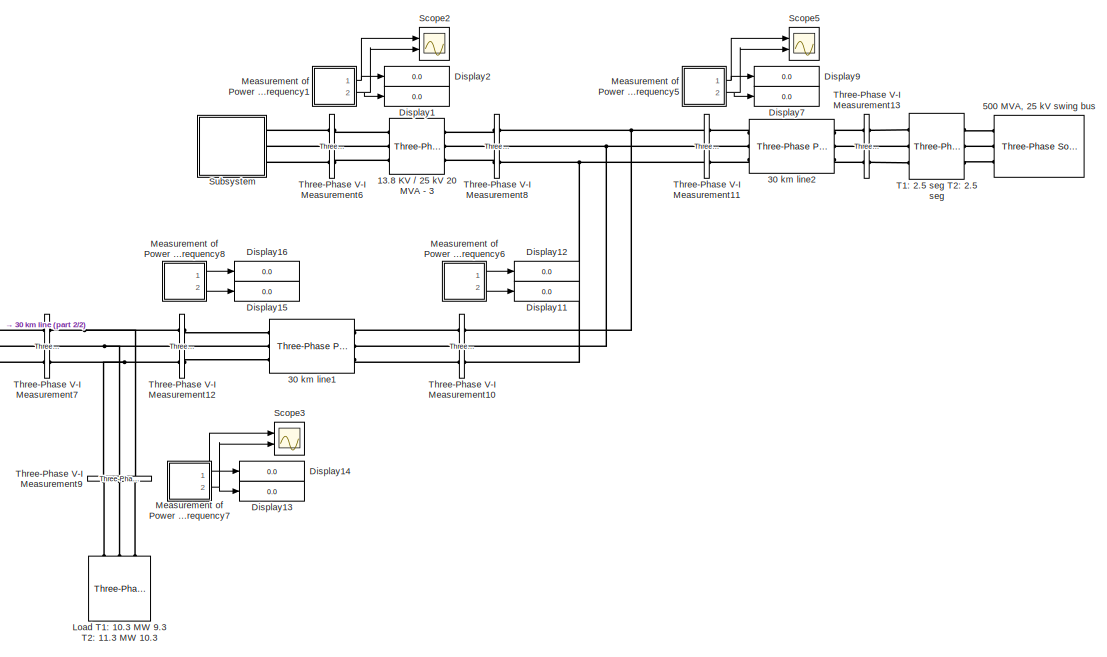
[diagram: root canvas - part 1/2, right side, full height]
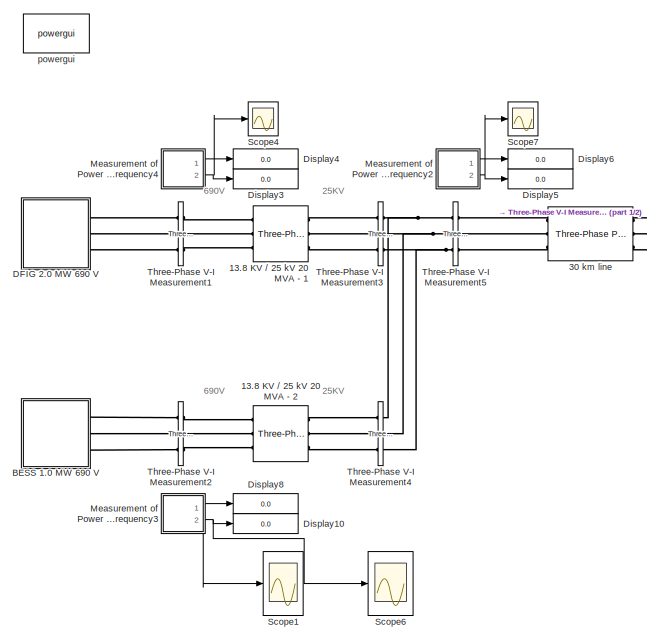
[diagram: root canvas - part 2/2, left side, full height]
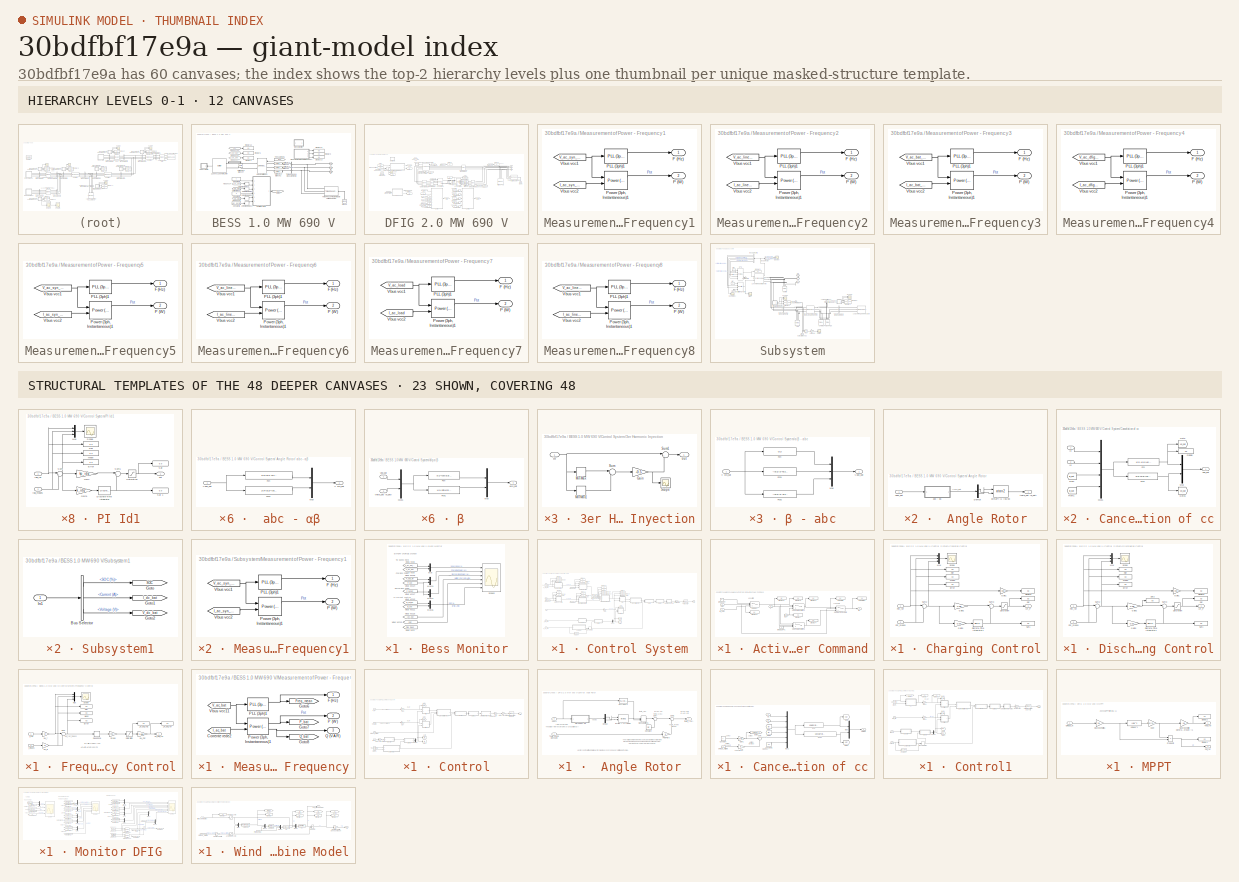
[diagram: thumbnail index - top-2 hierarchy levels (12 canvases) + 23 structural-template representatives of the remaining 48 canvases]
MODEL slx_30bdfbf17e9a
KIND model
CONFIG AbsTol = auto
CONFIG EnableMultiTasking = on
CONFIG FixedStep = auto
CONFIG MaxStep = auto
CONFIG MinStep = auto
CONFIG RelTol = 1e-3
CONFIG SampleTimeConstraint = Unconstrained
CONFIG Solver = ode45
CONFIG SolverName = ode45
CONFIG StartTime = 0.0
CONFIG StopTime = 4
BLOCK [Reference] 13.8 KV // 25 kV 20 MVA - 1  REF=powerlib/Elements/Three-Phase
Transformer
(Two Windings)
  AttributesFormatString = \n
  Ports = [0, 0, 0, 0, 0, 3, 3]
  SourceBlock = powerlib/Elements/Three-Phase\nTransformer\n(Two Windings)
  SourceProductBaseCode = PS
  SourceProductName = Simscape Power Systems
  SourceType = Three-Phase Transformer (Two Windings)
BLOCK [Reference] 13.8 KV // 25 kV 20 MVA - 2  REF=powerlib/Elements/Three-Phase
Transformer
(Two Windings)
  AttributesFormatString = \n
  Ports = [0, 0, 0, 0, 0, 3, 3]
  SourceBlock = powerlib/Elements/Three-Phase\nTransformer\n(Two Windings)
  SourceProductBaseCode = PS
  SourceProductName = Simscape Power Systems
  SourceType = Three-Phase Transformer (Two Windings)
BLOCK [Reference] 13.8 KV // 25 kV 20 MVA - 3  REF=powerlib/Elements/Three-Phase
Transformer
(Two Windings)
  AttributesFormatString = \n
  Ports = [0, 0, 0, 0, 0, 3, 3]
  SourceBlock = powerlib/Elements/Three-Phase\nTransformer\n(Two Windings)
  SourceProductBaseCode = PS
  SourceProductName = Simscape Power Systems
  SourceType = Three-Phase Transformer (Two Windings)
BLOCK [Reference] 30 km line  REF=powerlib/Elements/Three-Phase
PI Section Line
  AttributesFormatString = \n
  Ports = [0, 0, 0, 0, 0, 3, 3]
  SourceBlock = powerlib/Elements/Three-Phase\nPI Section Line
  SourceProductBaseCode = PS
  SourceProductName = Simscape Power Systems
  SourceType = Three-Phase PI Section Line
BLOCK [Reference] 30 km line1  REF=powerlib/Elements/Three-Phase
PI Section Line
  AttributesFormatString = \n
  Ports = [0, 0, 0, 0, 0, 3, 3]
  SourceBlock = powerlib/Elements/Three-Phase\nPI Section Line
  SourceProductBaseCode = PS
  SourceProductName = Simscape Power Systems
  SourceType = Three-Phase PI Section Line
BLOCK [Reference] 30 km line2  REF=powerlib/Elements/Three-Phase
PI Section Line
  AttributesFormatString = \n
  Ports = [0, 0, 0, 0, 0, 3, 3]
  SourceBlock = powerlib/Elements/Three-Phase\nPI Section Line
  SourceProductBaseCode = PS
  SourceProductName = Simscape Power Systems
  SourceType = Three-Phase PI Section Line
BLOCK [Reference] 500 MVA, 25 kV swing bus  REF=powerlib/Electrical
Sources/Three-Phase Source
  Ports = [0, 0, 0, 0, 0, 0, 3]
  SourceBlock = powerlib/Electrical\nSources/Three-Phase Source
  SourceProductBaseCode = PS
  SourceProductName = Simscape Power Systems
  SourceType = Three-Phase Source
BLOCK [SubSystem] BESS 1.0 MW 690 V
  Ports = [0, 0, 0, 0, 0, 0, 3]
  RequestExecContextInheritance = off
  Variant = off
BLOCK [Reference] BESS 1.0 MW 690 V/1200 Vcc 250KWh 1 MW   REF=electricdrivelib/Extra Sources/Battery
  Ports = [0, 1, 0, 0, 0, 2]
  SourceBlock = electricdrivelib/Extra Sources/Battery
  SourceProductBaseCode = PS
  SourceProductName = Simscape Power Systems
  SourceType = Battery
BLOCK [PMIOPort] BESS 1.0 MW 690 V/A
  Port = 1
  Side = Right
BLOCK [PMIOPort] BESS 1.0 MW 690 V/B
  Port = 2
  Side = Right
BLOCK [SubSystem] BESS 1.0 MW 690 V/Bess Monitor
  Ports = []
  RequestExecContextInheritance = off
  Variant = off
BLOCK [Mux] BESS 1.0 MW 690 V/Bess Monitor/Mux
  DisplayOption = bar
  Inputs = 2
  Ports = [2, 1]
BLOCK [Mux] BESS 1.0 MW 690 V/Bess Monitor/Mux13
  DisplayOption = bar
  Inputs = 2
  Ports = [2, 1]
BLOCK [Mux] BESS 1.0 MW 690 V/Bess Monitor/Mux14
  DisplayOption = bar
  Inputs = 2
  Ports = [2, 1]
BLOCK [Mux] BESS 1.0 MW 690 V/Bess Monitor/Mux15
  DisplayOption = bar
  Inputs = 2
  Ports = [2, 1]
BLOCK [Scope] BESS 1.0 MW 690 V/Bess Monitor/Scope3
  NumInputPorts = 6
  Ports = [6]
  ScopeSpecificationString = Simulink.scopes.TimeScopeBlockCfg('CurrentConfiguration', extmgr.ConfigurationSet(extmgr.Configuration('Core','General UI',true,'FigureColor',[0.156862745098039 0.156862745098039 0.156862745098039]),extmgr.Configuration('Core','Source UI',true),extmgr.Configuration('Sources','WiredSimulink',true,'DataLoggingVariableName','ScopeData1','DataLoggingSaveFormat','StructureWithTime','DataLoggingDecimati...<+10307ch>
BLOCK [From] BESS 1.0 MW 690 V/Bess Monitor/Vbus vcc11
  GotoTag = id_bat
  TagVisibility = global
BLOCK [From] BESS 1.0 MW 690 V/Bess Monitor/Vbus vcc12
  GotoTag = id_bat_ref
  TagVisibility = global
BLOCK [From] BESS 1.0 MW 690 V/Bess Monitor/Vbus vcc13
  GotoTag = SOC
  TagVisibility = global
BLOCK [From] BESS 1.0 MW 690 V/Bess Monitor/Vbus vcc14
  GotoTag = P_bat
  TagVisibility = global
BLOCK [From] BESS 1.0 MW 690 V/Bess Monitor/Vbus vcc15
  GotoTag = I_dc_bat
  TagVisibility = global
BLOCK [From] BESS 1.0 MW 690 V/Bess Monitor/Vbus vcc16
  GotoTag = P_SOC_ref
  TagVisibility = global
BLOCK [From] BESS 1.0 MW 690 V/Bess Monitor/Vbus vcc17
  GotoTag = P_bat_ref
  TagVisibility = global
BLOCK [From] BESS 1.0 MW 690 V/Bess Monitor/Vbus vcc2
  GotoTag = Freq_mean
  TagVisibility = global
BLOCK [From] BESS 1.0 MW 690 V/Bess Monitor/Vbus vcc6
  GotoTag = V_dc_bat
  TagVisibility = global
BLOCK [From] BESS 1.0 MW 690 V/Bess Monitor/Vbus vcc8
  GotoTag = V_dc_bat_ref
  TagVisibility = global
BLOCK [PMIOPort] BESS 1.0 MW 690 V/C
  Port = 3
  Side = Right
BLOCK [Constant] BESS 1.0 MW 690 V/Constant1
  Value = 0
BLOCK [Constant] BESS 1.0 MW 690 V/Constant4
  Value = f
BLOCK [Constant] BESS 1.0 MW 690 V/Constant6
  Value = Vdc_bat_ref
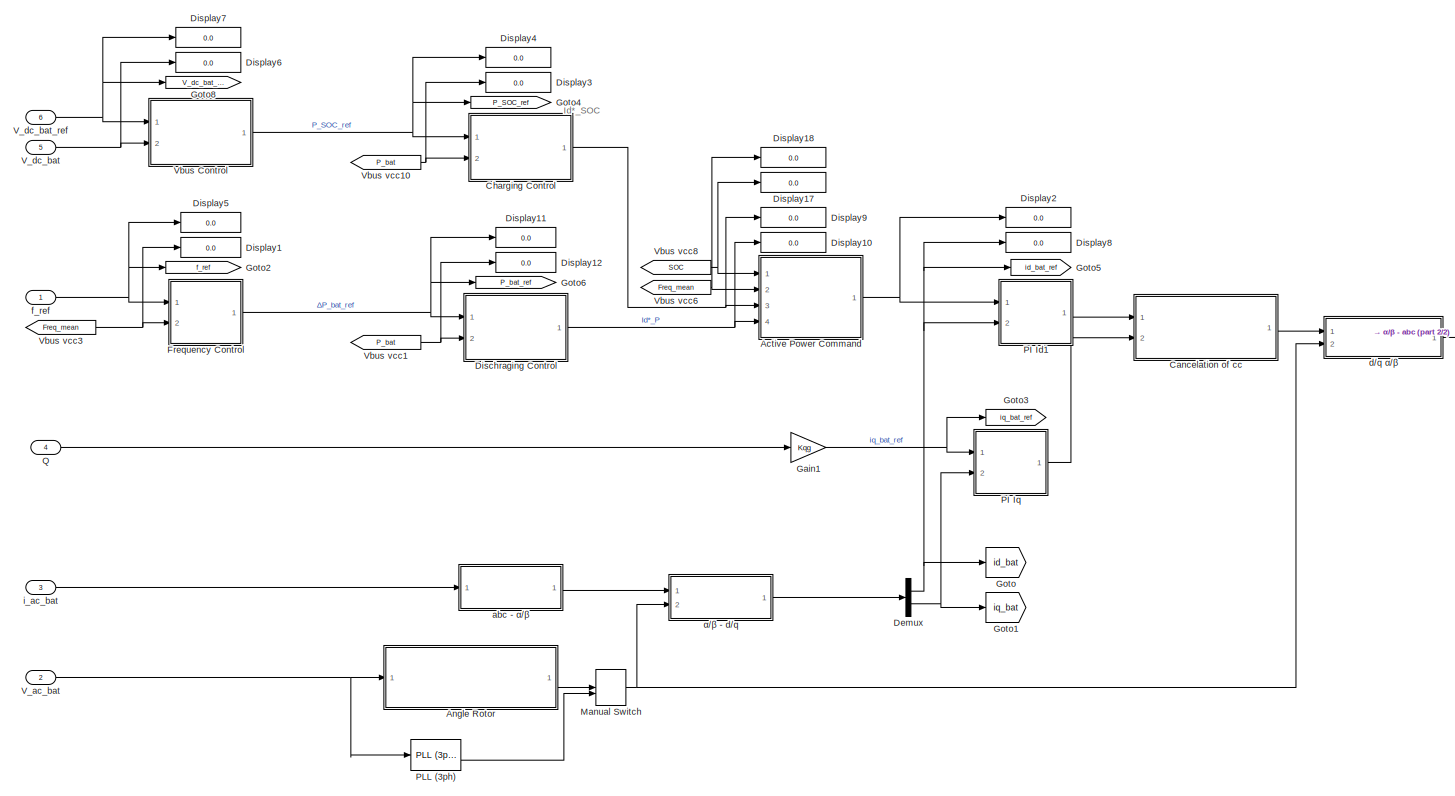
[diagram: BESS 1.0 MW 690 V/Control System - part 1/2, most of the canvas]
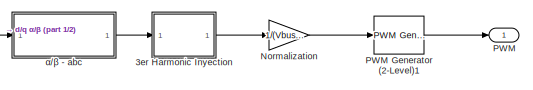
[diagram: BESS 1.0 MW 690 V/Control System - part 2/2, middle right region]
BLOCK [SubSystem] BESS 1.0 MW 690 V/Control System
  Ports = [6, 1]
  RequestExecContextInheritance = off
  Variant = off
BLOCK [SubSystem] BESS 1.0 MW 690 V/Control System/ Angle Rotor
  Ports = [1, 1]
  RequestExecContextInheritance = off
  Variant = off
BLOCK [SubSystem] BESS 1.0 MW 690 V/Control System/ Angle Rotor/ abc - αβ 
  Ports = [1, 1]
  RequestExecContextInheritance = off
  Variant = off
BLOCK [Fcn] BESS 1.0 MW 690 V/Control System/ Angle Rotor/ abc - αβ /Fcn
  Expr = 2/3*(u[1]-u[2]/2-u[3]/2)
BLOCK [Fcn] BESS 1.0 MW 690 V/Control System/ Angle Rotor/ abc - αβ /Fcn1
  Expr = 2/3*(u[2]*(sqrt(3)/2)-u[3]*(sqrt(3)/2))
BLOCK [Mux] BESS 1.0 MW 690 V/Control System/ Angle Rotor/ abc - αβ /Mux
  DisplayOption = bar
  Inputs = 2
  Ports = [2, 1]
BLOCK [Outport] BESS 1.0 MW 690 V/Control System/ Angle Rotor/ abc - αβ /V α//β_bat 
  IconDisplay = Port number
BLOCK [Inport] BESS 1.0 MW 690 V/Control System/ Angle Rotor/ abc - αβ /Vabc_bat
  IconDisplay = Port number
BLOCK [Demux] BESS 1.0 MW 690 V/Control System/ Angle Rotor/Demux
  DisplayOption = bar
  Outputs = 2
  Ports = [1, 2]
BLOCK [Inport] BESS 1.0 MW 690 V/Control System/ Angle Rotor/Vabc_bat
  IconDisplay = Port number
BLOCK [Outport] BESS 1.0 MW 690 V/Control System/ Angle Rotor/theta_bat (θ_bat)
  IconDisplay = Port number
BLOCK [Trigonometry] BESS 1.0 MW 690 V/Control System/ Angle Rotor/θv=tan^(-1) (Vβ//Vα)
  Operator = atan2
  Ports = [2, 1]
BLOCK [SubSystem] BESS 1.0 MW 690 V/Control System/3er Harmonic Inyection
  Ports = [1, 1]
  RequestExecContextInheritance = off
  Variant = off
BLOCK [Gain] BESS 1.0 MW 690 V/Control System/3er Harmonic Inyection/Gain
  Gain = -0.5
  OutDataTypeStr = Inherit: Inherit via internal rule
  ParamDataTypeStr = Inherit: Inherit via internal rule
  SaturateOnIntegerOverflow = off
BLOCK [MinMax] BESS 1.0 MW 690 V/Control System/3er Harmonic Inyection/MinMax
  InputSameDT = off
  Ports = [1, 1]
  SaturateOnIntegerOverflow = off
BLOCK [MinMax] BESS 1.0 MW 690 V/Control System/3er Harmonic Inyection/MinMax1
  Function = max
  InputSameDT = off
  Ports = [1, 1]
  SaturateOnIntegerOverflow = off
BLOCK [Scope] BESS 1.0 MW 690 V/Control System/3er Harmonic Inyection/Scope
  NumInputPorts = 1
  Ports = [1]
  ScopeSpecificationString = C++SS(StrPVP('Open','off'),StrPVP('TimeRange','auto'),StrPVP('TickLabels','OneTimeTick'),StrPVP('ShowLegends','off'),StrPVP('LimitDataPoints','off'),StrPVP('MaxDataPoints','5000'),StrPVP('SaveToWorkspace','off'),StrPVP('SaveName','ScopeData2'),StrPVP('YMin','-208.5095'),StrPVP('YMax','235.47421'),StrPVP('BlockParamSampleInput','off'),StrPVP('BlockParamSampleTime','-1'),StrPVP('ZoomMode','on'),StrP...<+581ch>  <repeated x3 — deduplicated; at blocks: Scope>
BLOCK [Sum] BESS 1.0 MW 690 V/Control System/3er Harmonic Inyection/Sum
  IconShape = round
  InputSameDT = off
  Inputs = |++
  OutDataTypeStr = Inherit: Inherit via internal rule
  Ports = [2, 1]
  SaturateOnIntegerOverflow = off
BLOCK [Sum] BESS 1.0 MW 690 V/Control System/3er Harmonic Inyection/Sum1
  IconShape = round
  InputSameDT = off
  Inputs = |++
  OutDataTypeStr = Inherit: Inherit via internal rule
  Ports = [2, 1]
  SaturateOnIntegerOverflow = off
BLOCK [Inport] BESS 1.0 MW 690 V/Control System/3er Harmonic Inyection/in
  IconDisplay = Port number
BLOCK [Outport] BESS 1.0 MW 690 V/Control System/3er Harmonic Inyection/out
  IconDisplay = Port number
BLOCK [SubSystem] BESS 1.0 MW 690 V/Control System/Active Power Command
  Ports = [4, 1]
  RequestExecContextInheritance = off
  Variant = off
BLOCK [Display] BESS 1.0 MW 690 V/Control System/Active Power Command/Display2
  Decimation = 1
  Ports = [1]
BLOCK [Display] BESS 1.0 MW 690 V/Control System/Active Power Command/Display4
  Decimation = 1
  Ports = [1]
BLOCK [Display] BESS 1.0 MW 690 V/Control System/Active Power Command/Display5
  Decimation = 1
  Ports = [1]
BLOCK [Display] BESS 1.0 MW 690 V/Control System/Active Power Command/Display6
  Decimation = 1
  Ports = [1]
BLOCK [Display] BESS 1.0 MW 690 V/Control System/Active Power Command/Display7
  Decimation = 1
  Ports = [1]
BLOCK [Display] BESS 1.0 MW 690 V/Control System/Active Power Command/Display9
  Decimation = 1
  Ports = [1]
BLOCK [Outport] BESS 1.0 MW 690 V/Control System/Active Power Command/Id*
  IconDisplay = Port number
BLOCK [Constant] BESS 1.0 MW 690 V/Control System/Active Power Command/Id*SOC OFF
  Value = 0
BLOCK [Constant] BESS 1.0 MW 690 V/Control System/Active Power Command/Id*SOC OFF1
  Value = 0
BLOCK [Inport] BESS 1.0 MW 690 V/Control System/Active Power Command/Id*_P
  IconDisplay = Port number
  Port = 4
BLOCK [Inport] BESS 1.0 MW 690 V/Control System/Active Power Command/Id*_SOC
  IconDisplay = Port number
  Port = 3
BLOCK [Inport] BESS 1.0 MW 690 V/Control System/Active Power Command/SOC
  IconDisplay = Port number
BLOCK [Switch] BESS 1.0 MW 690 V/Control System/Active Power Command/SOC - OFF
  Criteria = u2 > Threshold
  InputSameDT = off
  SaturateOnIntegerOverflow = off
  Threshold = 70
BLOCK [Switch] BESS 1.0 MW 690 V/Control System/Active Power Command/SOC - OUT OF RANGE
  Criteria = u2 > Threshold
  InputSameDT = off
  SaturateOnIntegerOverflow = off
  Threshold = 20
BLOCK [Display] BESS 1.0 MW 690 V/Control System/Active Power Command/SOC - State
  Decimation = 1
  Ports = [1]
BLOCK [Display] BESS 1.0 MW 690 V/Control System/Active Power Command/SOC - State1
  Decimation = 1
  Ports = [1]
BLOCK [Switch] BESS 1.0 MW 690 V/Control System/Active Power Command/SOC // POWER Switch1
  Criteria = u2 > Threshold
  InputSameDT = off
  SaturateOnIntegerOverflow = off
  Threshold = f-0.01
BLOCK [Switch] BESS 1.0 MW 690 V/Control System/Active Power Command/SOC // POWER Switch2
  Criteria = u2 > Threshold
  InputSameDT = off
  SaturateOnIntegerOverflow = off
  Threshold = f-0.01
BLOCK [Inport] BESS 1.0 MW 690 V/Control System/Active Power Command/f
  IconDisplay = Port number
  Port = 2
BLOCK [SubSystem] BESS 1.0 MW 690 V/Control System/Cancelation of cc
  Ports = [2, 1]
  RequestExecContextInheritance = off
  Variant = off
BLOCK [Outport] BESS 1.0 MW 690 V/Control System/Cancelation of cc/ Vdq_bat
  IconDisplay = Port number
BLOCK [Display] BESS 1.0 MW 690 V/Control System/Cancelation of cc/Display
  Decimation = 1
  Ports = [1]
BLOCK [Fcn] BESS 1.0 MW 690 V/Control System/Cancelation of cc/Fcn
  Expr = u[1]-u[4]*Lg*(2*pi*f)
BLOCK [Fcn] BESS 1.0 MW 690 V/Control System/Cancelation of cc/Fcn1
  Expr = u[2]+u[3]*Lg*(2*pi*f)
BLOCK [From] BESS 1.0 MW 690 V/Control System/Cancelation of cc/From
  GotoTag = id_bat
  IconDisplay = Signal name
  TagVisibility = global
BLOCK [From] BESS 1.0 MW 690 V/Control System/Cancelation of cc/From1
  GotoTag = iq_bat
  IconDisplay = Signal name
  TagVisibility = global
BLOCK [Goto] BESS 1.0 MW 690 V/Control System/Cancelation of cc/Goto
  GotoTag = vd_bat
  TagVisibility = global
BLOCK [Goto] BESS 1.0 MW 690 V/Control System/Cancelation of cc/Goto1
  GotoTag = vq_bat
  TagVisibility = global
BLOCK [Inport] BESS 1.0 MW 690 V/Control System/Cancelation of cc/Id
  IconDisplay = Port number
BLOCK [Inport] BESS 1.0 MW 690 V/Control System/Cancelation of cc/Iq
  IconDisplay = Port number
  Port = 2
BLOCK [Mux] BESS 1.0 MW 690 V/Control System/Cancelation of cc/Mux
  DisplayOption = bar
  Inputs = 2
  Ports = [2, 1]
BLOCK [Mux] BESS 1.0 MW 690 V/Control System/Cancelation of cc/Mux1
  DisplayOption = bar
  Ports = [4, 1]
BLOCK [SubSystem] BESS 1.0 MW 690 V/Control System/Charging Control
  Ports = [2, 1]
  RequestExecContextInheritance = off
  Variant = off
BLOCK [DiscreteIntegrator] BESS 1.0 MW 690 V/Control System/Charging Control/Discrete-Time Integrator1
  ICPrevOutput = DiscIntNeverNeededParam
  ICPrevScaledInput = DiscIntNeverNeededParam
  LimitOutput = on
  LowerSaturationLimit = -1200
  Ports = [1, 1]
  SampleTime = 1/fsw
  UpperSaturationLimit = 1200
  gainval = 1
BLOCK [Display] BESS 1.0 MW 690 V/Control System/Charging Control/Display6
  Decimation = 1
  Ports = [1]
BLOCK [Display] BESS 1.0 MW 690 V/Control System/Charging Control/Error
  Decimation = 1
  Ports = [1]
BLOCK [Gain] BESS 1.0 MW 690 V/Control System/Charging Control/Gain1
  Gain = Kpg
  OutDataTypeStr = Inherit: Inherit via internal rule
  ParamDataTypeStr = Inherit: Inherit via internal rule
  SaturateOnIntegerOverflow = off
BLOCK [Gain] BESS 1.0 MW 690 V/Control System/Charging Control/Gain2
  Gain = Kpg
  OutDataTypeStr = Inherit: Inherit via internal rule
  ParamDataTypeStr = Inherit: Inherit via internal rule
  SaturateOnIntegerOverflow = off
BLOCK [Gain] BESS 1.0 MW 690 V/Control System/Charging Control/Gain3
  Gain = 0.03
  OutDataTypeStr = Inherit: Inherit via internal rule
  ParamDataTypeStr = Inherit: Inherit via internal rule
  SaturateOnIntegerOverflow = off
BLOCK [Outport] BESS 1.0 MW 690 V/Control System/Charging Control/Id*_P
  IconDisplay = Port number
BLOCK [Display] BESS 1.0 MW 690 V/Control System/Charging Control/Mean
  Decimation = 1
  Ports = [1]
BLOCK [Mux] BESS 1.0 MW 690 V/Control System/Charging Control/Mux
  DisplayOption = bar
  Inputs = 3
  Ports = [3, 1]
BLOCK [Inport] BESS 1.0 MW 690 V/Control System/Charging Control/Pot_means 
  IconDisplay = Port number
  Port = 2
BLOCK [Inport] BESS 1.0 MW 690 V/Control System/Charging Control/Pot_ref 
  IconDisplay = Port number
BLOCK [Display] BESS 1.0 MW 690 V/Control System/Charging Control/Ref
  Decimation = 1
  Ports = [1]
BLOCK [Display] BESS 1.0 MW 690 V/Control System/Charging Control/Sat
  Decimation = 1
  Ports = [1]
BLOCK [Display] BESS 1.0 MW 690 V/Control System/Charging Control/Sat1
  Decimation = 1
  Ports = [1]
BLOCK [Saturate] BESS 1.0 MW 690 V/Control System/Charging Control/Saturation
  InputPortMap = u0
  LowerLimit = -1200
  Ports = [1, 1]
  UpperLimit = 1200
BLOCK [Scope] BESS 1.0 MW 690 V/Control System/Charging Control/Scope
  NumInputPorts = 1
  Ports = [1]
  ScopeSpecificationString = C++SS(StrPVP('Open','off'),StrPVP('TimeRange','auto'),StrPVP('TickLabels','OneTimeTick'),StrPVP('ShowLegends','off'),StrPVP('LimitDataPoints','off'),StrPVP('MaxDataPoints','5000'),StrPVP('SaveToWorkspace','off'),StrPVP('SaveName','ScopeData5'),StrPVP('YMin','-3530264.01337'),StrPVP('YMax','4530264.01337'),StrPVP('BlockParamSampleInput','off'),StrPVP('BlockParamSampleTime','-1'),StrPVP('ZoomMode','...<+591ch>
BLOCK [Sum] BESS 1.0 MW 690 V/Control System/Charging Control/Sum2
  IconShape = round
  InputSameDT = off
  Inputs = |+-
  OutDataTypeStr = Inherit: Inherit via internal rule
  Ports = [2, 1]
  SaturateOnIntegerOverflow = off
BLOCK [Sum] BESS 1.0 MW 690 V/Control System/Charging Control/Sum3
  IconShape = round
  InputSameDT = off
  Inputs = |++
  OutDataTypeStr = Inherit: Inherit via internal rule
  Ports = [2, 1]
  SaturateOnIntegerOverflow = off
BLOCK [Demux] BESS 1.0 MW 690 V/Control System/Demux
  DisplayOption = bar
  Outputs = 2
  Ports = [1, 2]
BLOCK [SubSystem] BESS 1.0 MW 690 V/Control System/Dischraging Control
  Ports = [2, 1]
  RequestExecContextInheritance = off
  Variant = off
BLOCK [DiscreteIntegrator] BESS 1.0 MW 690 V/Control System/Dischraging Control/Discrete-Time Integrator1
  ICPrevOutput = DiscIntNeverNeededParam
  ICPrevScaledInput = DiscIntNeverNeededParam
  LimitOutput = on
  LowerSaturationLimit = -1850
  Ports = [1, 1]
  SampleTime = 1/fsw
  UpperSaturationLimit = 1850
  gainval = 1
BLOCK [Display] BESS 1.0 MW 690 V/Control System/Dischraging Control/Display6
  Decimation = 1
  Ports = [1]
BLOCK [Display] BESS 1.0 MW 690 V/Control System/Dischraging Control/Error
  Decimation = 1
  Ports = [1]
BLOCK [Gain] BESS 1.0 MW 690 V/Control System/Dischraging Control/Gain1
  Gain = Kpg
  OutDataTypeStr = Inherit: Inherit via internal rule
  ParamDataTypeStr = Inherit: Inherit via internal rule
  SaturateOnIntegerOverflow = off
BLOCK [Gain] BESS 1.0 MW 690 V/Control System/Dischraging Control/Gain2
  Gain = Kpg
  OutDataTypeStr = Inherit: Inherit via internal rule
  ParamDataTypeStr = Inherit: Inherit via internal rule
  SaturateOnIntegerOverflow = off
BLOCK [Gain] BESS 1.0 MW 690 V/Control System/Dischraging Control/Gain3
  Gain = 0.02
  OutDataTypeStr = Inherit: Inherit via internal rule
  ParamDataTypeStr = Inherit: Inherit via internal rule
  SaturateOnIntegerOverflow = off
BLOCK [Outport] BESS 1.0 MW 690 V/Control System/Dischraging Control/Id*_P
  IconDisplay = Port number
BLOCK [Display] BESS 1.0 MW 690 V/Control System/Dischraging Control/Mean
  Decimation = 1
  Ports = [1]
BLOCK [Mux] BESS 1.0 MW 690 V/Control System/Dischraging Control/Mux
  DisplayOption = bar
  Inputs = 3
  Ports = [3, 1]
BLOCK [Inport] BESS 1.0 MW 690 V/Control System/Dischraging Control/Pot_means 
  IconDisplay = Port number
  Port = 2
BLOCK [Inport] BESS 1.0 MW 690 V/Control System/Dischraging Control/Pot_ref 
  IconDisplay = Port number
BLOCK [Display] BESS 1.0 MW 690 V/Control System/Dischraging Control/Ref
  Decimation = 1
  Ports = [1]
BLOCK [Display] BESS 1.0 MW 690 V/Control System/Dischraging Control/Sat
  Decimation = 1
  Ports = [1]
BLOCK [Display] BESS 1.0 MW 690 V/Control System/Dischraging Control/Sat1
  Decimation = 1
  Ports = [1]
BLOCK [Display] BESS 1.0 MW 690 V/Control System/Dischraging Control/Sat2
  Decimation = 1
  Ports = [1]
BLOCK [Saturate] BESS 1.0 MW 690 V/Control System/Dischraging Control/Saturation
  InputPortMap = u0
  LowerLimit = -1850
  Ports = [1, 1]
  UpperLimit = 1850
BLOCK [Scope] BESS 1.0 MW 690 V/Control System/Dischraging Control/Scope
  NumInputPorts = 1
  Ports = [1]
  ScopeSpecificationString = Simulink.scopes.TimeScopeBlockCfg('CurrentConfiguration', extmgr.ConfigurationSet(extmgr.Configuration('Core','General UI',true,'FigureColor',[0.156862745098039 0.156862745098039 0.156862745098039]),extmgr.Configuration('Core','Source UI',true),extmgr.Configuration('Sources','WiredSimulink',true,'DataLoggingVariableName','ScopeData5','DataLoggingSaveFormat','StructureWithTime','DataLoggingDecimati...<+2845ch>
BLOCK [Sum] BESS 1.0 MW 690 V/Control System/Dischraging Control/Sum2
  IconShape = round
  InputSameDT = off
  Inputs = |+-
  OutDataTypeStr = Inherit: Inherit via internal rule
  Ports = [2, 1]
  SaturateOnIntegerOverflow = off
BLOCK [Sum] BESS 1.0 MW 690 V/Control System/Dischraging Control/Sum3
  IconShape = round
  InputSameDT = off
  Inputs = |++
  OutDataTypeStr = Inherit: Inherit via internal rule
  Ports = [2, 1]
  SaturateOnIntegerOverflow = off
BLOCK [Display] BESS 1.0 MW 690 V/Control System/Display1
  Decimation = 1
  Ports = [1]
BLOCK [Display] BESS 1.0 MW 690 V/Control System/Display10
  Decimation = 1
  Ports = [1]
BLOCK [Display] BESS 1.0 MW 690 V/Control System/Display11
  Decimation = 1
  Ports = [1]
BLOCK [Display] BESS 1.0 MW 690 V/Control System/Display12
  Decimation = 1
  Ports = [1]
BLOCK [Display] BESS 1.0 MW 690 V/Control System/Display17
  Decimation = 1
  Ports = [1]
BLOCK [Display] BESS 1.0 MW 690 V/Control System/Display18
  Decimation = 1
  Ports = [1]
BLOCK [Display] BESS 1.0 MW 690 V/Control System/Display2
  Decimation = 1
  Ports = [1]
BLOCK [Display] BESS 1.0 MW 690 V/Control System/Display3
  Decimation = 1
  Ports = [1]
BLOCK [Display] BESS 1.0 MW 690 V/Control System/Display4
  Decimation = 1
  Ports = [1]
BLOCK [Display] BESS 1.0 MW 690 V/Control System/Display5
  Decimation = 1
  Ports = [1]
BLOCK [Display] BESS 1.0 MW 690 V/Control System/Display6
  Decimation = 1
  Ports = [1]
BLOCK [Display] BESS 1.0 MW 690 V/Control System/Display7
  Decimation = 1
  Ports = [1]
BLOCK [Display] BESS 1.0 MW 690 V/Control System/Display8
  Decimation = 1
  Ports = [1]
BLOCK [Display] BESS 1.0 MW 690 V/Control System/Display9
  Decimation = 1
  Ports = [1]
BLOCK [SubSystem] BESS 1.0 MW 690 V/Control System/Frequency Control
  Ports = [2, 1]
  RequestExecContextInheritance = off
  Variant = off
BLOCK [DeadZone] BESS 1.0 MW 690 V/Control System/Frequency Control/Dead Zone
  LowerValue = -0.12*1/f
  UpperValue = 0.02*1/f
BLOCK [Gain] BESS 1.0 MW 690 V/Control System/Frequency Control/Droop
  Gain = 1/(2.5)*100
  OutDataTypeStr = Inherit: Inherit via internal rule
  ParamDataTypeStr = Inherit: Inherit via internal rule
  SaturateOnIntegerOverflow = off
BLOCK [Display] BESS 1.0 MW 690 V/Control System/Frequency Control/Error
  Decimation = 1
  Ports = [1]
BLOCK [Display] BESS 1.0 MW 690 V/Control System/Frequency Control/Mean
  Decimation = 1
  Ports = [1]
BLOCK [Mux] BESS 1.0 MW 690 V/Control System/Frequency Control/Mux
  DisplayOption = bar
  Inputs = 3
  Ports = [3, 1]
BLOCK [Display] BESS 1.0 MW 690 V/Control System/Frequency Control/Ref
  Decimation = 1
  Ports = [1]
BLOCK [Saturate] BESS 1.0 MW 690 V/Control System/Frequency Control/Saturation
  InputPortMap = u0
  LowerLimit = 0
  Ports = [1, 1]
  UpperLimit = 1
BLOCK [Scope] BESS 1.0 MW 690 V/Control System/Frequency Control/Scope
  NumInputPorts = 1
  Ports = [1]
  ScopeSpecificationString = C++SS(StrPVP('Open','off'),StrPVP('TimeRange','auto'),StrPVP('TickLabels','OneTimeTick'),StrPVP('ShowLegends','off'),StrPVP('LimitDataPoints','off'),StrPVP('MaxDataPoints','5000'),StrPVP('SaveToWorkspace','off'),StrPVP('SaveName','ScopeData2'),StrPVP('YMin','-0.125'),StrPVP('YMax','1.125'),StrPVP('BlockParamSampleInput','off'),StrPVP('BlockParamSampleTime','-1'),StrPVP('ZoomMode','on'),StrPVP('Gri...<+576ch>
BLOCK [Sum] BESS 1.0 MW 690 V/Control System/Frequency Control/Sum
  IconShape = round
  InputSameDT = off
  Inputs = |+-
  OutDataTypeStr = Inherit: Inherit via internal rule
  Ports = [2, 1]
  SaturateOnIntegerOverflow = off
BLOCK [Inport] BESS 1.0 MW 690 V/Control System/Frequency Control/f_means
  IconDisplay = Port number
  Port = 2
BLOCK [Inport] BESS 1.0 MW 690 V/Control System/Frequency Control/f_ref
  IconDisplay = Port number
BLOCK [Gain] BESS 1.0 MW 690 V/Control System/Frequency Control/pu_Pot 
  Gain = 2.6e6
  OutDataTypeStr = Inherit: Inherit via internal rule
  ParamDataTypeStr = Inherit: Inherit via internal rule
  SaturateOnIntegerOverflow = off
BLOCK [Gain] BESS 1.0 MW 690 V/Control System/Frequency Control/pu_f
  Gain = 1/f
  OutDataTypeStr = Inherit: Inherit via internal rule
  ParamDataTypeStr = Inherit: Inherit via internal rule
  SaturateOnIntegerOverflow = off
BLOCK [Gain] BESS 1.0 MW 690 V/Control System/Frequency Control/pu_f2
  Gain = 1/f
  OutDataTypeStr = Inherit: Inherit via internal rule
  ParamDataTypeStr = Inherit: Inherit via internal rule
  SaturateOnIntegerOverflow = off
BLOCK [Display] BESS 1.0 MW 690 V/Control System/Frequency Control/ΔP_bat_ref
  Decimation = 1
  Ports = [1]
BLOCK [Outport] BESS 1.0 MW 690 V/Control System/Frequency Control/ΔP_bat_ref 
  IconDisplay = Port number
BLOCK [Display] BESS 1.0 MW 690 V/Control System/Frequency Control/ΔP_bat_ref1
  Decimation = 1
  Ports = [1]
BLOCK [Gain] BESS 1.0 MW 690 V/Control System/Gain1
  Gain = Kqg
  OutDataTypeStr = Inherit: Inherit via internal rule
  ParamDataTypeStr = Inherit: Inherit via internal rule
  SaturateOnIntegerOverflow = off
BLOCK [Goto] BESS 1.0 MW 690 V/Control System/Goto
  GotoTag = id_bat
  TagVisibility = global
BLOCK [Goto] BESS 1.0 MW 690 V/Control System/Goto1
  GotoTag = iq_bat
  TagVisibility = global
BLOCK [Goto] BESS 1.0 MW 690 V/Control System/Goto2
  GotoTag = f_ref
  TagVisibility = global
BLOCK [Goto] BESS 1.0 MW 690 V/Control System/Goto3
  GotoTag = iq_bat_ref
  TagVisibility = global
BLOCK [Goto] BESS 1.0 MW 690 V/Control System/Goto4
  GotoTag = P_SOC_ref
  TagVisibility = global
BLOCK [Goto] BESS 1.0 MW 690 V/Control System/Goto5
  GotoTag = id_bat_ref
  TagVisibility = global
BLOCK [Goto] BESS 1.0 MW 690 V/Control System/Goto6
  GotoTag = P_bat_ref
  TagVisibility = global
BLOCK [Goto] BESS 1.0 MW 690 V/Control System/Goto8
  GotoTag = V_dc_bat_ref
  TagVisibility = global
BLOCK [ManualSwitch] BESS 1.0 MW 690 V/Control System/Manual Switch
BLOCK [Gain] BESS 1.0 MW 690 V/Control System/Normalization
  Gain = 1/(Vbus_ref/2)
  OutDataTypeStr = Inherit: Inherit via internal rule
  ParamDataTypeStr = Inherit: Inherit via internal rule
  SaturateOnIntegerOverflow = off
BLOCK [SubSystem] BESS 1.0 MW 690 V/Control System/PI Id1
  Ports = [2, 1]
  RequestExecContextInheritance = off
  Variant = off
BLOCK [DiscreteIntegrator] BESS 1.0 MW 690 V/Control System/PI Id1/Discrete-Time Integrator
  ICPrevOutput = DiscIntNeverNeededParam
  ICPrevScaledInput = DiscIntNeverNeededParam
  LimitOutput = on
  LowerSaturationLimit = -Vbus_ref/sqrt(3)*5
  Ports = [1, 1]
  SampleTime = 1/fsw
  UpperSaturationLimit = Vbus_ref/sqrt(3)*5
BLOCK [Display] BESS 1.0 MW 690 V/Control System/PI Id1/Error
  Decimation = 1
  Ports = [1]
BLOCK [Gain] BESS 1.0 MW 690 V/Control System/PI Id1/Gain
  Gain = kp_idg
  OutDataTypeStr = Inherit: Inherit via internal rule
  ParamDataTypeStr = Inherit: Inherit via internal rule
  SaturateOnIntegerOverflow = off
BLOCK [Gain] BESS 1.0 MW 690 V/Control System/PI Id1/Gain1
  Gain = ki_idg*0.35
  OutDataTypeStr = Inherit: Inherit via internal rule
  ParamDataTypeStr = Inherit: Inherit via internal rule
  SaturateOnIntegerOverflow = off
BLOCK [Display] BESS 1.0 MW 690 V/Control System/PI Id1/Mean
  Decimation = 1
  Ports = [1]
BLOCK [Mux] BESS 1.0 MW 690 V/Control System/PI Id1/Mux
  DisplayOption = bar
  Inputs = 3
  Ports = [3, 1]
BLOCK [Display] BESS 1.0 MW 690 V/Control System/PI Id1/Ref
  Decimation = 1
  Ports = [1]
BLOCK [Display] BESS 1.0 MW 690 V/Control System/PI Id1/Sat
  Decimation = 1
  Ports = [1]
BLOCK [Display] BESS 1.0 MW 690 V/Control System/PI Id1/Sat 1
  Decimation = 1
  Ports = [1]
BLOCK [Saturate] BESS 1.0 MW 690 V/Control System/PI Id1/Saturation
  InputPortMap = u0
  LowerLimit = -Vbus_ref/sqrt(3)*6
  Ports = [1, 1]
  UpperLimit = Vbus_ref/sqrt(3)*6
BLOCK [Scope] BESS 1.0 MW 690 V/Control System/PI Id1/Scope
  NumInputPorts = 1
  Ports = [1]
  ScopeSpecificationString = C++SS(StrPVP('Open','off'),StrPVP('TimeRange','auto'),StrPVP('TickLabels','OneTimeTick'),StrPVP('ShowLegends','off'),StrPVP('LimitDataPoints','off'),StrPVP('MaxDataPoints','5000'),StrPVP('SaveToWorkspace','off'),StrPVP('SaveName','ScopeData2'),StrPVP('YMin','-14704.68799'),StrPVP('YMax','14704.68799'),StrPVP('BlockParamSampleInput','off'),StrPVP('BlockParamSampleTime','-1'),StrPVP('ZoomMode','on')...<+589ch>
BLOCK [Sum] BESS 1.0 MW 690 V/Control System/PI Id1/Sum
  IconShape = round
  InputSameDT = off
  Inputs = |+-
  OutDataTypeStr = Inherit: Inherit via internal rule
  Ports = [2, 1]
  SaturateOnIntegerOverflow = off
BLOCK [Sum] BESS 1.0 MW 690 V/Control System/PI Id1/Sum1
  IconShape = round
  InputSameDT = off
  Inputs = |++
  OutDataTypeStr = Inherit: Inherit via internal rule
  Ports = [2, 1]
  SaturateOnIntegerOverflow = off
BLOCK [Inport] BESS 1.0 MW 690 V/Control System/PI Id1/idg_means
  IconDisplay = Port number
  Port = 2
BLOCK [Inport] BESS 1.0 MW 690 V/Control System/PI Id1/idg_ref
  IconDisplay = Port number
BLOCK [Outport] BESS 1.0 MW 690 V/Control System/PI Id1/out
  IconDisplay = Port number
BLOCK [SubSystem] BESS 1.0 MW 690 V/Control System/PI Iq
  Ports = [2, 1]
  RequestExecContextInheritance = off
  Variant = off
BLOCK [DiscreteIntegrator] BESS 1.0 MW 690 V/Control System/PI Iq/Discrete-Time Integrator
  ICPrevOutput = DiscIntNeverNeededParam
  ICPrevScaledInput = DiscIntNeverNeededParam
  LimitOutput = on
  LowerSaturationLimit = -Vbus_ref/sqrt(3)
  Ports = [1, 1]
  SampleTime = 1/fsw
  UpperSaturationLimit = Vbus_ref/sqrt(3)
BLOCK [Display] BESS 1.0 MW 690 V/Control System/PI Iq/Error
  Decimation = 1
  Ports = [1]
BLOCK [Gain] BESS 1.0 MW 690 V/Control System/PI Iq/Gain
  Gain = kp_iqg
  OutDataTypeStr = Inherit: Inherit via internal rule
  ParamDataTypeStr = Inherit: Inherit via internal rule
  SaturateOnIntegerOverflow = off
BLOCK [Gain] BESS 1.0 MW 690 V/Control System/PI Iq/Gain1
  Gain = ki_iqg
  OutDataTypeStr = Inherit: Inherit via internal rule
  ParamDataTypeStr = Inherit: Inherit via internal rule
  SaturateOnIntegerOverflow = off
BLOCK [Display] BESS 1.0 MW 690 V/Control System/PI Iq/Mean
  Decimation = 1
  Ports = [1]
BLOCK [Mux] BESS 1.0 MW 690 V/Control System/PI Iq/Mux
  DisplayOption = bar
  Inputs = 3
  Ports = [3, 1]
BLOCK [Display] BESS 1.0 MW 690 V/Control System/PI Iq/Ref
  Decimation = 1
  Ports = [1]
BLOCK [Display] BESS 1.0 MW 690 V/Control System/PI Iq/Sat
  Decimation = 1
  Ports = [1]
BLOCK [Display] BESS 1.0 MW 690 V/Control System/PI Iq/Sat 1
  Decimation = 1
  Ports = [1]
BLOCK [Saturate] BESS 1.0 MW 690 V/Control System/PI Iq/Saturation
  InputPortMap = u0
  LowerLimit = -Vbus_ref/sqrt(3)
  Ports = [1, 1]
  UpperLimit = Vbus_ref/sqrt(3)
BLOCK [Scope] BESS 1.0 MW 690 V/Control System/PI Iq/Scope
  NumInputPorts = 1
  Ports = [1]
  ScopeSpecificationString = C++SS(StrPVP('Open','off'),StrPVP('TimeRange','auto'),StrPVP('TickLabels','OneTimeTick'),StrPVP('ShowLegends','off'),StrPVP('LimitDataPoints','off'),StrPVP('MaxDataPoints','5000'),StrPVP('SaveToWorkspace','off'),StrPVP('SaveName','ScopeData3'),StrPVP('YMin','-14704.68799'),StrPVP('YMax','14704.68799'),StrPVP('BlockParamSampleInput','off'),StrPVP('BlockParamSampleTime','-1'),StrPVP('ZoomMode','on')...<+589ch>
BLOCK [Sum] BESS 1.0 MW 690 V/Control System/PI Iq/Sum
  IconShape = round
  InputSameDT = off
  Inputs = |+-
  OutDataTypeStr = Inherit: Inherit via internal rule
  Ports = [2, 1]
  SaturateOnIntegerOverflow = off
BLOCK [Sum] BESS 1.0 MW 690 V/Control System/PI Iq/Sum1
  IconShape = round
  InputSameDT = off
  Inputs = |++
  OutDataTypeStr = Inherit: Inherit via internal rule
  Ports = [2, 1]
  SaturateOnIntegerOverflow = off
BLOCK [Inport] BESS 1.0 MW 690 V/Control System/PI Iq/iq_bat_means
  IconDisplay = Port number
  Port = 2
BLOCK [Inport] BESS 1.0 MW 690 V/Control System/PI Iq/iq_bat_ref
  IconDisplay = Port number
BLOCK [Outport] BESS 1.0 MW 690 V/Control System/PI Iq/out 
  IconDisplay = Port number
BLOCK [Reference] BESS 1.0 MW 690 V/Control System/PLL (3ph)  REF=powerlib_meascontrol/PLL/PLL
(3ph)
  Commented = on
  Ports = [1, 2]
  SourceBlock = powerlib_meascontrol/PLL/PLL\n(3ph)
  SourceProductBaseCode = PS
  SourceProductName = Simscape Power Systems
  SourceType = PLL (3ph)
BLOCK [Outport] BESS 1.0 MW 690 V/Control System/PWM
  IconDisplay = Port number
BLOCK [Reference] BESS 1.0 MW 690 V/Control System/PWM Generator (2-Level)1  REF=powerlib_meascontrol/Pulse & Signal
Generators/PWM Generator
(2-Level)
  Ports = [1, 1]
  SourceBlock = powerlib_meascontrol/Pulse & Signal\nGenerators/PWM Generator\n(2-Level)
  SourceProductBaseCode = PS
  SourceProductName = Simscape Power Systems
  SourceType = PWM Generator (2-Level)
BLOCK [Inport] BESS 1.0 MW 690 V/Control System/Q
  IconDisplay = Port number
  Port = 4
BLOCK [Inport] BESS 1.0 MW 690 V/Control System/V_ac_bat 
  IconDisplay = Port number
  Port = 2
BLOCK [Inport] BESS 1.0 MW 690 V/Control System/V_dc_bat
  IconDisplay = Port number
  Port = 5
BLOCK [Inport] BESS 1.0 MW 690 V/Control System/V_dc_bat_ref
  IconDisplay = Port number
  Port = 6
BLOCK [SubSystem] BESS 1.0 MW 690 V/Control System/Vbus Control
  Ports = [2, 1]
  RequestExecContextInheritance = off
  Variant = off
BLOCK [DiscreteIntegrator] BESS 1.0 MW 690 V/Control System/Vbus Control/Discrete-Time Integrator1
  ICPrevOutput = DiscIntNeverNeededParam
  ICPrevScaledInput = DiscIntNeverNeededParam
  LimitOutput = on
  LowerSaturationLimit = -0.5e6
  Ports = [1, 1]
  SampleTime = 1/fsw
  UpperSaturationLimit = 0.5e6
BLOCK [Display] BESS 1.0 MW 690 V/Control System/Vbus Control/Error
  Decimation = 1
  Ports = [1]
BLOCK [Gain] BESS 1.0 MW 690 V/Control System/Vbus Control/Gain2
  Gain = -1000
  OutDataTypeStr = Inherit: Inherit via internal rule
  ParamDataTypeStr = Inherit: Inherit via internal rule
  SaturateOnIntegerOverflow = off
BLOCK [Gain] BESS 1.0 MW 690 V/Control System/Vbus Control/Gain3
  Gain = -300000
  OutDataTypeStr = Inherit: Inherit via internal rule
  ParamDataTypeStr = Inherit: Inherit via internal rule
  SaturateOnIntegerOverflow = off
BLOCK [Display] BESS 1.0 MW 690 V/Control System/Vbus Control/Mean
  Decimation = 1
  Ports = [1]
BLOCK [Mux] BESS 1.0 MW 690 V/Control System/Vbus Control/Mux
  DisplayOption = bar
  Inputs = 3
  Ports = [3, 1]
BLOCK [Outport] BESS 1.0 MW 690 V/Control System/Vbus Control/P_SOC_ref
  IconDisplay = Port number
BLOCK [Display] BESS 1.0 MW 690 V/Control System/Vbus Control/Ref
  Decimation = 1
  Ports = [1]
BLOCK [Display] BESS 1.0 MW 690 V/Control System/Vbus Control/Sat
  Decimation = 1
  Ports = [1]
BLOCK [Display] BESS 1.0 MW 690 V/Control System/Vbus Control/Sat 1
  Decimation = 1
  Ports = [1]
BLOCK [Saturate] BESS 1.0 MW 690 V/Control System/Vbus Control/Saturation1
  InputPortMap = u0
  LowerLimit = -0.5e6
  Ports = [1, 1]
  UpperLimit = 0.5e6
BLOCK [Scope] BESS 1.0 MW 690 V/Control System/Vbus Control/Scope
  NumInputPorts = 1
  Ports = [1]
  ScopeSpecificationString = C++SS(StrPVP('Open','off'),StrPVP('TimeRange','auto'),StrPVP('TickLabels','OneTimeTick'),StrPVP('ShowLegends','off'),StrPVP('LimitDataPoints','off'),StrPVP('MaxDataPoints','5000'),StrPVP('SaveToWorkspace','off'),StrPVP('SaveName','ScopeData4'),StrPVP('YMin','-14704.68799'),StrPVP('YMax','14704.68799'),StrPVP('BlockParamSampleInput','off'),StrPVP('BlockParamSampleTime','-1'),StrPVP('ZoomMode','on')...<+589ch>
BLOCK [Sum] BESS 1.0 MW 690 V/Control System/Vbus Control/Sum2
  IconShape = round
  InputSameDT = off
  Inputs = |+-
  OutDataTypeStr = Inherit: Inherit via internal rule
  Ports = [2, 1]
  SaturateOnIntegerOverflow = off
BLOCK [Sum] BESS 1.0 MW 690 V/Control System/Vbus Control/Sum3
  IconShape = round
  InputSameDT = off
  Inputs = |++
  OutDataTypeStr = Inherit: Inherit via internal rule
  Ports = [2, 1]
  SaturateOnIntegerOverflow = off
BLOCK [Inport] BESS 1.0 MW 690 V/Control System/Vbus Control/means Vbus 
  IconDisplay = Port number
  Port = 2
BLOCK [Inport] BESS 1.0 MW 690 V/Control System/Vbus Control/ref Vbus 
  IconDisplay = Port number
BLOCK [From] BESS 1.0 MW 690 V/Control System/Vbus vcc1
  GotoTag = P_bat
  TagVisibility = global
BLOCK [From] BESS 1.0 MW 690 V/Control System/Vbus vcc10
  GotoTag = P_bat
  TagVisibility = global
BLOCK [From] BESS 1.0 MW 690 V/Control System/Vbus vcc3
  GotoTag = Freq_mean
  TagVisibility = global
BLOCK [From] BESS 1.0 MW 690 V/Control System/Vbus vcc6
  GotoTag = Freq_mean
  TagVisibility = global
BLOCK [From] BESS 1.0 MW 690 V/Control System/Vbus vcc8
  GotoTag = SOC
  TagVisibility = global
BLOCK [SubSystem] BESS 1.0 MW 690 V/Control System/abc - α//β  
  Ports = [1, 1]
  RequestExecContextInheritance = off
  Variant = off
BLOCK [Fcn] BESS 1.0 MW 690 V/Control System/abc - α//β  /Fcn
  Expr = 2/3*(u[1]-u[2]/2-u[3]/2)
BLOCK [Fcn] BESS 1.0 MW 690 V/Control System/abc - α//β  /Fcn1
  Expr = 2/3*(u[2]*(sqrt(3)/2)-u[3]*(sqrt(3)/2))
BLOCK [Mux] BESS 1.0 MW 690 V/Control System/abc - α//β  /Mux
  DisplayOption = bar
  Inputs = 2
  Ports = [2, 1]
BLOCK [Outport] BESS 1.0 MW 690 V/Control System/abc - α//β  /i α//β_bat
  IconDisplay = Port number
BLOCK [Inport] BESS 1.0 MW 690 V/Control System/abc - α//β  /iabc_bat
  IconDisplay = Port number
BLOCK [SubSystem] BESS 1.0 MW 690 V/Control System/d//q  α//β 
  Ports = [2, 1]
  RequestExecContextInheritance = off
  Variant = off
BLOCK [Fcn] BESS 1.0 MW 690 V/Control System/d//q  α//β /Fcn
  Expr = u(1)*cos(u[3])-u[2]*sin(u[3])
BLOCK [Fcn] BESS 1.0 MW 690 V/Control System/d//q  α//β /Fcn1
  Expr = u(1)*sin(u[3])+u[2]*cos(u[3])
BLOCK [Mux] BESS 1.0 MW 690 V/Control System/d//q  α//β /Mux
  DisplayOption = bar
  Inputs = 2
  Ports = [2, 1]
BLOCK [Mux] BESS 1.0 MW 690 V/Control System/d//q  α//β /Mux1
  DisplayOption = bar
  Inputs = 2
  Ports = [2, 1]
BLOCK [Inport] BESS 1.0 MW 690 V/Control System/d//q  α//β /Vdq_bat
  IconDisplay = Port number
BLOCK [Outport] BESS 1.0 MW 690 V/Control System/d//q  α//β /Vα//β_bat 
  IconDisplay = Port number
BLOCK [Inport] BESS 1.0 MW 690 V/Control System/d//q  α//β /theta_bat (θ_bat)
  IconDisplay = Port number
  Port = 2
BLOCK [Inport] BESS 1.0 MW 690 V/Control System/f_ref
  IconDisplay = Port number
BLOCK [Inport] BESS 1.0 MW 690 V/Control System/i_ac_bat
  IconDisplay = Port number
  Port = 3
BLOCK [SubSystem] BESS 1.0 MW 690 V/Control System/α//β - abc
  Ports = [1, 1]
  RequestExecContextInheritance = off
  Variant = off
BLOCK [Fcn] BESS 1.0 MW 690 V/Control System/α//β - abc/Fcn
  Expr = u(1)
BLOCK [Fcn] BESS 1.0 MW 690 V/Control System/α//β - abc/Fcn1
  Expr = -(u[1]/2)+u[2]*(sqrt(3)/2)
BLOCK [Fcn] BESS 1.0 MW 690 V/Control System/α//β - abc/Fcn2
  Expr = -(u[1]/2)-u[2]*(sqrt(3)/2)
BLOCK [Mux] BESS 1.0 MW 690 V/Control System/α//β - abc/Mux
  DisplayOption = bar
  Inputs = 3
  Ports = [3, 1]
BLOCK [Inport] BESS 1.0 MW 690 V/Control System/α//β - abc/V α//β_bat
  IconDisplay = Port number
BLOCK [Outport] BESS 1.0 MW 690 V/Control System/α//β - abc/Vabc_bat
  IconDisplay = Port number
BLOCK [SubSystem] BESS 1.0 MW 690 V/Control System/α//β - d//q
  Ports = [2, 1]
  RequestExecContextInheritance = off
  Variant = off
BLOCK [Fcn] BESS 1.0 MW 690 V/Control System/α//β - d//q/Fcn
  Expr = u(1)*cos(u[3])+u[2]*sin(u[3])
BLOCK [Fcn] BESS 1.0 MW 690 V/Control System/α//β - d//q/Fcn1
  Expr = -u(1)*sin(u[3])+u[2]*cos(u[3])
BLOCK [Mux] BESS 1.0 MW 690 V/Control System/α//β - d//q/Mux
  DisplayOption = bar
  Inputs = 2
  Ports = [2, 1]
BLOCK [Mux] BESS 1.0 MW 690 V/Control System/α//β - d//q/Mux1
  DisplayOption = bar
  Inputs = 2
  Ports = [2, 1]
BLOCK [Outport] BESS 1.0 MW 690 V/Control System/α//β - d//q/i d//q_bat
  IconDisplay = Port number
BLOCK [Inport] BESS 1.0 MW 690 V/Control System/α//β - d//q/i α//β_bat
  IconDisplay = Port number
BLOCK [Inport] BESS 1.0 MW 690 V/Control System/α//β - d//q/theta_bat (θ_bat)
  IconDisplay = Port number
  Port = 2
BLOCK [From] BESS 1.0 MW 690 V/Corrente rede1
  GotoTag = I_ac_bat
  TagVisibility = global
BLOCK [Display] BESS 1.0 MW 690 V/Display11
  Decimation = 1
  Ports = [1]
BLOCK [Display] BESS 1.0 MW 690 V/Display12
  Decimation = 1
  Ports = [1]
BLOCK [Display] BESS 1.0 MW 690 V/Display13
  Decimation = 1
  Ports = [1]
BLOCK [Display] BESS 1.0 MW 690 V/Display3
  Decimation = 1
  Ports = [1]
BLOCK [Display] BESS 1.0 MW 690 V/Display4
  Decimation = 1
  Ports = [1]
BLOCK [Display] BESS 1.0 MW 690 V/Display5
  Decimation = 1
  Ports = [1]
BLOCK [Goto] BESS 1.0 MW 690 V/Goto3
  GotoTag = BSC
  TagVisibility = global
BLOCK [Reference] BESS 1.0 MW 690 V/Ground  REF=powerlib/Elements/Ground
  Commented = on
  Ports = [0, 0, 0, 0, 0, 1]
  SourceBlock = powerlib/Elements/Ground
  SourceProductBaseCode = PS
  SourceProductName = Simscape Power Systems
  SourceType = Ground
BLOCK [SubSystem] BESS 1.0 MW 690 V/Measurement of Power - Frequency
  Ports = [0, 3]
  RequestExecContextInheritance = off
  Variant = off
BLOCK [From] BESS 1.0 MW 690 V/Measurement of Power - Frequency/Corrente rede2
  GotoTag = I_ac_bat
  TagVisibility = global
BLOCK [Outport] BESS 1.0 MW 690 V/Measurement of Power - Frequency/F (Hz)
  IconDisplay = Port number
BLOCK [Goto] BESS 1.0 MW 690 V/Measurement of Power - Frequency/Goto6
  GotoTag = Freq_mean
  TagVisibility = global
BLOCK [Goto] BESS 1.0 MW 690 V/Measurement of Power - Frequency/Goto7
  GotoTag = P_bat
  TagVisibility = global
BLOCK [Goto] BESS 1.0 MW 690 V/Measurement of Power - Frequency/Goto8
  GotoTag = Q_bat
  TagVisibility = global
BLOCK [Outport] BESS 1.0 MW 690 V/Measurement of Power - Frequency/P (W)
  IconDisplay = Port number
  Port = 2
BLOCK [Reference] BESS 1.0 MW 690 V/Measurement of Power - Frequency/PLL (3ph)1  REF=powerlib_meascontrol/PLL/PLL
(3ph)
  Ports = [1, 2]
  SourceBlock = powerlib_meascontrol/PLL/PLL\n(3ph)
  SourceProductBaseCode = PS
  SourceProductName = Simscape Power Systems
  SourceType = PLL (3ph)
BLOCK [Reference] BESS 1.0 MW 690 V/Measurement of Power - Frequency/Power (3ph, Instantaneous)1  REF=powerlib_meascontrol/Measurements/Power
(3ph, Instantaneous)
  Ports = [2, 2]
  SourceBlock = powerlib_meascontrol/Measurements/Power\n(3ph, Instantaneous)
  SourceProductBaseCode = PS
  SourceProductName = Simscape Power Systems
  SourceType = Power (3ph, Instantaneous)
BLOCK [Outport] BESS 1.0 MW 690 V/Measurement of Power - Frequency/Q (VAR)
  IconDisplay = Port number
  Port = 3
BLOCK [From] BESS 1.0 MW 690 V/Measurement of Power - Frequency/Vbus vcc11
  GotoTag = V_ac_bat
  TagVisibility = global
BLOCK [Reference] BESS 1.0 MW 690 V/Series RLC Branch1  REF=powerlib/Elements/Series RLC Branch
  Ports = [0, 0, 0, 0, 0, 1, 1]
  SourceBlock = powerlib/Elements/Series RLC Branch
  SourceProductBaseCode = PS
  SourceProductName = Simscape Power Systems
  SourceType = Series RLC Branch
BLOCK [Reference] BESS 1.0 MW 690 V/Series RLC Branch2  REF=powerlib/Elements/Series RLC Branch
  Ports = [0, 0, 0, 0, 0, 1, 1]
  SourceBlock = powerlib/Elements/Series RLC Branch
  SourceProductBaseCode = PS
  SourceProductName = Simscape Power Systems
  SourceType = Series RLC Branch
BLOCK [Reference] BESS 1.0 MW 690 V/Series RLC Branch4  REF=powerlib/Elements/Series RLC Branch
  Ports = [0, 0, 0, 0, 0, 1, 1]
  SourceBlock = powerlib/Elements/Series RLC Branch
  SourceProductBaseCode = PS
  SourceProductName = Simscape Power Systems
  SourceType = Series RLC Branch
BLOCK [Reference] BESS 1.0 MW 690 V/Series RLC Branch7  REF=powerlib/Elements/Series RLC Branch
  Ports = [0, 0, 0, 0, 0, 1, 1]
  SourceBlock = powerlib/Elements/Series RLC Branch
  SourceProductBaseCode = PS
  SourceProductName = Simscape Power Systems
  SourceType = Series RLC Branch
BLOCK [SubSystem] BESS 1.0 MW 690 V/Subsystem1
  Ports = [1]
  RequestExecContextInheritance = off
  Variant = off
BLOCK [BusSelector] BESS 1.0 MW 690 V/Subsystem1/Bus Selector
  OutputAsBus = off
  OutputSignals = SOC (%),Current (A),Voltage (V)
  Ports = [1, 3]
BLOCK [Goto] BESS 1.0 MW 690 V/Subsystem1/Goto
  GotoTag = SOC
  TagVisibility = global
BLOCK [Goto] BESS 1.0 MW 690 V/Subsystem1/Goto1
  GotoTag = I_dc_bat
  TagVisibility = global
BLOCK [Goto] BESS 1.0 MW 690 V/Subsystem1/Goto2
  GotoTag = V_dc_bat
  TagVisibility = global
BLOCK [Inport] BESS 1.0 MW 690 V/Subsystem1/In1
  IconDisplay = Port number
BLOCK [From] BESS 1.0 MW 690 V/Tensao rede5
  GotoTag = BSC
  TagVisibility = global
BLOCK [Reference] BESS 1.0 MW 690 V/Three-Phase Programmable Voltage Source  REF=powerlib/Electrical
Sources/Three-Phase
Programmable
Voltage Source
  Commented = on
  Ports = [0, 0, 0, 0, 0, 1, 3]
  SourceBlock = powerlib/Electrical\nSources/Three-Phase\nProgrammable\nVoltage Source
  SourceProductBaseCode = PS
  SourceProductName = Simscape Power Systems
  SourceType = Three-Phase Programmable Voltage Source
BLOCK [Reference] BESS 1.0 MW 690 V/Three-Phase V-I Measurement2  REF=powerlib/Measurements/Three-Phase
V-I Measurement
  Ports = [0, 0, 0, 0, 0, 3, 3]
  SourceBlock = powerlib/Measurements/Three-Phase\nV-I Measurement
  SourceProductBaseCode = PS
  SourceProductName = Simscape Power Systems
  SourceType = Three-Phase VI Measurement
BLOCK [Reference] BESS 1.0 MW 690 V/Universal Bridge2  REF=powerlib/Power
Electronics/Universal Bridge
  Ports = [1, 0, 0, 0, 0, 3, 2]
  SourceBlock = powerlib/Power\nElectronics/Universal Bridge
  SourceProductBaseCode = PS
  SourceProductName = Simscape Power Systems
  SourceType = Universal Bridge
BLOCK [From] BESS 1.0 MW 690 V/Vbus vcc10
  GotoTag = SOC
  TagVisibility = global
BLOCK [From] BESS 1.0 MW 690 V/Vbus vcc4
  GotoTag = V_ac_bat
  TagVisibility = global
BLOCK [From] BESS 1.0 MW 690 V/Vbus vcc5
  GotoTag = V_dc_bat
  TagVisibility = global
BLOCK [From] BESS 1.0 MW 690 V/Vbus vcc7
  GotoTag = V_dc_bat
  TagVisibility = global
BLOCK [From] BESS 1.0 MW 690 V/Vbus vcc9
  GotoTag = I_dc_bat
  TagVisibility = global
BLOCK [ZeroOrderHold] BESS 1.0 MW 690 V/Zero-Order Hold10
  SampleTime = 1/fsw
BLOCK [ZeroOrderHold] BESS 1.0 MW 690 V/Zero-Order Hold11
  SampleTime = 1/fsw
BLOCK [ZeroOrderHold] BESS 1.0 MW 690 V/Zero-Order Hold13
  SampleTime = 1/fsw
BLOCK [ZeroOrderHold] BESS 1.0 MW 690 V/Zero-Order Hold9
  SampleTime = 1/fsw
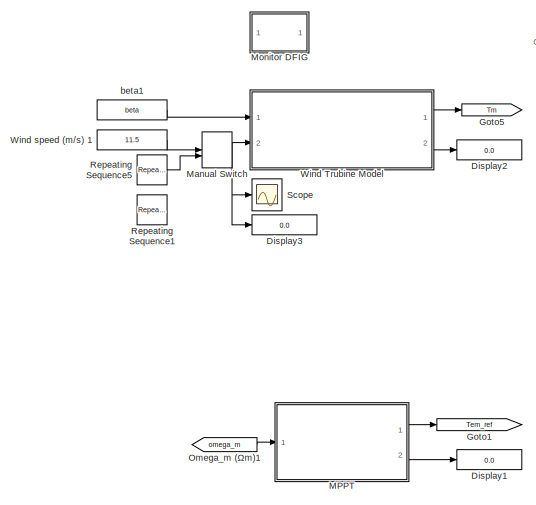
[diagram: DFIG 2.0 MW 690 V - part 1/2, middle left region]
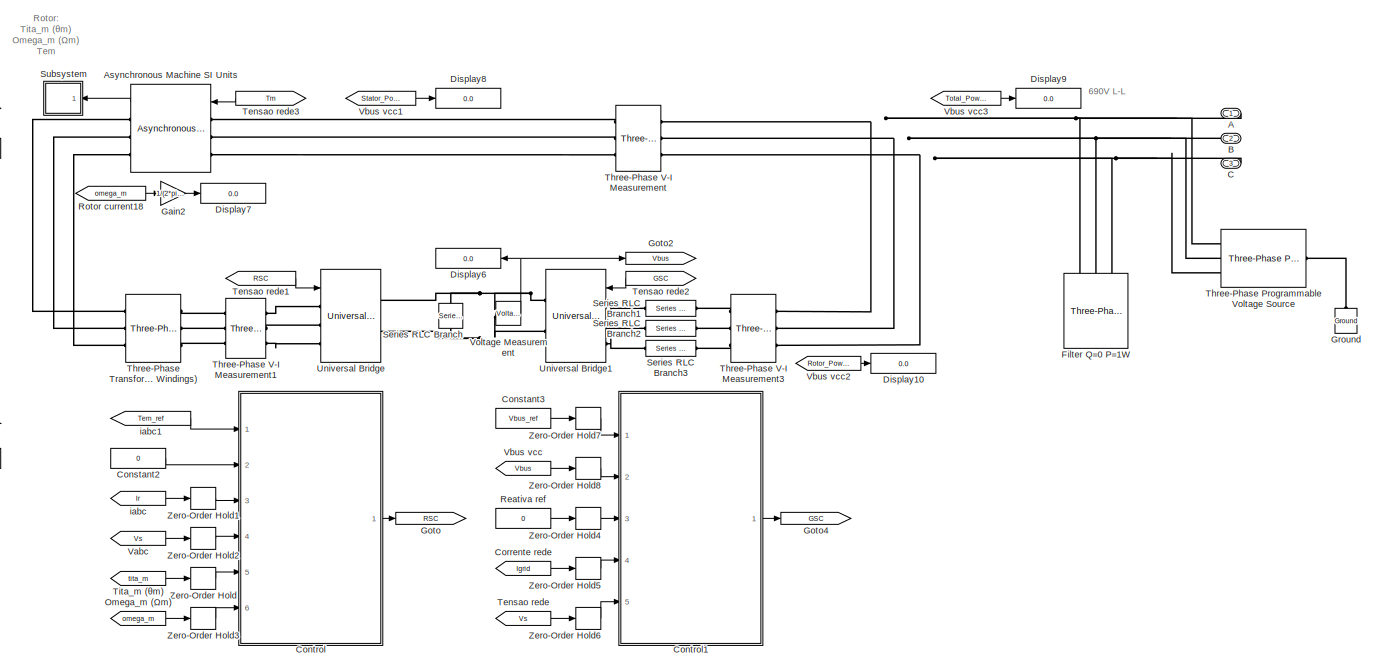
[diagram: DFIG 2.0 MW 690 V - part 2/2, center side, full height]
BLOCK [SubSystem] DFIG 2.0 MW 690 V
  Ports = [0, 0, 0, 0, 0, 0, 3]
  RequestExecContextInheritance = off
  Variant = off
BLOCK [PMIOPort] DFIG 2.0 MW 690 V/A
  Port = 1
  Side = Right
BLOCK [Reference] DFIG 2.0 MW 690 V/Asynchronous Machine SI Units  REF=powerlib/Machines/Asynchronous Machine
SI Units
  AttributesFormatString = \n
  Ports = [1, 1, 0, 0, 0, 3, 3]
  SourceBlock = powerlib/Machines/Asynchronous Machine\nSI Units
  SourceProductBaseCode = PS
  SourceProductName = Simscape Power Systems
  SourceType = Asynchronous Machine
BLOCK [PMIOPort] DFIG 2.0 MW 690 V/B
  Port = 2
  Side = Right
BLOCK [PMIOPort] DFIG 2.0 MW 690 V/C
  Port = 3
  Side = Right
BLOCK [Constant] DFIG 2.0 MW 690 V/Constant2
  Value = 0
BLOCK [Constant] DFIG 2.0 MW 690 V/Constant3
  Value = Vbus_ref
BLOCK [SubSystem] DFIG 2.0 MW 690 V/Control
  Ports = [6, 1]
  RequestExecContextInheritance = off
  Variant = off
BLOCK [SubSystem] DFIG 2.0 MW 690 V/Control/ Angle Rotor
  Ports = [2, 1]
  RequestExecContextInheritance = off
  Variant = off
BLOCK [SubSystem] DFIG 2.0 MW 690 V/Control/ Angle Rotor/Clarke: abc - αβ 
  Ports = [1, 1]
  RequestExecContextInheritance = off
  Variant = off
BLOCK [Fcn] DFIG 2.0 MW 690 V/Control/ Angle Rotor/Clarke: abc - αβ /Fcn
  Expr = 2/3*(u[1]-u[2]/2-u[3]/2)
BLOCK [Fcn] DFIG 2.0 MW 690 V/Control/ Angle Rotor/Clarke: abc - αβ /Fcn1
  Expr = 2/3*(u[2]*(sqrt(3)/2)-u[3]*(sqrt(3)/2))
BLOCK [Mux] DFIG 2.0 MW 690 V/Control/ Angle Rotor/Clarke: abc - αβ /Mux
  DisplayOption = bar
  Inputs = 2
  Ports = [2, 1]
BLOCK [Inport] DFIG 2.0 MW 690 V/Control/ Angle Rotor/Clarke: abc - αβ /Vabc
  IconDisplay = Port number
BLOCK [Outport] DFIG 2.0 MW 690 V/Control/ Angle Rotor/Clarke: abc - αβ /Vαs//βs 
  IconDisplay = Port number
BLOCK [Constant] DFIG 2.0 MW 690 V/Control/ Angle Rotor/Constant
  Value = pi/2
BLOCK [Demux] DFIG 2.0 MW 690 V/Control/ Angle Rotor/Demux
  DisplayOption = bar
  Outputs = 2
  Ports = [1, 2]
BLOCK [ManualSwitch] DFIG 2.0 MW 690 V/Control/ Angle Rotor/Manual Switch1
  CurrentSetting = 0
BLOCK [Reference] DFIG 2.0 MW 690 V/Control/ Angle Rotor/PLL (3ph)1  REF=powerlib_meascontrol/PLL/PLL
(3ph)
  Commented = on
  Ports = [1, 2]
  SourceBlock = powerlib_meascontrol/PLL/PLL\n(3ph)
  SourceProductBaseCode = PS
  SourceProductName = Simscape Power Systems
  SourceType = PLL (3ph)
BLOCK [Gain] DFIG 2.0 MW 690 V/Control/ Angle Rotor/Pole Pairs
  Gain = p
  OutDataTypeStr = Inherit: Inherit via internal rule
  ParamDataTypeStr = Inherit: Inherit via internal rule
  SaturateOnIntegerOverflow = off
BLOCK [Sum] DFIG 2.0 MW 690 V/Control/ Angle Rotor/Sum
  IconShape = round
  InputSameDT = off
  Inputs = |+-
  OutDataTypeStr = Inherit: Inherit via internal rule
  Ports = [2, 1]
  SaturateOnIntegerOverflow = off
BLOCK [Sum] DFIG 2.0 MW 690 V/Control/ Angle Rotor/Sum1
  IconShape = round
  InputSameDT = off
  Inputs = |+-
  OutDataTypeStr = Inherit: Inherit via internal rule
  Ports = [2, 1]
  SaturateOnIntegerOverflow = off
BLOCK [Inport] DFIG 2.0 MW 690 V/Control/ Angle Rotor/Theta_m (θm) Mechanic
  IconDisplay = Port number
BLOCK [Inport] DFIG 2.0 MW 690 V/Control/ Angle Rotor/Vabcs
  IconDisplay = Port number
  Port = 2
BLOCK [Outport] DFIG 2.0 MW 690 V/Control/ Angle Rotor/theta_r (θr)
  IconDisplay = Port number
BLOCK [Trigonometry] DFIG 2.0 MW 690 V/Control/ Angle Rotor/θv=tan^(-1) (Vβ//Vα)
  Operator = atan2
  Ports = [2, 1]
BLOCK [Gain] DFIG 2.0 MW 690 V/Control/1//kQ
  Gain = 1/(-1.5*(f*2*pi)*Lm/Ls*Fs)
  OutDataTypeStr = Inherit: Inherit via internal rule
  ParamDataTypeStr = Inherit: Inherit via internal rule
  SaturateOnIntegerOverflow = off
BLOCK [Gain] DFIG 2.0 MW 690 V/Control/1//kT
  Gain = 1/(-1.5*p*Lm/Ls*Fs)
  OutDataTypeStr = Inherit: Inherit via internal rule
  ParamDataTypeStr = Inherit: Inherit via internal rule
  SaturateOnIntegerOverflow = off
BLOCK [SubSystem] DFIG 2.0 MW 690 V/Control/3er Harmonic Inyection
  Ports = [1, 1]
  RequestExecContextInheritance = off
  Variant = off
BLOCK [Gain] DFIG 2.0 MW 690 V/Control/3er Harmonic Inyection/Gain
  Gain = -0.5
  OutDataTypeStr = Inherit: Inherit via internal rule
  ParamDataTypeStr = Inherit: Inherit via internal rule
  SaturateOnIntegerOverflow = off
BLOCK [MinMax] DFIG 2.0 MW 690 V/Control/3er Harmonic Inyection/MinMax
  InputSameDT = off
  Ports = [1, 1]
  SaturateOnIntegerOverflow = off
BLOCK [MinMax] DFIG 2.0 MW 690 V/Control/3er Harmonic Inyection/MinMax1
  Function = max
  InputSameDT = off
  Ports = [1, 1]
  SaturateOnIntegerOverflow = off
BLOCK [Scope] DFIG 2.0 MW 690 V/Control/3er Harmonic Inyection/Scope
  NumInputPorts = 1
  Ports = [1]
BLOCK [Sum] DFIG 2.0 MW 690 V/Control/3er Harmonic Inyection/Sum
  IconShape = round
  InputSameDT = off
  Inputs = |++
  OutDataTypeStr = Inherit: Inherit via internal rule
  Ports = [2, 1]
  SaturateOnIntegerOverflow = off
BLOCK [Sum] DFIG 2.0 MW 690 V/Control/3er Harmonic Inyection/Sum1
  IconShape = round
  InputSameDT = off
  Inputs = |++
  OutDataTypeStr = Inherit: Inherit via internal rule
  Ports = [2, 1]
  SaturateOnIntegerOverflow = off
BLOCK [Inport] DFIG 2.0 MW 690 V/Control/3er Harmonic Inyection/in
  IconDisplay = Port number
BLOCK [Outport] DFIG 2.0 MW 690 V/Control/3er Harmonic Inyection/out
  IconDisplay = Port number
BLOCK [SubSystem] DFIG 2.0 MW 690 V/Control/Cancelation of cc
  Ports = [3, 1]
  RequestExecContextInheritance = off
  Variant = off
BLOCK [Constant] DFIG 2.0 MW 690 V/Control/Cancelation of cc/Constant
  Value = f
BLOCK [Constant] DFIG 2.0 MW 690 V/Control/Cancelation of cc/Constant1
  Value = Fs
BLOCK [Fcn] DFIG 2.0 MW 690 V/Control/Cancelation of cc/Fcn
  Expr = u[1]-u[5]*sigma*Lr*u[4]
BLOCK [Fcn] DFIG 2.0 MW 690 V/Control/Cancelation of cc/Fcn1
  Expr = u[2]+u[5]*sigma*Lr*u[3]+u[5]*(Lm/Ls)*u[6]
BLOCK [From] DFIG 2.0 MW 690 V/Control/Cancelation of cc/From
  GotoTag = idr
  IconDisplay = Signal name
  TagVisibility = global
BLOCK [From] DFIG 2.0 MW 690 V/Control/Cancelation of cc/From1
  GotoTag = iqr
  IconDisplay = Signal name
  TagVisibility = global
BLOCK [Gain] DFIG 2.0 MW 690 V/Control/Cancelation of cc/Gain
  Gain = p
  OutDataTypeStr = Inherit: Inherit via internal rule
  ParamDataTypeStr = Inherit: Inherit via internal rule
  SaturateOnIntegerOverflow = off
BLOCK [Gain] DFIG 2.0 MW 690 V/Control/Cancelation of cc/Gain1
  Gain = 2*pi
  OutDataTypeStr = Inherit: Inherit via internal rule
  ParamDataTypeStr = Inherit: Inherit via internal rule
  SaturateOnIntegerOverflow = off
BLOCK [Goto] DFIG 2.0 MW 690 V/Control/Cancelation of cc/Goto
  GotoTag = vdr
  TagVisibility = global
BLOCK [Goto] DFIG 2.0 MW 690 V/Control/Cancelation of cc/Goto1
  GotoTag = vqr
  TagVisibility = global
BLOCK [Goto] DFIG 2.0 MW 690 V/Control/Cancelation of cc/Goto3
  GotoTag = omega_s
  TagVisibility = global
BLOCK [Mux] DFIG 2.0 MW 690 V/Control/Cancelation of cc/Mux
  DisplayOption = bar
  Inputs = 2
  Ports = [2, 1]
BLOCK [Mux] DFIG 2.0 MW 690 V/Control/Cancelation of cc/Mux1
  DisplayOption = bar
  Inputs = 6
  Ports = [6, 1]
BLOCK [Sum] DFIG 2.0 MW 690 V/Control/Cancelation of cc/Sum
  IconShape = round
  InputSameDT = off
  Inputs = |+-
  OutDataTypeStr = Inherit: Inherit via internal rule
  Ports = [2, 1]
  SaturateOnIntegerOverflow = off
BLOCK [Inport] DFIG 2.0 MW 690 V/Control/Cancelation of cc/Vd
  IconDisplay = Port number
BLOCK [Outport] DFIG 2.0 MW 690 V/Control/Cancelation of cc/Vdr  Vqr
  IconDisplay = Port number
BLOCK [Inport] DFIG 2.0 MW 690 V/Control/Cancelation of cc/Vq
  IconDisplay = Port number
  Port = 2
BLOCK [Inport] DFIG 2.0 MW 690 V/Control/Cancelation of cc/omega_m (Ωm)
  IconDisplay = Port number
  Port = 3
BLOCK [Demux] DFIG 2.0 MW 690 V/Control/Demux
  DisplayOption = bar
  Outputs = 2
  Ports = [1, 2]
BLOCK [Gain] DFIG 2.0 MW 690 V/Control/Gain
  Gain = 1/(Vbus_ref/2)
  OutDataTypeStr = Inherit: Inherit via internal rule
  ParamDataTypeStr = Inherit: Inherit via internal rule
  SaturateOnIntegerOverflow = off
BLOCK [Gain] DFIG 2.0 MW 690 V/Control/Gain 1 Trasnformer
  Gain = 1/u
  OutDataTypeStr = Inherit: Inherit via internal rule
  ParamDataTypeStr = Inherit: Inherit via internal rule
  SaturateOnIntegerOverflow = off
BLOCK [Gain] DFIG 2.0 MW 690 V/Control/Gain 2 Trasnformer
  Gain = 1/u
  OutDataTypeStr = Inherit: Inherit via internal rule
  ParamDataTypeStr = Inherit: Inherit via internal rule
  SaturateOnIntegerOverflow = off
BLOCK [Goto] DFIG 2.0 MW 690 V/Control/Goto
  GotoTag = idr
  TagVisibility = global
BLOCK [Goto] DFIG 2.0 MW 690 V/Control/Goto1
  GotoTag = iqr
  TagVisibility = global
BLOCK [Goto] DFIG 2.0 MW 690 V/Control/Goto2
  GotoTag = idr_ref
  TagVisibility = global
BLOCK [Goto] DFIG 2.0 MW 690 V/Control/Goto3
  GotoTag = iqr_ref
  TagVisibility = global
BLOCK [Inport] DFIG 2.0 MW 690 V/Control/Omega_m (Ωm) 
  IconDisplay = Port number
  Port = 6
BLOCK [SubSystem] DFIG 2.0 MW 690 V/Control/PI Id
  Ports = [2, 1]
  RequestExecContextInheritance = off
  Variant = off
BLOCK [DiscreteIntegrator] DFIG 2.0 MW 690 V/Control/PI Id/Discrete-Time Integrator
  ICPrevOutput = DiscIntNeverNeededParam
  ICPrevScaledInput = DiscIntNeverNeededParam
  LimitOutput = on
  LowerSaturationLimit = -Vbus_ref/sqrt(3)
  Ports = [1, 1]
  SampleTime = 1/fsw
  UpperSaturationLimit = Vbus_ref/sqrt(3)
BLOCK [Display] DFIG 2.0 MW 690 V/Control/PI Id/Error
  Decimation = 1
  Ports = [1]
BLOCK [Gain] DFIG 2.0 MW 690 V/Control/PI Id/Gain
  Gain = kp_id
  OutDataTypeStr = Inherit: Inherit via internal rule
  ParamDataTypeStr = Inherit: Inherit via internal rule
  SaturateOnIntegerOverflow = off
BLOCK [Gain] DFIG 2.0 MW 690 V/Control/PI Id/Gain1
  Gain = ki_id
  OutDataTypeStr = Inherit: Inherit via internal rule
  ParamDataTypeStr = Inherit: Inherit via internal rule
  SaturateOnIntegerOverflow = off
BLOCK [Display] DFIG 2.0 MW 690 V/Control/PI Id/Mean
  Decimation = 1
  Ports = [1]
BLOCK [Mux] DFIG 2.0 MW 690 V/Control/PI Id/Mux
  DisplayOption = bar
  Inputs = 3
  Ports = [3, 1]
BLOCK [Display] DFIG 2.0 MW 690 V/Control/PI Id/Ref
  Decimation = 1
  Ports = [1]
BLOCK [Display] DFIG 2.0 MW 690 V/Control/PI Id/Sat
  Decimation = 1
  Ports = [1]
BLOCK [Display] DFIG 2.0 MW 690 V/Control/PI Id/Sat2
  Decimation = 1
  Ports = [1]
BLOCK [Saturate] DFIG 2.0 MW 690 V/Control/PI Id/Saturation
  InputPortMap = u0
  LowerLimit = -Vbus_ref/sqrt(3)
  Ports = [1, 1]
  UpperLimit = Vbus_ref/sqrt(3)
BLOCK [Scope] DFIG 2.0 MW 690 V/Control/PI Id/Scope
  NumInputPorts = 1
  Ports = [1]
  ScopeSpecificationString = C++SS(StrPVP('Open','off'),StrPVP('TimeRange','auto'),StrPVP('TickLabels','OneTimeTick'),StrPVP('ShowLegends','off'),StrPVP('LimitDataPoints','off'),StrPVP('MaxDataPoints','5000'),StrPVP('SaveToWorkspace','off'),StrPVP('SaveName','ScopeData1'),StrPVP('YMin','-14704.68799'),StrPVP('YMax','14704.68799'),StrPVP('BlockParamSampleInput','off'),StrPVP('BlockParamSampleTime','-1'),StrPVP('ZoomMode','on')...<+589ch>
BLOCK [Sum] DFIG 2.0 MW 690 V/Control/PI Id/Sum
  IconShape = round
  InputSameDT = off
  Inputs = |+-
  OutDataTypeStr = Inherit: Inherit via internal rule
  Ports = [2, 1]
  SaturateOnIntegerOverflow = off
BLOCK [Sum] DFIG 2.0 MW 690 V/Control/PI Id/Sum1
  IconShape = round
  InputSameDT = off
  Inputs = |++
  OutDataTypeStr = Inherit: Inherit via internal rule
  Ports = [2, 1]
  SaturateOnIntegerOverflow = off
BLOCK [Outport] DFIG 2.0 MW 690 V/Control/PI Id/Vd
  IconDisplay = Port number
BLOCK [Inport] DFIG 2.0 MW 690 V/Control/PI Id/idr_means
  IconDisplay = Port number
  Port = 2
BLOCK [Inport] DFIG 2.0 MW 690 V/Control/PI Id/idr_ref
  IconDisplay = Port number
BLOCK [SubSystem] DFIG 2.0 MW 690 V/Control/PI Iq
  Ports = [2, 1]
  RequestExecContextInheritance = off
  Variant = off
BLOCK [DiscreteIntegrator] DFIG 2.0 MW 690 V/Control/PI Iq/Discrete-Time Integrator
  ICPrevOutput = DiscIntNeverNeededParam
  ICPrevScaledInput = DiscIntNeverNeededParam
  LimitOutput = on
  LowerSaturationLimit = -Vbus_ref/sqrt(3)
  Ports = [1, 1]
  SampleTime = 1/fsw
  UpperSaturationLimit = Vbus_ref/sqrt(3)
BLOCK [Display] DFIG 2.0 MW 690 V/Control/PI Iq/Display1
  Decimation = 1
  Ports = [1]
BLOCK [Display] DFIG 2.0 MW 690 V/Control/PI Iq/Error
  Decimation = 1
  Ports = [1]
BLOCK [Gain] DFIG 2.0 MW 690 V/Control/PI Iq/Gain
  Gain = kp_iq
  OutDataTypeStr = Inherit: Inherit via internal rule
  ParamDataTypeStr = Inherit: Inherit via internal rule
  SaturateOnIntegerOverflow = off
BLOCK [Gain] DFIG 2.0 MW 690 V/Control/PI Iq/Gain1
  Gain = ki_iq
  OutDataTypeStr = Inherit: Inherit via internal rule
  ParamDataTypeStr = Inherit: Inherit via internal rule
  SaturateOnIntegerOverflow = off
BLOCK [Display] DFIG 2.0 MW 690 V/Control/PI Iq/Mean
  Decimation = 1
  Ports = [1]
BLOCK [Mux] DFIG 2.0 MW 690 V/Control/PI Iq/Mux
  DisplayOption = bar
  Inputs = 3
  Ports = [3, 1]
BLOCK [Display] DFIG 2.0 MW 690 V/Control/PI Iq/Ref
  Decimation = 1
  Ports = [1]
BLOCK [Display] DFIG 2.0 MW 690 V/Control/PI Iq/Sat
  Decimation = 1
  Ports = [1]
BLOCK [Saturate] DFIG 2.0 MW 690 V/Control/PI Iq/Saturation
  InputPortMap = u0
  LowerLimit = -Vbus_ref/sqrt(3)
  Ports = [1, 1]
  UpperLimit = Vbus_ref/sqrt(3)
BLOCK [Scope] DFIG 2.0 MW 690 V/Control/PI Iq/Scope
  NumInputPorts = 1
  Ports = [1]
  ScopeSpecificationString = C++SS(StrPVP('Open','off'),StrPVP('TimeRange','auto'),StrPVP('TickLabels','OneTimeTick'),StrPVP('ShowLegends','off'),StrPVP('LimitDataPoints','off'),StrPVP('MaxDataPoints','5000'),StrPVP('SaveToWorkspace','off'),StrPVP('SaveName','ScopeData1'),StrPVP('YMin','-14704.68799'),StrPVP('YMax','14704.68799'),StrPVP('BlockParamSampleInput','off'),StrPVP('BlockParamSampleTime','-1'),StrPVP('ZoomMode','on')...<+589ch>
BLOCK [Sum] DFIG 2.0 MW 690 V/Control/PI Iq/Sum
  IconShape = round
  InputSameDT = off
  Inputs = |+-
  OutDataTypeStr = Inherit: Inherit via internal rule
  Ports = [2, 1]
  SaturateOnIntegerOverflow = off
BLOCK [Sum] DFIG 2.0 MW 690 V/Control/PI Iq/Sum1
  IconShape = round
  InputSameDT = off
  Inputs = |++
  OutDataTypeStr = Inherit: Inherit via internal rule
  Ports = [2, 1]
  SaturateOnIntegerOverflow = off
BLOCK [Outport] DFIG 2.0 MW 690 V/Control/PI Iq/Vq
  IconDisplay = Port number
BLOCK [Inport] DFIG 2.0 MW 690 V/Control/PI Iq/iqr_means
  IconDisplay = Port number
  Port = 2
BLOCK [Inport] DFIG 2.0 MW 690 V/Control/PI Iq/iqr_ref
  IconDisplay = Port number
BLOCK [Outport] DFIG 2.0 MW 690 V/Control/PWM
  IconDisplay = Port number
BLOCK [Reference] DFIG 2.0 MW 690 V/Control/PWM Generator (2-Level)  REF=powerlib_meascontrol/Pulse & Signal
Generators/PWM Generator
(2-Level)
  Ports = [1, 1]
  SourceBlock = powerlib_meascontrol/Pulse & Signal\nGenerators/PWM Generator\n(2-Level)
  SourceProductBaseCode = PS
  SourceProductName = Simscape Power Systems
  SourceType = PWM Generator (2-Level)
BLOCK [Inport] DFIG 2.0 MW 690 V/Control/Q_ref
  IconDisplay = Port number
  Port = 2
BLOCK [Inport] DFIG 2.0 MW 690 V/Control/Tem_ref
  IconDisplay = Port number
BLOCK [Inport] DFIG 2.0 MW 690 V/Control/Theta_m (θm)
  IconDisplay = Port number
  Port = 5
BLOCK [Inport] DFIG 2.0 MW 690 V/Control/Vabcs
  IconDisplay = Port number
  Port = 4
BLOCK [SubSystem] DFIG 2.0 MW 690 V/Control/abc - α//β 
  Ports = [1, 1]
  RequestExecContextInheritance = off
  Variant = off
BLOCK [Fcn] DFIG 2.0 MW 690 V/Control/abc - α//β /Fcn
  Expr = 2/3*(u[1]-u[2]/2-u[3]/2)
BLOCK [Fcn] DFIG 2.0 MW 690 V/Control/abc - α//β /Fcn1
  Expr = 2/3*(u[2]*(sqrt(3)/2)-u[3]*(sqrt(3)/2))
BLOCK [Mux] DFIG 2.0 MW 690 V/Control/abc - α//β /Mux
  DisplayOption = bar
  Inputs = 2
  Ports = [2, 1]
BLOCK [Outport] DFIG 2.0 MW 690 V/Control/abc - α//β /i αr//βr
  IconDisplay = Port number
BLOCK [Inport] DFIG 2.0 MW 690 V/Control/abc - α//β /iabcr
  IconDisplay = Port number
BLOCK [SubSystem] DFIG 2.0 MW 690 V/Control/d//q - α//β
  Ports = [2, 1]
  RequestExecContextInheritance = off
  Variant = off
BLOCK [Fcn] DFIG 2.0 MW 690 V/Control/d//q - α//β/Fcn
  Expr = u(1)*cos(u[3])-u[2]*sin(u[3])
BLOCK [Fcn] DFIG 2.0 MW 690 V/Control/d//q - α//β/Fcn1
  Expr = u(1)*sin(u[3])+u[2]*cos(u[3])
BLOCK [Mux] DFIG 2.0 MW 690 V/Control/d//q - α//β/Mux
  DisplayOption = bar
  Inputs = 2
  Ports = [2, 1]
BLOCK [Mux] DFIG 2.0 MW 690 V/Control/d//q - α//β/Mux1
  DisplayOption = bar
  Inputs = 2
  Ports = [2, 1]
BLOCK [Outport] DFIG 2.0 MW 690 V/Control/d//q - α//β/V αr//βr
  IconDisplay = Port number
BLOCK [Inport] DFIG 2.0 MW 690 V/Control/d//q - α//β/Vdr  Vqr
  IconDisplay = Port number
BLOCK [Inport] DFIG 2.0 MW 690 V/Control/d//q - α//β/theta_r (θr)
  IconDisplay = Port number
  Port = 2
BLOCK [Inport] DFIG 2.0 MW 690 V/Control/iabcr
  IconDisplay = Port number
  Port = 3
BLOCK [SubSystem] DFIG 2.0 MW 690 V/Control/α//β - abc
  Ports = [1, 1]
  RequestExecContextInheritance = off
  Variant = off
BLOCK [Fcn] DFIG 2.0 MW 690 V/Control/α//β - abc/Fcn
  Expr = u(1)
BLOCK [Fcn] DFIG 2.0 MW 690 V/Control/α//β - abc/Fcn1
  Expr = -(u[1]/2)+u[2]*(sqrt(3)/2)
BLOCK [Fcn] DFIG 2.0 MW 690 V/Control/α//β - abc/Fcn2
  Expr = -(u[1]/2)-u[2]*(sqrt(3)/2)
BLOCK [Mux] DFIG 2.0 MW 690 V/Control/α//β - abc/Mux
  DisplayOption = bar
  Inputs = 3
  Ports = [3, 1]
BLOCK [Inport] DFIG 2.0 MW 690 V/Control/α//β - abc/V αr//βr
  IconDisplay = Port number
BLOCK [Outport] DFIG 2.0 MW 690 V/Control/α//β - abc/Vabcr
  IconDisplay = Port number
BLOCK [SubSystem] DFIG 2.0 MW 690 V/Control/α//β - d//q
  Ports = [2, 1]
  RequestExecContextInheritance = off
  Variant = off
BLOCK [Fcn] DFIG 2.0 MW 690 V/Control/α//β - d//q/Fcn
  Expr = u(1)*cos(u[3])+u[2]*sin(u[3])
BLOCK [Fcn] DFIG 2.0 MW 690 V/Control/α//β - d//q/Fcn1
  Expr = -u(1)*sin(u[3])+u[2]*cos(u[3])
BLOCK [Mux] DFIG 2.0 MW 690 V/Control/α//β - d//q/Mux
  DisplayOption = bar
  Inputs = 2
  Ports = [2, 1]
BLOCK [Mux] DFIG 2.0 MW 690 V/Control/α//β - d//q/Mux1
  DisplayOption = bar
  Inputs = 2
  Ports = [2, 1]
BLOCK [Outport] DFIG 2.0 MW 690 V/Control/α//β - d//q/i dr//qr
  IconDisplay = Port number
BLOCK [Inport] DFIG 2.0 MW 690 V/Control/α//β - d//q/i αr//βr
  IconDisplay = Port number
BLOCK [Inport] DFIG 2.0 MW 690 V/Control/α//β - d//q/theta_r (θr)
  IconDisplay = Port number
  Port = 2
BLOCK [SubSystem] DFIG 2.0 MW 690 V/Control1
  Ports = [5, 1]
  RequestExecContextInheritance = off
  Variant = off
BLOCK [SubSystem] DFIG 2.0 MW 690 V/Control1/ Angle Rotor
  Ports = [1, 1]
  RequestExecContextInheritance = off
  Variant = off
BLOCK [SubSystem] DFIG 2.0 MW 690 V/Control1/ Angle Rotor/ abc - αβ 
  Ports = [1, 1]
  RequestExecContextInheritance = off
  Variant = off
BLOCK [Fcn] DFIG 2.0 MW 690 V/Control1/ Angle Rotor/ abc - αβ /Fcn
  Expr = 2/3*(u[1]-u[2]/2-u[3]/2)
BLOCK [Fcn] DFIG 2.0 MW 690 V/Control1/ Angle Rotor/ abc - αβ /Fcn1
  Expr = 2/3*(u[2]*(sqrt(3)/2)-u[3]*(sqrt(3)/2))
BLOCK [Mux] DFIG 2.0 MW 690 V/Control1/ Angle Rotor/ abc - αβ /Mux
  DisplayOption = bar
  Inputs = 2
  Ports = [2, 1]
BLOCK [Inport] DFIG 2.0 MW 690 V/Control1/ Angle Rotor/ abc - αβ /Vabcg
  IconDisplay = Port number
BLOCK [Outport] DFIG 2.0 MW 690 V/Control1/ Angle Rotor/ abc - αβ /Vg α//β 
  IconDisplay = Port number
BLOCK [Demux] DFIG 2.0 MW 690 V/Control1/ Angle Rotor/Demux
  DisplayOption = bar
  Outputs = 2
  Ports = [1, 2]
BLOCK [Inport] DFIG 2.0 MW 690 V/Control1/ Angle Rotor/Vabcg 
  IconDisplay = Port number
BLOCK [Outport] DFIG 2.0 MW 690 V/Control1/ Angle Rotor/theta_g (θg)
  IconDisplay = Port number
BLOCK [Trigonometry] DFIG 2.0 MW 690 V/Control1/ Angle Rotor/θv=tan^(-1) (Vβ//Vα)
  Operator = atan2
  Ports = [2, 1]
BLOCK [SubSystem] DFIG 2.0 MW 690 V/Control1/3er Harmonic Inyection
  Ports = [1, 1]
  RequestExecContextInheritance = off
  Variant = off
BLOCK [Gain] DFIG 2.0 MW 690 V/Control1/3er Harmonic Inyection/Gain
  Gain = -0.5
  OutDataTypeStr = Inherit: Inherit via internal rule
  ParamDataTypeStr = Inherit: Inherit via internal rule
  SaturateOnIntegerOverflow = off
BLOCK [MinMax] DFIG 2.0 MW 690 V/Control1/3er Harmonic Inyection/MinMax
  InputSameDT = off
  Ports = [1, 1]
  SaturateOnIntegerOverflow = off
BLOCK [MinMax] DFIG 2.0 MW 690 V/Control1/3er Harmonic Inyection/MinMax1
  Function = max
  InputSameDT = off
  Ports = [1, 1]
  SaturateOnIntegerOverflow = off
BLOCK [Scope] DFIG 2.0 MW 690 V/Control1/3er Harmonic Inyection/Scope
  NumInputPorts = 1
  Ports = [1]
BLOCK [Sum] DFIG 2.0 MW 690 V/Control1/3er Harmonic Inyection/Sum
  IconShape = round
  InputSameDT = off
  Inputs = |++
  OutDataTypeStr = Inherit: Inherit via internal rule
  Ports = [2, 1]
  SaturateOnIntegerOverflow = off
BLOCK [Sum] DFIG 2.0 MW 690 V/Control1/3er Harmonic Inyection/Sum1
  IconShape = round
  InputSameDT = off
  Inputs = |++
  OutDataTypeStr = Inherit: Inherit via internal rule
  Ports = [2, 1]
  SaturateOnIntegerOverflow = off
BLOCK [Inport] DFIG 2.0 MW 690 V/Control1/3er Harmonic Inyection/in
  IconDisplay = Port number
BLOCK [Outport] DFIG 2.0 MW 690 V/Control1/3er Harmonic Inyection/out
  IconDisplay = Port number
BLOCK [SubSystem] DFIG 2.0 MW 690 V/Control1/Cancelation of cc
  Ports = [2, 1]
  RequestExecContextInheritance = off
  Variant = off
BLOCK [Display] DFIG 2.0 MW 690 V/Control1/Cancelation of cc/Display
  Decimation = 1
  Ports = [1]
BLOCK [Fcn] DFIG 2.0 MW 690 V/Control1/Cancelation of cc/Fcn
  Expr = u[1]-u[4]*Lg*(2*pi*f)
BLOCK [Fcn] DFIG 2.0 MW 690 V/Control1/Cancelation of cc/Fcn1
  Expr = u[2]+u[3]*Lg*(2*pi*f)
BLOCK [From] DFIG 2.0 MW 690 V/Control1/Cancelation of cc/From
  GotoTag = idg
  IconDisplay = Signal name
  TagVisibility = global
BLOCK [From] DFIG 2.0 MW 690 V/Control1/Cancelation of cc/From1
  GotoTag = iqg
  IconDisplay = Signal name
  TagVisibility = global
BLOCK [Goto] DFIG 2.0 MW 690 V/Control1/Cancelation of cc/Goto
  GotoTag = vdg
  TagVisibility = global
BLOCK [Goto] DFIG 2.0 MW 690 V/Control1/Cancelation of cc/Goto1
  GotoTag = vqg
  TagVisibility = global
BLOCK [Inport] DFIG 2.0 MW 690 V/Control1/Cancelation of cc/Id
  IconDisplay = Port number
BLOCK [Inport] DFIG 2.0 MW 690 V/Control1/Cancelation of cc/Iq
  IconDisplay = Port number
  Port = 2
BLOCK [Mux] DFIG 2.0 MW 690 V/Control1/Cancelation of cc/Mux
  DisplayOption = bar
  Inputs = 2
  Ports = [2, 1]
BLOCK [Mux] DFIG 2.0 MW 690 V/Control1/Cancelation of cc/Mux1
  DisplayOption = bar
  Ports = [4, 1]
BLOCK [Outport] DFIG 2.0 MW 690 V/Control1/Cancelation of cc/Vdg  Vqg
  IconDisplay = Port number
BLOCK [Demux] DFIG 2.0 MW 690 V/Control1/Demux
  DisplayOption = bar
  Outputs = 2
  Ports = [1, 2]
BLOCK [Display] DFIG 2.0 MW 690 V/Control1/Display
  Decimation = 1
  Ports = [1]
BLOCK [Display] DFIG 2.0 MW 690 V/Control1/Display1
  Decimation = 1
  Ports = [1]
BLOCK [Gain] DFIG 2.0 MW 690 V/Control1/Gain1
  Gain = Kqg
  OutDataTypeStr = Inherit: Inherit via internal rule
  ParamDataTypeStr = Inherit: Inherit via internal rule
  SaturateOnIntegerOverflow = off
BLOCK [Gain] DFIG 2.0 MW 690 V/Control1/Gain2
  Gain = Kpg
  OutDataTypeStr = Inherit: Inherit via internal rule
  ParamDataTypeStr = Inherit: Inherit via internal rule
  SaturateOnIntegerOverflow = off
BLOCK [Goto] DFIG 2.0 MW 690 V/Control1/Goto
  GotoTag = idg
  TagVisibility = global
BLOCK [Goto] DFIG 2.0 MW 690 V/Control1/Goto1
  GotoTag = iqg
  TagVisibility = global
BLOCK [Goto] DFIG 2.0 MW 690 V/Control1/Goto2
  GotoTag = idg_ref
  TagVisibility = global
BLOCK [Goto] DFIG 2.0 MW 690 V/Control1/Goto3
  GotoTag = iqg_ref
  TagVisibility = global
BLOCK [Goto] DFIG 2.0 MW 690 V/Control1/Goto4
  GotoTag = Vbus_ref
  TagVisibility = global
BLOCK [ManualSwitch] DFIG 2.0 MW 690 V/Control1/Manual Switch
BLOCK [Gain] DFIG 2.0 MW 690 V/Control1/Normalization
  Gain = 1/(Vbus_ref/2)
  OutDataTypeStr = Inherit: Inherit via internal rule
  ParamDataTypeStr = Inherit: Inherit via internal rule
  SaturateOnIntegerOverflow = off
BLOCK [SubSystem] DFIG 2.0 MW 690 V/Control1/PI
  Ports = [2, 1]
  RequestExecContextInheritance = off
  Variant = off
BLOCK [SubSystem] DFIG 2.0 MW 690 V/Control1/PI Id
  Ports = [2, 1]
  RequestExecContextInheritance = off
  Variant = off
BLOCK [DiscreteIntegrator] DFIG 2.0 MW 690 V/Control1/PI Id/Discrete-Time Integrator
  ICPrevOutput = DiscIntNeverNeededParam
  ICPrevScaledInput = DiscIntNeverNeededParam
  LimitOutput = on
  LowerSaturationLimit = -Vbus_ref/sqrt(3)*2
  Ports = [1, 1]
  SampleTime = 1/fsw
  UpperSaturationLimit = Vbus_ref/sqrt(3)*2
BLOCK [Display] DFIG 2.0 MW 690 V/Control1/PI Id/Error
  Decimation = 1
  Ports = [1]
BLOCK [Gain] DFIG 2.0 MW 690 V/Control1/PI Id/Gain
  Gain = kp_idg
  OutDataTypeStr = Inherit: Inherit via internal rule
  ParamDataTypeStr = Inherit: Inherit via internal rule
  SaturateOnIntegerOverflow = off
BLOCK [Gain] DFIG 2.0 MW 690 V/Control1/PI Id/Gain1
  Gain = ki_idg
  OutDataTypeStr = Inherit: Inherit via internal rule
  ParamDataTypeStr = Inherit: Inherit via internal rule
  SaturateOnIntegerOverflow = off
BLOCK [Display] DFIG 2.0 MW 690 V/Control1/PI Id/Mean
  Decimation = 1
  Ports = [1]
BLOCK [Mux] DFIG 2.0 MW 690 V/Control1/PI Id/Mux
  DisplayOption = bar
  Inputs = 3
  Ports = [3, 1]
BLOCK [Display] DFIG 2.0 MW 690 V/Control1/PI Id/Ref
  Decimation = 1
  Ports = [1]
BLOCK [Display] DFIG 2.0 MW 690 V/Control1/PI Id/Sat
  Decimation = 1
  Ports = [1]
BLOCK [Display] DFIG 2.0 MW 690 V/Control1/PI Id/Sat 1
  Decimation = 1
  Ports = [1]
BLOCK [Saturate] DFIG 2.0 MW 690 V/Control1/PI Id/Saturation
  InputPortMap = u0
  LowerLimit = -Vbus_ref/sqrt(3)*2
  Ports = [1, 1]
  UpperLimit = Vbus_ref/sqrt(3)*2
BLOCK [Scope] DFIG 2.0 MW 690 V/Control1/PI Id/Scope
  NumInputPorts = 1
  Ports = [1]
  ScopeSpecificationString = C++SS(StrPVP('Open','off'),StrPVP('TimeRange','auto'),StrPVP('TickLabels','OneTimeTick'),StrPVP('ShowLegends','off'),StrPVP('LimitDataPoints','off'),StrPVP('MaxDataPoints','5000'),StrPVP('SaveToWorkspace','off'),StrPVP('SaveName','ScopeData2'),StrPVP('YMin','-14704.68799'),StrPVP('YMax','14704.68799'),StrPVP('BlockParamSampleInput','off'),StrPVP('BlockParamSampleTime','-1'),StrPVP('ZoomMode','on')...<+589ch>
BLOCK [Sum] DFIG 2.0 MW 690 V/Control1/PI Id/Sum
  IconShape = round
  InputSameDT = off
  Inputs = |+-
  OutDataTypeStr = Inherit: Inherit via internal rule
  Ports = [2, 1]
  SaturateOnIntegerOverflow = off
BLOCK [Sum] DFIG 2.0 MW 690 V/Control1/PI Id/Sum1
  IconShape = round
  InputSameDT = off
  Inputs = |++
  OutDataTypeStr = Inherit: Inherit via internal rule
  Ports = [2, 1]
  SaturateOnIntegerOverflow = off
BLOCK [Inport] DFIG 2.0 MW 690 V/Control1/PI Id/idg_means
  IconDisplay = Port number
  Port = 2
BLOCK [Inport] DFIG 2.0 MW 690 V/Control1/PI Id/idg_ref
  IconDisplay = Port number
BLOCK [Outport] DFIG 2.0 MW 690 V/Control1/PI Id/out
  IconDisplay = Port number
BLOCK [SubSystem] DFIG 2.0 MW 690 V/Control1/PI Iq
  Ports = [2, 1]
  RequestExecContextInheritance = off
  Variant = off
BLOCK [DiscreteIntegrator] DFIG 2.0 MW 690 V/Control1/PI Iq/Discrete-Time Integrator
  ICPrevOutput = DiscIntNeverNeededParam
  ICPrevScaledInput = DiscIntNeverNeededParam
  LimitOutput = on
  LowerSaturationLimit = -Vbus_ref/sqrt(3)
  Ports = [1, 1]
  SampleTime = 1/fsw
  UpperSaturationLimit = Vbus_ref/sqrt(3)
BLOCK [Display] DFIG 2.0 MW 690 V/Control1/PI Iq/Error
  Decimation = 1
  Ports = [1]
BLOCK [Gain] DFIG 2.0 MW 690 V/Control1/PI Iq/Gain
  Gain = kp_iqg
  OutDataTypeStr = Inherit: Inherit via internal rule
  ParamDataTypeStr = Inherit: Inherit via internal rule
  SaturateOnIntegerOverflow = off
BLOCK [Gain] DFIG 2.0 MW 690 V/Control1/PI Iq/Gain1
  Gain = ki_iqg
  OutDataTypeStr = Inherit: Inherit via internal rule
  ParamDataTypeStr = Inherit: Inherit via internal rule
  SaturateOnIntegerOverflow = off
BLOCK [Display] DFIG 2.0 MW 690 V/Control1/PI Iq/Mean
  Decimation = 1
  Ports = [1]
BLOCK [Mux] DFIG 2.0 MW 690 V/Control1/PI Iq/Mux
  DisplayOption = bar
  Inputs = 3
  Ports = [3, 1]
BLOCK [Display] DFIG 2.0 MW 690 V/Control1/PI Iq/Ref
  Decimation = 1
  Ports = [1]
BLOCK [Display] DFIG 2.0 MW 690 V/Control1/PI Iq/Sat
  Decimation = 1
  Ports = [1]
BLOCK [Display] DFIG 2.0 MW 690 V/Control1/PI Iq/Sat 1
  Decimation = 1
  Ports = [1]
BLOCK [Saturate] DFIG 2.0 MW 690 V/Control1/PI Iq/Saturation
  InputPortMap = u0
  LowerLimit = -Vbus_ref/sqrt(3)
  Ports = [1, 1]
  UpperLimit = Vbus_ref/sqrt(3)
BLOCK [Scope] DFIG 2.0 MW 690 V/Control1/PI Iq/Scope
  NumInputPorts = 1
  Ports = [1]
  ScopeSpecificationString = C++SS(StrPVP('Open','off'),StrPVP('TimeRange','auto'),StrPVP('TickLabels','OneTimeTick'),StrPVP('ShowLegends','off'),StrPVP('LimitDataPoints','off'),StrPVP('MaxDataPoints','5000'),StrPVP('SaveToWorkspace','off'),StrPVP('SaveName','ScopeData3'),StrPVP('YMin','-14704.68799'),StrPVP('YMax','14704.68799'),StrPVP('BlockParamSampleInput','off'),StrPVP('BlockParamSampleTime','-1'),StrPVP('ZoomMode','on')...<+589ch>
BLOCK [Sum] DFIG 2.0 MW 690 V/Control1/PI Iq/Sum
  IconShape = round
  InputSameDT = off
  Inputs = |+-
  OutDataTypeStr = Inherit: Inherit via internal rule
  Ports = [2, 1]
  SaturateOnIntegerOverflow = off
BLOCK [Sum] DFIG 2.0 MW 690 V/Control1/PI Iq/Sum1
  IconShape = round
  InputSameDT = off
  Inputs = |++
  OutDataTypeStr = Inherit: Inherit via internal rule
  Ports = [2, 1]
  SaturateOnIntegerOverflow = off
BLOCK [Inport] DFIG 2.0 MW 690 V/Control1/PI Iq/iqg_means
  IconDisplay = Port number
  Port = 2
BLOCK [Inport] DFIG 2.0 MW 690 V/Control1/PI Iq/iqg_ref
  IconDisplay = Port number
BLOCK [Outport] DFIG 2.0 MW 690 V/Control1/PI Iq/out
  IconDisplay = Port number
BLOCK [DiscreteIntegrator] DFIG 2.0 MW 690 V/Control1/PI/Discrete-Time Integrator1
  ICPrevOutput = DiscIntNeverNeededParam
  ICPrevScaledInput = DiscIntNeverNeededParam
  LimitOutput = on
  LowerSaturationLimit = -Ps
  Ports = [1, 1]
  SampleTime = 1/fsw
  UpperSaturationLimit = Ps
BLOCK [Display] DFIG 2.0 MW 690 V/Control1/PI/Error
  Decimation = 1
  Ports = [1]
BLOCK [Gain] DFIG 2.0 MW 690 V/Control1/PI/Gain2
  Gain = kp_v
  OutDataTypeStr = Inherit: Inherit via internal rule
  ParamDataTypeStr = Inherit: Inherit via internal rule
  SaturateOnIntegerOverflow = off
BLOCK [Gain] DFIG 2.0 MW 690 V/Control1/PI/Gain3
  Gain = ki_v
  OutDataTypeStr = Inherit: Inherit via internal rule
  ParamDataTypeStr = Inherit: Inherit via internal rule
  SaturateOnIntegerOverflow = off
BLOCK [Display] DFIG 2.0 MW 690 V/Control1/PI/Mean
  Decimation = 1
  Ports = [1]
BLOCK [Mux] DFIG 2.0 MW 690 V/Control1/PI/Mux
  DisplayOption = bar
  Inputs = 3
  Ports = [3, 1]
BLOCK [Outport] DFIG 2.0 MW 690 V/Control1/PI/P_rotor_ref
  IconDisplay = Port number
BLOCK [Display] DFIG 2.0 MW 690 V/Control1/PI/Ref
  Decimation = 1
  Ports = [1]
BLOCK [Display] DFIG 2.0 MW 690 V/Control1/PI/Sat
  Decimation = 1
  Ports = [1]
BLOCK [Display] DFIG 2.0 MW 690 V/Control1/PI/Sat 1
  Decimation = 1
  Ports = [1]
BLOCK [Saturate] DFIG 2.0 MW 690 V/Control1/PI/Saturation1
  InputPortMap = u0
  LowerLimit = -Ps
  Ports = [1, 1]
  UpperLimit = Ps
BLOCK [Scope] DFIG 2.0 MW 690 V/Control1/PI/Scope
  NumInputPorts = 1
  Ports = [1]
  ScopeSpecificationString = C++SS(StrPVP('Open','off'),StrPVP('TimeRange','auto'),StrPVP('TickLabels','OneTimeTick'),StrPVP('ShowLegends','off'),StrPVP('LimitDataPoints','off'),StrPVP('MaxDataPoints','5000'),StrPVP('SaveToWorkspace','off'),StrPVP('SaveName','ScopeData4'),StrPVP('YMin','-14704.68799'),StrPVP('YMax','14704.68799'),StrPVP('BlockParamSampleInput','off'),StrPVP('BlockParamSampleTime','-1'),StrPVP('ZoomMode','on')...<+589ch>
BLOCK [Sum] DFIG 2.0 MW 690 V/Control1/PI/Sum2
  IconShape = round
  InputSameDT = off
  Inputs = |+-
  OutDataTypeStr = Inherit: Inherit via internal rule
  Ports = [2, 1]
  SaturateOnIntegerOverflow = off
BLOCK [Sum] DFIG 2.0 MW 690 V/Control1/PI/Sum3
  IconShape = round
  InputSameDT = off
  Inputs = |++
  OutDataTypeStr = Inherit: Inherit via internal rule
  Ports = [2, 1]
  SaturateOnIntegerOverflow = off
BLOCK [Inport] DFIG 2.0 MW 690 V/Control1/PI/means Vbus 
  IconDisplay = Port number
  Port = 2
BLOCK [Inport] DFIG 2.0 MW 690 V/Control1/PI/ref Vbus 
  IconDisplay = Port number
BLOCK [Reference] DFIG 2.0 MW 690 V/Control1/PLL (3ph)  REF=powerlib_meascontrol/PLL/PLL
(3ph)
  Commented = on
  Ports = [1, 2]
  SourceBlock = powerlib_meascontrol/PLL/PLL\n(3ph)
  SourceProductBaseCode = PS
  SourceProductName = Simscape Power Systems
  SourceType = PLL (3ph)
BLOCK [Outport] DFIG 2.0 MW 690 V/Control1/PWM
  IconDisplay = Port number
BLOCK [Reference] DFIG 2.0 MW 690 V/Control1/PWM Generator (2-Level)1  REF=powerlib_meascontrol/Pulse & Signal
Generators/PWM Generator
(2-Level)
  Ports = [1, 1]
  SourceBlock = powerlib_meascontrol/Pulse & Signal\nGenerators/PWM Generator\n(2-Level)
  SourceProductBaseCode = PS
  SourceProductName = Simscape Power Systems
  SourceType = PWM Generator (2-Level)
BLOCK [Inport] DFIG 2.0 MW 690 V/Control1/Qg_ref
  IconDisplay = Port number
  Port = 3
BLOCK [Inport] DFIG 2.0 MW 690 V/Control1/Vabcg 
  IconDisplay = Port number
  Port = 5
BLOCK [Inport] DFIG 2.0 MW 690 V/Control1/Vbus
  IconDisplay = Port number
  Port = 2
BLOCK [Inport] DFIG 2.0 MW 690 V/Control1/Vbus_ref
  IconDisplay = Port number
BLOCK [SubSystem] DFIG 2.0 MW 690 V/Control1/abc - α//β  
  Ports = [1, 1]
  RequestExecContextInheritance = off
  Variant = off
BLOCK [Fcn] DFIG 2.0 MW 690 V/Control1/abc - α//β  /Fcn
  Expr = 2/3*(u[1]-u[2]/2-u[3]/2)
BLOCK [Fcn] DFIG 2.0 MW 690 V/Control1/abc - α//β  /Fcn1
  Expr = 2/3*(u[2]*(sqrt(3)/2)-u[3]*(sqrt(3)/2))
BLOCK [Mux] DFIG 2.0 MW 690 V/Control1/abc - α//β  /Mux
  DisplayOption = bar
  Inputs = 2
  Ports = [2, 1]
BLOCK [Outport] DFIG 2.0 MW 690 V/Control1/abc - α//β  /i αg//βg
  IconDisplay = Port number
BLOCK [Inport] DFIG 2.0 MW 690 V/Control1/abc - α//β  /iabcg
  IconDisplay = Port number
BLOCK [SubSystem] DFIG 2.0 MW 690 V/Control1/d//q  α//β 
  Ports = [2, 1]
  RequestExecContextInheritance = off
  Variant = off
BLOCK [Fcn] DFIG 2.0 MW 690 V/Control1/d//q  α//β /Fcn
  Expr = u(1)*cos(u[3])-u[2]*sin(u[3])
BLOCK [Fcn] DFIG 2.0 MW 690 V/Control1/d//q  α//β /Fcn1
  Expr = u(1)*sin(u[3])+u[2]*cos(u[3])
BLOCK [Mux] DFIG 2.0 MW 690 V/Control1/d//q  α//β /Mux
  DisplayOption = bar
  Inputs = 2
  Ports = [2, 1]
BLOCK [Mux] DFIG 2.0 MW 690 V/Control1/d//q  α//β /Mux1
  DisplayOption = bar
  Inputs = 2
  Ports = [2, 1]
BLOCK [Outport] DFIG 2.0 MW 690 V/Control1/d//q  α//β /V αg//βg
  IconDisplay = Port number
BLOCK [Inport] DFIG 2.0 MW 690 V/Control1/d//q  α//β /Vdg  Vqg
  IconDisplay = Port number
BLOCK [Inport] DFIG 2.0 MW 690 V/Control1/d//q  α//β /theta_g (θg)
  IconDisplay = Port number
  Port = 2
BLOCK [Inport] DFIG 2.0 MW 690 V/Control1/iabcg
  IconDisplay = Port number
  Port = 4
BLOCK [SubSystem] DFIG 2.0 MW 690 V/Control1/α//β - abc
  Ports = [1, 1]
  RequestExecContextInheritance = off
  Variant = off
BLOCK [Fcn] DFIG 2.0 MW 690 V/Control1/α//β - abc/Fcn
  Expr = u(1)
BLOCK [Fcn] DFIG 2.0 MW 690 V/Control1/α//β - abc/Fcn1
  Expr = -(u[1]/2)+u[2]*(sqrt(3)/2)
BLOCK [Fcn] DFIG 2.0 MW 690 V/Control1/α//β - abc/Fcn2
  Expr = -(u[1]/2)-u[2]*(sqrt(3)/2)
BLOCK [Mux] DFIG 2.0 MW 690 V/Control1/α//β - abc/Mux
  DisplayOption = bar
  Inputs = 3
  Ports = [3, 1]
BLOCK [Inport] DFIG 2.0 MW 690 V/Control1/α//β - abc/V αg//βg
  IconDisplay = Port number
BLOCK [Outport] DFIG 2.0 MW 690 V/Control1/α//β - abc/Vabcg
  IconDisplay = Port number
BLOCK [SubSystem] DFIG 2.0 MW 690 V/Control1/α//β - d//q
  Ports = [2, 1]
  RequestExecContextInheritance = off
  Variant = off
BLOCK [Fcn] DFIG 2.0 MW 690 V/Control1/α//β - d//q/Fcn
  Expr = u(1)*cos(u[3])+u[2]*sin(u[3])
BLOCK [Fcn] DFIG 2.0 MW 690 V/Control1/α//β - d//q/Fcn1
  Expr = -u(1)*sin(u[3])+u[2]*cos(u[3])
BLOCK [Mux] DFIG 2.0 MW 690 V/Control1/α//β - d//q/Mux
  DisplayOption = bar
  Inputs = 2
  Ports = [2, 1]
BLOCK [Mux] DFIG 2.0 MW 690 V/Control1/α//β - d//q/Mux1
  DisplayOption = bar
  Inputs = 2
  Ports = [2, 1]
BLOCK [Outport] DFIG 2.0 MW 690 V/Control1/α//β - d//q/i dg//qg
  IconDisplay = Port number
BLOCK [Inport] DFIG 2.0 MW 690 V/Control1/α//β - d//q/i αg//βg
  IconDisplay = Port number
BLOCK [Inport] DFIG 2.0 MW 690 V/Control1/α//β - d//q/theta_g (θg)
  IconDisplay = Port number
  Port = 2
BLOCK [From] DFIG 2.0 MW 690 V/Corrente rede
  GotoTag = Igrid
  TagVisibility = global
BLOCK [Display] DFIG 2.0 MW 690 V/Display1
  Decimation = 1
  Ports = [1]
BLOCK [Display] DFIG 2.0 MW 690 V/Display10
  Decimation = 1
  Ports = [1]
BLOCK [Display] DFIG 2.0 MW 690 V/Display2
  Decimation = 1
  Ports = [1]
BLOCK [Display] DFIG 2.0 MW 690 V/Display3
  Decimation = 1
  Ports = [1]
BLOCK [Display] DFIG 2.0 MW 690 V/Display6
  Decimation = 1
  Ports = [1]
BLOCK [Display] DFIG 2.0 MW 690 V/Display7
  Decimation = 1
  Ports = [1]
BLOCK [Display] DFIG 2.0 MW 690 V/Display8
  Decimation = 1
  Ports = [1]
BLOCK [Display] DFIG 2.0 MW 690 V/Display9
  Decimation = 1
  Ports = [1]
BLOCK [Reference] DFIG 2.0 MW 690 V/Filter Q=0 P=1W  REF=powerlib/Elements/Three-Phase
Series RLC Load
  AttributesFormatString = \n
  Ports = [0, 0, 0, 0, 0, 3]
  SourceBlock = powerlib/Elements/Three-Phase\nSeries RLC Load
  SourceProductBaseCode = PS
  SourceProductName = Simscape Power Systems
  SourceType = Three-Phase Series RLC Load
BLOCK [Gain] DFIG 2.0 MW 690 V/Gain2
  Gain = 1/(2*pi/60)
  OutDataTypeStr = Inherit: Inherit via internal rule
  ParamDataTypeStr = Inherit: Inherit via internal rule
  SaturateOnIntegerOverflow = off
BLOCK [Goto] DFIG 2.0 MW 690 V/Goto
  GotoTag = RSC
  TagVisibility = global
BLOCK [Goto] DFIG 2.0 MW 690 V/Goto1
  GotoTag = Tem_ref
  TagVisibility = global
BLOCK [Goto] DFIG 2.0 MW 690 V/Goto2
  GotoTag = Vbus
  TagVisibility = global
BLOCK [Goto] DFIG 2.0 MW 690 V/Goto4
  GotoTag = GSC
  TagVisibility = global
BLOCK [Goto] DFIG 2.0 MW 690 V/Goto5
  GotoTag = Tm
  TagVisibility = global
BLOCK [Reference] DFIG 2.0 MW 690 V/Ground  REF=powerlib/Elements/Ground
  Commented = on
  Ports = [0, 0, 0, 0, 0, 1]
  SourceBlock = powerlib/Elements/Ground
  SourceProductBaseCode = PS
  SourceProductName = Simscape Power Systems
  SourceType = Ground
BLOCK [SubSystem] DFIG 2.0 MW 690 V/MPPT
  Ports = [1, 2]
  RequestExecContextInheritance = off
  Variant = off
BLOCK [Display] DFIG 2.0 MW 690 V/MPPT/Display1
  Decimation = 1
  Ports = [1]
BLOCK [Display] DFIG 2.0 MW 690 V/MPPT/Display2
  Decimation = 1
  Ports = [1]
BLOCK [Gain] DFIG 2.0 MW 690 V/MPPT/Gearbox Ratio Generator Torque (-)1
  Gain = -1/N
  OutDataTypeStr = Inherit: Inherit via internal rule
  ParamDataTypeStr = Inherit: Inherit via internal rule
  SaturateOnIntegerOverflow = off
BLOCK [Gain] DFIG 2.0 MW 690 V/MPPT/Gearbox Ratio1
  Gain = 1/N
  OutDataTypeStr = Inherit: Inherit via internal rule
  ParamDataTypeStr = Inherit: Inherit via internal rule
  SaturateOnIntegerOverflow = off
BLOCK [Gain] DFIG 2.0 MW 690 V/MPPT/Kopt
  Gain = 0.5*ro*pi*(Radio)^5/(lambda_opt)^3*cp_opt_abs
  OutDataTypeStr = Inherit: Inherit via internal rule
  ParamDataTypeStr = Inherit: Inherit via internal rule
  SaturateOnIntegerOverflow = off
BLOCK [Inport] DFIG 2.0 MW 690 V/MPPT/Omega_m
  IconDisplay = Port number
BLOCK [Outport] DFIG 2.0 MW 690 V/MPPT/Pot_ref 
  IconDisplay = Port number
  Port = 2
BLOCK [Product] DFIG 2.0 MW 690 V/MPPT/Product2
  Inputs = **
  Ports = [2, 1]
  RndMeth = Floor
BLOCK [Outport] DFIG 2.0 MW 690 V/MPPT/Tem_ref
  IconDisplay = Port number
BLOCK [Fcn] DFIG 2.0 MW 690 V/MPPT/omega^2
  Expr = (u[1])^2
BLOCK [ManualSwitch] DFIG 2.0 MW 690 V/Manual Switch
  CurrentSetting = 0
BLOCK [SubSystem] DFIG 2.0 MW 690 V/Monitor DFIG
  Ports = []
  RequestExecContextInheritance = off
  Variant = off
BLOCK [Constant] DFIG 2.0 MW 690 V/Monitor DFIG/Constant1
  Value = lambda_opt
BLOCK [Gain] DFIG 2.0 MW 690 V/Monitor DFIG/Gain2
  Gain = 1/(2*pi/60)
  OutDataTypeStr = Inherit: Inherit via internal rule
  ParamDataTypeStr = Inherit: Inherit via internal rule
  SaturateOnIntegerOverflow = off
BLOCK [Goto] DFIG 2.0 MW 690 V/Monitor DFIG/Goto1
  GotoTag = Rotor_Power
  TagVisibility = global
BLOCK [Goto] DFIG 2.0 MW 690 V/Monitor DFIG/Goto2
  GotoTag = Total_Power
  TagVisibility = global
BLOCK [Goto] DFIG 2.0 MW 690 V/Monitor DFIG/Goto5
  GotoTag = Stator_Power
  TagVisibility = global
BLOCK [Mux] DFIG 2.0 MW 690 V/Monitor DFIG/Mux1
  DisplayOption = bar
  Inputs = 2
  Ports = [2, 1]
BLOCK [Mux] DFIG 2.0 MW 690 V/Monitor DFIG/Mux10
  DisplayOption = bar
  Inputs = 2
  Ports = [2, 1]
BLOCK [Mux] DFIG 2.0 MW 690 V/Monitor DFIG/Mux11
  DisplayOption = bar
  Inputs = 2
  Ports = [2, 1]
BLOCK [Mux] DFIG 2.0 MW 690 V/Monitor DFIG/Mux12
  DisplayOption = bar
  Inputs = 2
  Ports = [2, 1]
BLOCK [Mux] DFIG 2.0 MW 690 V/Monitor DFIG/Mux2
  DisplayOption = bar
  Inputs = 2
  Ports = [2, 1]
BLOCK [Mux] DFIG 2.0 MW 690 V/Monitor DFIG/Mux3
  DisplayOption = bar
  Inputs = 2
  Ports = [2, 1]
BLOCK [Mux] DFIG 2.0 MW 690 V/Monitor DFIG/Mux4
  DisplayOption = bar
  Inputs = 2
  Ports = [2, 1]
BLOCK [Mux] DFIG 2.0 MW 690 V/Monitor DFIG/Mux5
  DisplayOption = bar
  Inputs = 2
  Ports = [2, 1]
BLOCK [Mux] DFIG 2.0 MW 690 V/Monitor DFIG/Mux6
  DisplayOption = bar
  Inputs = 2
  Ports = [2, 1]
BLOCK [Mux] DFIG 2.0 MW 690 V/Monitor DFIG/Mux7
  DisplayOption = bar
  Inputs = 2
  Ports = [2, 1]
BLOCK [Mux] DFIG 2.0 MW 690 V/Monitor DFIG/Mux8
  DisplayOption = bar
  Inputs = 2
  Ports = [2, 1]
BLOCK [Mux] DFIG 2.0 MW 690 V/Monitor DFIG/Mux9
  DisplayOption = bar
  Inputs = 2
  Ports = [2, 1]
BLOCK [Reference] DFIG 2.0 MW 690 V/Monitor DFIG/Power (3ph, Instantaneous)  REF=powerlib_meascontrol/Measurements/Power
(3ph, Instantaneous)
  Ports = [2, 2]
  SourceBlock = powerlib_meascontrol/Measurements/Power\n(3ph, Instantaneous)
  SourceProductBaseCode = PS
  SourceProductName = Simscape Power Systems
  SourceType = Power (3ph, Instantaneous)
BLOCK [Reference] DFIG 2.0 MW 690 V/Monitor DFIG/Power (3ph, Instantaneous)1  REF=powerlib_meascontrol/Measurements/Power
(3ph, Instantaneous)
  Ports = [2, 2]
  SourceBlock = powerlib_meascontrol/Measurements/Power\n(3ph, Instantaneous)
  SourceProductBaseCode = PS
  SourceProductName = Simscape Power Systems
  SourceType = Power (3ph, Instantaneous)
BLOCK [From] DFIG 2.0 MW 690 V/Monitor DFIG/Rotor current1
  GotoTag = lambda
  TagVisibility = global
BLOCK [From] DFIG 2.0 MW 690 V/Monitor DFIG/Rotor current12
  GotoTag = Ir
  TagVisibility = global
BLOCK [From] DFIG 2.0 MW 690 V/Monitor DFIG/Rotor current13
  GotoTag = Vbus
  TagVisibility = global
BLOCK [From] DFIG 2.0 MW 690 V/Monitor DFIG/Rotor current14
  GotoTag = iqg_ref
  TagVisibility = global
BLOCK [From] DFIG 2.0 MW 690 V/Monitor DFIG/Rotor current15
  GotoTag = iqg
  TagVisibility = global
BLOCK [From] DFIG 2.0 MW 690 V/Monitor DFIG/Rotor current17
  GotoTag = omega_ref
BLOCK [From] DFIG 2.0 MW 690 V/Monitor DFIG/Rotor current18
  GotoTag = omega_m
  TagVisibility = global
BLOCK [From] DFIG 2.0 MW 690 V/Monitor DFIG/Rotor current19
  GotoTag = iqr_ref
  TagVisibility = global
BLOCK [From] DFIG 2.0 MW 690 V/Monitor DFIG/Rotor current2
  GotoTag = cp
  TagVisibility = global
BLOCK [From] DFIG 2.0 MW 690 V/Monitor DFIG/Rotor current20
  GotoTag = iqr
  TagVisibility = global
BLOCK [From] DFIG 2.0 MW 690 V/Monitor DFIG/Rotor current21
  GotoTag = Tem_ref
  TagVisibility = global
BLOCK [From] DFIG 2.0 MW 690 V/Monitor DFIG/Rotor current22
  GotoTag = Tem_mean
  TagVisibility = global
BLOCK [From] DFIG 2.0 MW 690 V/Monitor DFIG/Rotor current23
  GotoTag = idr_ref
  TagVisibility = global
BLOCK [From] DFIG 2.0 MW 690 V/Monitor DFIG/Rotor current24
  GotoTag = idr
  TagVisibility = global
BLOCK [From] DFIG 2.0 MW 690 V/Monitor DFIG/Rotor current26
  GotoTag = idg_ref
  TagVisibility = global
BLOCK [From] DFIG 2.0 MW 690 V/Monitor DFIG/Rotor current27
  GotoTag = idg
  TagVisibility = global
BLOCK [From] DFIG 2.0 MW 690 V/Monitor DFIG/Rotor current28
  GotoTag = vdg
  TagVisibility = global
BLOCK [From] DFIG 2.0 MW 690 V/Monitor DFIG/Rotor current29
  GotoTag = vqg
  TagVisibility = global
BLOCK [From] DFIG 2.0 MW 690 V/Monitor DFIG/Rotor current3
  GotoTag = Pt
  TagVisibility = global
BLOCK [From] DFIG 2.0 MW 690 V/Monitor DFIG/Rotor current7
  GotoTag = Vbus_ref
  TagVisibility = global
BLOCK [From] DFIG 2.0 MW 690 V/Monitor DFIG/Rotor current8
  GotoTag = vdr
  TagVisibility = global
BLOCK [From] DFIG 2.0 MW 690 V/Monitor DFIG/Rotor current9
  GotoTag = vqr
  TagVisibility = global
BLOCK [Scope] DFIG 2.0 MW 690 V/Monitor DFIG/Scope
  NumInputPorts = 4
  Ports = [4]
  ScopeSpecificationString = Simulink.scopes.TimeScopeBlockCfg('CurrentConfiguration', extmgr.ConfigurationSet(extmgr.Configuration('Core','General UI',true,'FigureColor',[0.156862745098039 0.156862745098039 0.156862745098039]),extmgr.Configuration('Core','Source UI',true),extmgr.Configuration('Sources','WiredSimulink',true,'DataLoggingVariableName','ScopeData1','DataLoggingSaveFormat','StructureWithTime','DataLoggingDecimati...<+6430ch>
BLOCK [Scope] DFIG 2.0 MW 690 V/Monitor DFIG/Scope1
  NumInputPorts = 6
  Ports = [6]
  ScopeSpecificationString = Simulink.scopes.TimeScopeBlockCfg('CurrentConfiguration', extmgr.ConfigurationSet(extmgr.Configuration('Core','General UI',true,'FigureColor',[0.156862745098039 0.156862745098039 0.156862745098039]),extmgr.Configuration('Core','Source UI',true),extmgr.Configuration('Sources','WiredSimulink',true,'DataLoggingVariableName','ScopeData2','DataLoggingSaveFormat','StructureWithTime','DataLoggingDecimati...<+9046ch>
BLOCK [Scope] DFIG 2.0 MW 690 V/Monitor DFIG/Scope2
  NumInputPorts = 8
  Ports = [8]
  ScopeSpecificationString = Simulink.scopes.TimeScopeBlockCfg('CurrentConfiguration', extmgr.ConfigurationSet(extmgr.Configuration('Core','General UI',true,'FigureColor',[0.156862745098039 0.156862745098039 0.156862745098039]),extmgr.Configuration('Core','Source UI',true),extmgr.Configuration('Sources','WiredSimulink',true,'DataLoggingVariableName','ScopeData3','DataLoggingSaveFormat','StructureWithTime','DataLoggingDecimati...<+11695ch>
BLOCK [Sum] DFIG 2.0 MW 690 V/Monitor DFIG/Sum
  IconShape = round
  InputSameDT = off
  Inputs = |++
  OutDataTypeStr = Inherit: Inherit via internal rule
  Ports = [2, 1]
  SaturateOnIntegerOverflow = off
BLOCK [From] DFIG 2.0 MW 690 V/Monitor DFIG/Tensao rede3
  GotoTag = Tm
  TagVisibility = global
BLOCK [From] DFIG 2.0 MW 690 V/Monitor DFIG/Vbus vcc1
  GotoTag = Vs
  TagVisibility = global
BLOCK [From] DFIG 2.0 MW 690 V/Monitor DFIG/Vbus vcc2
  GotoTag = Is
  TagVisibility = global
BLOCK [From] DFIG 2.0 MW 690 V/Monitor DFIG/Vbus vcc3
  GotoTag = Vgrid
  TagVisibility = global
BLOCK [From] DFIG 2.0 MW 690 V/Monitor DFIG/Vbus vcc4
  GotoTag = Igrid
  TagVisibility = global
BLOCK [From] DFIG 2.0 MW 690 V/Monitor DFIG/Vbus vcc5
  GotoTag = Pt
  TagVisibility = global
BLOCK [From] DFIG 2.0 MW 690 V/Omega_m (Ωm)
  GotoTag = omega_m
  TagVisibility = global
BLOCK [From] DFIG 2.0 MW 690 V/Omega_m (Ωm)1
  GotoTag = omega_m
  TagVisibility = global
BLOCK [Constant] DFIG 2.0 MW 690 V/Reativa ref
  Value = 0
BLOCK [Reference] DFIG 2.0 MW 690 V/Repeating Sequence1  REF=simulink/Sources/Repeating
Sequence
  Ports = [0, 1]
  SourceBlock = simulink/Sources/Repeating\nSequence
  SourceProductBaseCode = SL
  SourceProductName = Simulink
  SourceType = Repeating table
BLOCK [Reference] DFIG 2.0 MW 690 V/Repeating Sequence5  REF=simulink/Sources/Repeating
Sequence
  Ports = [0, 1]
  SourceBlock = simulink/Sources/Repeating\nSequence
  SourceProductBaseCode = SL
  SourceProductName = Simulink
  SourceType = Repeating table
BLOCK [From] DFIG 2.0 MW 690 V/Rotor current18
  GotoTag = omega_m
  TagVisibility = global
BLOCK [Scope] DFIG 2.0 MW 690 V/Scope
  NumInputPorts = 1
  Ports = [1]
  ScopeSpecificationString = Simulink.scopes.TimeScopeBlockCfg('CurrentConfiguration', extmgr.ConfigurationSet(extmgr.Configuration('Core','General UI',true),extmgr.Configuration('Core','Source UI',true),extmgr.Configuration('Sources','WiredSimulink',true,'DataLoggingVariableName','ScopeData1'),extmgr.Configuration('Visuals','Time Domain',true,'SerializedDisplays',{struct('MinYLimReal','9.8125','MaxYLimReal','11.6875','YLabel...<+1466ch>
BLOCK [Reference] DFIG 2.0 MW 690 V/Series RLC Branch  REF=powerlib/Elements/Series RLC Branch
  Ports = [0, 0, 0, 0, 0, 1, 1]
  SourceBlock = powerlib/Elements/Series RLC Branch
  SourceProductBaseCode = PS
  SourceProductName = Simscape Power Systems
  SourceType = Series RLC Branch
BLOCK [Reference] DFIG 2.0 MW 690 V/Series RLC Branch1  REF=powerlib/Elements/Series RLC Branch
  Ports = [0, 0, 0, 0, 0, 1, 1]
  SourceBlock = powerlib/Elements/Series RLC Branch
  SourceProductBaseCode = PS
  SourceProductName = Simscape Power Systems
  SourceType = Series RLC Branch
BLOCK [Reference] DFIG 2.0 MW 690 V/Series RLC Branch2  REF=powerlib/Elements/Series RLC Branch
  Ports = [0, 0, 0, 0, 0, 1, 1]
  SourceBlock = powerlib/Elements/Series RLC Branch
  SourceProductBaseCode = PS
  SourceProductName = Simscape Power Systems
  SourceType = Series RLC Branch
BLOCK [Reference] DFIG 2.0 MW 690 V/Series RLC Branch3  REF=powerlib/Elements/Series RLC Branch
  Ports = [0, 0, 0, 0, 0, 1, 1]
  SourceBlock = powerlib/Elements/Series RLC Branch
  SourceProductBaseCode = PS
  SourceProductName = Simscape Power Systems
  SourceType = Series RLC Branch
BLOCK [SubSystem] DFIG 2.0 MW 690 V/Subsystem
  Ports = [1]
  RequestExecContextInheritance = off
  Variant = off
BLOCK [BusSelector] DFIG 2.0 MW 690 V/Subsystem/Bus Selector
  OutputAsBus = off
  OutputSignals = Mechanical.Rotor angle thetam (rad),Mechanical.Rotor speed (wm),Mechanical.Electromagnetic torque Te (N*m)
  Ports = [1, 3]
BLOCK [Goto] DFIG 2.0 MW 690 V/Subsystem/Goto
  GotoTag = tita_m
  TagVisibility = global
BLOCK [Goto] DFIG 2.0 MW 690 V/Subsystem/Goto1
  GotoTag = omega_m
  TagVisibility = global
BLOCK [Goto] DFIG 2.0 MW 690 V/Subsystem/Goto2
  GotoTag = Tem_mean
  TagVisibility = global
BLOCK [Inport] DFIG 2.0 MW 690 V/Subsystem/In1
  IconDisplay = Port number
BLOCK [From] DFIG 2.0 MW 690 V/Tensao rede
  GotoTag = Vs
  TagVisibility = global
BLOCK [From] DFIG 2.0 MW 690 V/Tensao rede1
  GotoTag = RSC
  TagVisibility = global
BLOCK [From] DFIG 2.0 MW 690 V/Tensao rede2
  GotoTag = GSC
  TagVisibility = global
BLOCK [From] DFIG 2.0 MW 690 V/Tensao rede3
  GotoTag = Tm
  TagVisibility = global
BLOCK [Reference] DFIG 2.0 MW 690 V/Three-Phase Programmable Voltage Source  REF=powerlib/Electrical
Sources/Three-Phase
Programmable
Voltage Source
  Commented = on
  Ports = [0, 0, 0, 0, 0, 1, 3]
  SourceBlock = powerlib/Electrical\nSources/Three-Phase\nProgrammable\nVoltage Source
  SourceProductBaseCode = PS
  SourceProductName = Simscape Power Systems
  SourceType = Three-Phase Programmable Voltage Source
BLOCK [Reference] DFIG 2.0 MW 690 V/Three-Phase Transformer (Two Windings)  REF=powerlib/Elements/Three-Phase
Transformer
(Two Windings)
  Ports = [0, 0, 0, 0, 0, 3, 3]
  SourceBlock = powerlib/Elements/Three-Phase\nTransformer\n(Two Windings)
  SourceProductBaseCode = PS
  SourceProductName = Simscape Power Systems
  SourceType = Three-Phase Transformer (Two Windings)
BLOCK [Reference] DFIG 2.0 MW 690 V/Three-Phase V-I Measurement  REF=powerlib/Measurements/Three-Phase
V-I Measurement
  Ports = [0, 0, 0, 0, 0, 3, 3]
  SourceBlock = powerlib/Measurements/Three-Phase\nV-I Measurement
  SourceProductBaseCode = PS
  SourceProductName = Simscape Power Systems
  SourceType = Three-Phase VI Measurement
BLOCK [Reference] DFIG 2.0 MW 690 V/Three-Phase V-I Measurement1  REF=powerlib/Measurements/Three-Phase
V-I Measurement
  Ports = [0, 0, 0, 0, 0, 3, 3]
  SourceBlock = powerlib/Measurements/Three-Phase\nV-I Measurement
  SourceProductBaseCode = PS
  SourceProductName = Simscape Power Systems
  SourceType = Three-Phase VI Measurement
BLOCK [Reference] DFIG 2.0 MW 690 V/Three-Phase V-I Measurement3  REF=powerlib/Measurements/Three-Phase
V-I Measurement
  Ports = [0, 0, 0, 0, 0, 3, 3]
  SourceBlock = powerlib/Measurements/Three-Phase\nV-I Measurement
  SourceProductBaseCode = PS
  SourceProductName = Simscape Power Systems
  SourceType = Three-Phase VI Measurement
BLOCK [From] DFIG 2.0 MW 690 V/Tita_m (θm)
  GotoTag = tita_m
  TagVisibility = global
BLOCK [Reference] DFIG 2.0 MW 690 V/Universal Bridge  REF=powerlib/Power
Electronics/Universal Bridge
  Ports = [1, 0, 0, 0, 0, 3, 2]
  SourceBlock = powerlib/Power\nElectronics/Universal Bridge
  SourceProductBaseCode = PS
  SourceProductName = Simscape Power Systems
  SourceType = Universal Bridge
BLOCK [Reference] DFIG 2.0 MW 690 V/Universal Bridge1  REF=powerlib/Power
Electronics/Universal Bridge
  Ports = [1, 0, 0, 0, 0, 3, 2]
  SourceBlock = powerlib/Power\nElectronics/Universal Bridge
  SourceProductBaseCode = PS
  SourceProductName = Simscape Power Systems
  SourceType = Universal Bridge
BLOCK [From] DFIG 2.0 MW 690 V/Vabc
  GotoTag = Vs
  TagVisibility = global
BLOCK [From] DFIG 2.0 MW 690 V/Vbus vcc
  GotoTag = Vbus
  TagVisibility = global
BLOCK [From] DFIG 2.0 MW 690 V/Vbus vcc1
  GotoTag = Stator_Power
  TagVisibility = global
BLOCK [From] DFIG 2.0 MW 690 V/Vbus vcc2
  GotoTag = Rotor_Power
  TagVisibility = global
BLOCK [From] DFIG 2.0 MW 690 V/Vbus vcc3
  GotoTag = Total_Power
  TagVisibility = global
BLOCK [Reference] DFIG 2.0 MW 690 V/Voltage Measurement  REF=powerlib/Measurements/Voltage Measurement
  Ports = [0, 1, 0, 0, 0, 2]
  SourceBlock = powerlib/Measurements/Voltage Measurement
  SourceProductBaseCode = PS
  SourceProductName = Simscape Power Systems
  SourceType = Voltage Measurement
  UserDataPersistent = on
BLOCK [SubSystem] DFIG 2.0 MW 690 V/Wind Trubine Model
  Ports = [2, 2]
  RequestExecContextInheritance = off
  Variant = off
BLOCK [Saturate] DFIG 2.0 MW 690 V/Wind Trubine Model/Avoid div. by zero
  InputPortMap = u0
  LowerLimit = eps
  Ports = [1, 1]
  UpperLimit = inf
BLOCK [Saturate] DFIG 2.0 MW 690 V/Wind Trubine Model/Avoid div. by zero 
  InputPortMap = u0
  LowerLimit = eps
  Ports = [1, 1]
  UpperLimit = inf
BLOCK [Fcn] DFIG 2.0 MW 690 V/Wind Trubine Model/Cp
  Expr = 0.73*(151/u[1]-0.58*u[2]-0.002*u[2]^2.14-13.2)*(exp(-18.4/u[1]))
BLOCK [Display] DFIG 2.0 MW 690 V/Wind Trubine Model/Display
  Decimation = 1
  Ports = [1]
BLOCK [Display] DFIG 2.0 MW 690 V/Wind Trubine Model/Display1
  Decimation = 1
  Ports = [1]
BLOCK [Display] DFIG 2.0 MW 690 V/Wind Trubine Model/Display2
  Decimation = 1
  Ports = [1]
BLOCK [Display] DFIG 2.0 MW 690 V/Wind Trubine Model/Display3
  Decimation = 1
  Ports = [1]
BLOCK [Display] DFIG 2.0 MW 690 V/Wind Trubine Model/Display7
  Decimation = 1
  Ports = [1]
BLOCK [Gain] DFIG 2.0 MW 690 V/Wind Trubine Model/Gearbox Ratio
  Gain = 1/N
  OutDataTypeStr = Inherit: Inherit via internal rule
  ParamDataTypeStr = Inherit: Inherit via internal rule
  SaturateOnIntegerOverflow = off
BLOCK [Gain] DFIG 2.0 MW 690 V/Wind Trubine Model/Gearbox Ratio Generator Torque (-)
  Gain = -1/N
  OutDataTypeStr = Inherit: Inherit via internal rule
  ParamDataTypeStr = Inherit: Inherit via internal rule
  SaturateOnIntegerOverflow = off
BLOCK [Goto] DFIG 2.0 MW 690 V/Wind Trubine Model/Goto1
  GotoTag = cp
  TagVisibility = global
BLOCK [Goto] DFIG 2.0 MW 690 V/Wind Trubine Model/Goto2
  GotoTag = Pt
  TagVisibility = global
BLOCK [Goto] DFIG 2.0 MW 690 V/Wind Trubine Model/Goto3
  GotoTag = Tt
  TagVisibility = global
BLOCK [Goto] DFIG 2.0 MW 690 V/Wind Trubine Model/Goto4
  GotoTag = lambda
  TagVisibility = global
BLOCK [Fcn] DFIG 2.0 MW 690 V/Wind Trubine Model/Lambda
  Expr = Radio*u[2]/u[1]
BLOCK [Fcn] DFIG 2.0 MW 690 V/Wind Trubine Model/Lambdai
  Expr = (1/((1/(u[1]-0.02*u[2])+(0.003/(u[2]^3+1)))))
BLOCK [Mux] DFIG 2.0 MW 690 V/Wind Trubine Model/Mux
  DisplayOption = bar
  Inputs = 2
  Ports = [2, 1]
BLOCK [Mux] DFIG 2.0 MW 690 V/Wind Trubine Model/Mux2
  DisplayOption = bar
  Inputs = 2
  Ports = [2, 1]
BLOCK [Mux] DFIG 2.0 MW 690 V/Wind Trubine Model/Mux3
  DisplayOption = bar
  Inputs = 2
  Ports = [2, 1]
BLOCK [Mux] DFIG 2.0 MW 690 V/Wind Trubine Model/Mux4
  DisplayOption = bar
  Inputs = 2
  Ports = [2, 1]
BLOCK [From] DFIG 2.0 MW 690 V/Wind Trubine Model/Omega_m (Ωm)2
  GotoTag = omega_m
  TagVisibility = global
BLOCK [Inport] DFIG 2.0 MW 690 V/Wind Trubine Model/Pitch angle (°)
  IconDisplay = Port number
BLOCK [Outport] DFIG 2.0 MW 690 V/Wind Trubine Model/Pot_mechanical
  IconDisplay = Port number
  Port = 2
BLOCK [Product] DFIG 2.0 MW 690 V/Wind Trubine Model/Product2
  Inputs = */
  Ports = [2, 1]
  RndMeth = Floor
BLOCK [Fcn] DFIG 2.0 MW 690 V/Wind Trubine Model/Pt
  Expr = 0.5*ro*pi*(Radio)^2*(u[1])^3*u[2]
BLOCK [Outport] DFIG 2.0 MW 690 V/Wind Trubine Model/Tm
  IconDisplay = Port number
BLOCK [Inport] DFIG 2.0 MW 690 V/Wind Trubine Model/Wind speed (m//s)
  IconDisplay = Port number
  Port = 2
BLOCK [Constant] DFIG 2.0 MW 690 V/Wind speed (m//s) 1
  Value = 11.5
BLOCK [ZeroOrderHold] DFIG 2.0 MW 690 V/Zero-Order Hold
  SampleTime = 1/fsw
BLOCK [ZeroOrderHold] DFIG 2.0 MW 690 V/Zero-Order Hold1
  SampleTime = 1/fsw
BLOCK [ZeroOrderHold] DFIG 2.0 MW 690 V/Zero-Order Hold2
  SampleTime = 1/fsw
BLOCK [ZeroOrderHold] DFIG 2.0 MW 690 V/Zero-Order Hold3
  SampleTime = 1/fsw
BLOCK [ZeroOrderHold] DFIG 2.0 MW 690 V/Zero-Order Hold4
  SampleTime = 1/fsw
BLOCK [ZeroOrderHold] DFIG 2.0 MW 690 V/Zero-Order Hold5
  SampleTime = 1/fsw
BLOCK [ZeroOrderHold] DFIG 2.0 MW 690 V/Zero-Order Hold6
  SampleTime = 1/fsw
BLOCK [ZeroOrderHold] DFIG 2.0 MW 690 V/Zero-Order Hold7
  SampleTime = 1/fsw
BLOCK [ZeroOrderHold] DFIG 2.0 MW 690 V/Zero-Order Hold8
  SampleTime = 1/fsw
BLOCK [Constant] DFIG 2.0 MW 690 V/beta1
  Value = beta
BLOCK [From] DFIG 2.0 MW 690 V/iabc
  GotoTag = Ir
  TagVisibility = global
BLOCK [From] DFIG 2.0 MW 690 V/iabc1
  GotoTag = Tem_ref
  TagVisibility = global
BLOCK [Display] Display1
  Decimation = 1
  Ports = [1]
BLOCK [Display] Display10
  Decimation = 1
  Ports = [1]
BLOCK [Display] Display11
  Decimation = 1
  Ports = [1]
BLOCK [Display] Display12
  Decimation = 1
  Ports = [1]
BLOCK [Display] Display13
  Decimation = 1
  Ports = [1]
BLOCK [Display] Display14
  Decimation = 1
  Ports = [1]
BLOCK [Display] Display15
  Decimation = 1
  Ports = [1]
BLOCK [Display] Display16
  Decimation = 1
  Ports = [1]
BLOCK [Display] Display2
  Decimation = 1
  Ports = [1]
BLOCK [Display] Display3
  Decimation = 1
  Ports = [1]
BLOCK [Display] Display4
  Decimation = 1
  Ports = [1]
BLOCK [Display] Display5
  Decimation = 1
  Ports = [1]
BLOCK [Display] Display6
  Decimation = 1
  Ports = [1]
BLOCK [Display] Display7
  Decimation = 1
  Ports = [1]
BLOCK [Display] Display8
  Decimation = 1
  Ports = [1]
BLOCK [Display] Display9
  Decimation = 1
  Ports = [1]
BLOCK [Reference] Load T1: 10.3 MW 9.3 T2: 11.3 MW 10.3  REF=powerlib/Elements/Three-Phase
Parallel RLC Load
  AttributesFormatString = \n
  Ports = [0, 0, 0, 0, 0, 3]
  SourceBlock = powerlib/Elements/Three-Phase\nParallel RLC Load
  SourceProductBaseCode = PS
  SourceProductName = Simscape Power Systems
  SourceType = Three-Phase Parallel RLC Load
BLOCK [SubSystem] Measurement of Power - Frequency1
  Ports = [0, 2]
  RequestExecContextInheritance = off
  Variant = off
BLOCK [Outport] Measurement of Power - Frequency1/F (Hz)
  IconDisplay = Port number
BLOCK [Outport] Measurement of Power - Frequency1/P (W)
  IconDisplay = Port number
  Port = 2
BLOCK [Reference] Measurement of Power - Frequency1/PLL (3ph)1  REF=powerlib_meascontrol/PLL/PLL
(3ph)
  Commented = on
  Ports = [1, 2]
  SourceBlock = powerlib_meascontrol/PLL/PLL\n(3ph)
  SourceProductBaseCode = PS
  SourceProductName = Simscape Power Systems
  SourceType = PLL (3ph)
BLOCK [Reference] Measurement of Power - Frequency1/Power (3ph, Instantaneous)1  REF=powerlib_meascontrol/Measurements/Power
(3ph, Instantaneous)
  Ports = [2, 2]
  SourceBlock = powerlib_meascontrol/Measurements/Power\n(3ph, Instantaneous)
  SourceProductBaseCode = PS
  SourceProductName = Simscape Power Systems
  SourceType = Power (3ph, Instantaneous)
BLOCK [From] Measurement of Power - Frequency1/Vbus vcc1
  GotoTag = V_ac_syn_low
  TagVisibility = global
BLOCK [From] Measurement of Power - Frequency1/Vbus vcc2
  GotoTag = I_ac_syn_low
  TagVisibility = global
BLOCK [SubSystem] Measurement of Power - Frequency2
  Ports = [0, 2]
  RequestExecContextInheritance = off
  Variant = off
BLOCK [Outport] Measurement of Power - Frequency2/F (Hz)
  IconDisplay = Port number
BLOCK [Outport] Measurement of Power - Frequency2/P (W)
  IconDisplay = Port number
  Port = 2
BLOCK [Reference] Measurement of Power - Frequency2/PLL (3ph)1  REF=powerlib_meascontrol/PLL/PLL
(3ph)
  Commented = on
  Ports = [1, 2]
  SourceBlock = powerlib_meascontrol/PLL/PLL\n(3ph)
  SourceProductBaseCode = PS
  SourceProductName = Simscape Power Systems
  SourceType = PLL (3ph)
BLOCK [Reference] Measurement of Power - Frequency2/Power (3ph, Instantaneous)1  REF=powerlib_meascontrol/Measurements/Power
(3ph, Instantaneous)
  Ports = [2, 2]
  SourceBlock = powerlib_meascontrol/Measurements/Power\n(3ph, Instantaneous)
  SourceProductBaseCode = PS
  SourceProductName = Simscape Power Systems
  SourceType = Power (3ph, Instantaneous)
BLOCK [From] Measurement of Power - Frequency2/Vbus vcc1
  GotoTag = V_ac_line_1
  TagVisibility = global
BLOCK [From] Measurement of Power - Frequency2/Vbus vcc2
  GotoTag = I_ac_line_1
  TagVisibility = global
BLOCK [SubSystem] Measurement of Power - Frequency3
  Ports = [0, 2]
  RequestExecContextInheritance = off
  Variant = off
BLOCK [Outport] Measurement of Power - Frequency3/F (Hz)
  IconDisplay = Port number
BLOCK [Outport] Measurement of Power - Frequency3/P (W)
  IconDisplay = Port number
  Port = 2
BLOCK [Reference] Measurement of Power - Frequency3/PLL (3ph)1  REF=powerlib_meascontrol/PLL/PLL
(3ph)
  Ports = [1, 2]
  SourceBlock = powerlib_meascontrol/PLL/PLL\n(3ph)
  SourceProductBaseCode = PS
  SourceProductName = Simscape Power Systems
  SourceType = PLL (3ph)
BLOCK [Reference] Measurement of Power - Frequency3/Power (3ph, Instantaneous)1  REF=powerlib_meascontrol/Measurements/Power
(3ph, Instantaneous)
  Ports = [2, 2]
  SourceBlock = powerlib_meascontrol/Measurements/Power\n(3ph, Instantaneous)
  SourceProductBaseCode = PS
  SourceProductName = Simscape Power Systems
  SourceType = Power (3ph, Instantaneous)
BLOCK [From] Measurement of Power - Frequency3/Vbus vcc1
  GotoTag = V_ac_bat_low
  TagVisibility = global
BLOCK [From] Measurement of Power - Frequency3/Vbus vcc2
  GotoTag = I_ac_bat_low
  TagVisibility = global
BLOCK [SubSystem] Measurement of Power - Frequency4
  Ports = [0, 2]
  RequestExecContextInheritance = off
  Variant = off
BLOCK [Outport] Measurement of Power - Frequency4/F (Hz)
  IconDisplay = Port number
BLOCK [Outport] Measurement of Power - Frequency4/P (W)
  IconDisplay = Port number
  Port = 2
BLOCK [Reference] Measurement of Power - Frequency4/PLL (3ph)1  REF=powerlib_meascontrol/PLL/PLL
(3ph)
  Commented = on
  Ports = [1, 2]
  SourceBlock = powerlib_meascontrol/PLL/PLL\n(3ph)
  SourceProductBaseCode = PS
  SourceProductName = Simscape Power Systems
  SourceType = PLL (3ph)
BLOCK [Reference] Measurement of Power - Frequency4/Power (3ph, Instantaneous)1  REF=powerlib_meascontrol/Measurements/Power
(3ph, Instantaneous)
  Ports = [2, 2]
  SourceBlock = powerlib_meascontrol/Measurements/Power\n(3ph, Instantaneous)
  SourceProductBaseCode = PS
  SourceProductName = Simscape Power Systems
  SourceType = Power (3ph, Instantaneous)
BLOCK [From] Measurement of Power - Frequency4/Vbus vcc1
  GotoTag = V_ac_dfig_low
  TagVisibility = global
BLOCK [From] Measurement of Power - Frequency4/Vbus vcc2
  GotoTag = I_ac_dfig_low
  TagVisibility = global
BLOCK [SubSystem] Measurement of Power - Frequency5
  Ports = [0, 2]
  RequestExecContextInheritance = off
  Variant = off
BLOCK [Outport] Measurement of Power - Frequency5/F (Hz)
  IconDisplay = Port number
BLOCK [Outport] Measurement of Power - Frequency5/P (W)
  IconDisplay = Port number
  Port = 2
BLOCK [Reference] Measurement of Power - Frequency5/PLL (3ph)1  REF=powerlib_meascontrol/PLL/PLL
(3ph)
  Ports = [1, 2]
  SourceBlock = powerlib_meascontrol/PLL/PLL\n(3ph)
  SourceProductBaseCode = PS
  SourceProductName = Simscape Power Systems
  SourceType = PLL (3ph)
BLOCK [Reference] Measurement of Power - Frequency5/Power (3ph, Instantaneous)1  REF=powerlib_meascontrol/Measurements/Power
(3ph, Instantaneous)
  Ports = [2, 2]
  SourceBlock = powerlib_meascontrol/Measurements/Power\n(3ph, Instantaneous)
  SourceProductBaseCode = PS
  SourceProductName = Simscape Power Systems
  SourceType = Power (3ph, Instantaneous)
BLOCK [From] Measurement of Power - Frequency5/Vbus vcc1
  GotoTag = V_ac_syn_slack
  TagVisibility = global
BLOCK [From] Measurement of Power - Frequency5/Vbus vcc2
  GotoTag = I_ac_syn_slack
  TagVisibility = global
BLOCK [SubSystem] Measurement of Power - Frequency6
  Ports = [0, 2]
  RequestExecContextInheritance = off
  Variant = off
BLOCK [Outport] Measurement of Power - Frequency6/F (Hz)
  IconDisplay = Port number
BLOCK [Outport] Measurement of Power - Frequency6/P (W)
  IconDisplay = Port number
  Port = 2
BLOCK [Reference] Measurement of Power - Frequency6/PLL (3ph)1  REF=powerlib_meascontrol/PLL/PLL
(3ph)
  Commented = on
  Ports = [1, 2]
  SourceBlock = powerlib_meascontrol/PLL/PLL\n(3ph)
  SourceProductBaseCode = PS
  SourceProductName = Simscape Power Systems
  SourceType = PLL (3ph)
BLOCK [Reference] Measurement of Power - Frequency6/Power (3ph, Instantaneous)1  REF=powerlib_meascontrol/Measurements/Power
(3ph, Instantaneous)
  Ports = [2, 2]
  SourceBlock = powerlib_meascontrol/Measurements/Power\n(3ph, Instantaneous)
  SourceProductBaseCode = PS
  SourceProductName = Simscape Power Systems
  SourceType = Power (3ph, Instantaneous)
BLOCK [From] Measurement of Power - Frequency6/Vbus vcc1
  GotoTag = V_ac_line_4
  TagVisibility = global
BLOCK [From] Measurement of Power - Frequency6/Vbus vcc2
  GotoTag = I_ac_line_4
  TagVisibility = global
BLOCK [SubSystem] Measurement of Power - Frequency7
  Ports = [0, 2]
  RequestExecContextInheritance = off
  Variant = off
BLOCK [Outport] Measurement of Power - Frequency7/F (Hz)
  IconDisplay = Port number
BLOCK [Outport] Measurement of Power - Frequency7/P (W)
  IconDisplay = Port number
  Port = 2
BLOCK [Reference] Measurement of Power - Frequency7/PLL (3ph)1  REF=powerlib_meascontrol/PLL/PLL
(3ph)
  Commented = on
  Ports = [1, 2]
  SourceBlock = powerlib_meascontrol/PLL/PLL\n(3ph)
  SourceProductBaseCode = PS
  SourceProductName = Simscape Power Systems
  SourceType = PLL (3ph)
BLOCK [Reference] Measurement of Power - Frequency7/Power (3ph, Instantaneous)1  REF=powerlib_meascontrol/Measurements/Power
(3ph, Instantaneous)
  Ports = [2, 2]
  SourceBlock = powerlib_meascontrol/Measurements/Power\n(3ph, Instantaneous)
  SourceProductBaseCode = PS
  SourceProductName = Simscape Power Systems
  SourceType = Power (3ph, Instantaneous)
BLOCK [From] Measurement of Power - Frequency7/Vbus vcc1
  GotoTag = V_ac_load
  TagVisibility = global
BLOCK [From] Measurement of Power - Frequency7/Vbus vcc2
  GotoTag = I_ac_load
  TagVisibility = global
BLOCK [SubSystem] Measurement of Power - Frequency8
  Ports = [0, 2]
  RequestExecContextInheritance = off
  Variant = off
BLOCK [Outport] Measurement of Power - Frequency8/F (Hz)
  IconDisplay = Port number
BLOCK [Outport] Measurement of Power - Frequency8/P (W)
  IconDisplay = Port number
  Port = 2
BLOCK [Reference] Measurement of Power - Frequency8/PLL (3ph)1  REF=powerlib_meascontrol/PLL/PLL
(3ph)
  Commented = on
  Ports = [1, 2]
  SourceBlock = powerlib_meascontrol/PLL/PLL\n(3ph)
  SourceProductBaseCode = PS
  SourceProductName = Simscape Power Systems
  SourceType = PLL (3ph)
BLOCK [Reference] Measurement of Power - Frequency8/Power (3ph, Instantaneous)1  REF=powerlib_meascontrol/Measurements/Power
(3ph, Instantaneous)
  Ports = [2, 2]
  SourceBlock = powerlib_meascontrol/Measurements/Power\n(3ph, Instantaneous)
  SourceProductBaseCode = PS
  SourceProductName = Simscape Power Systems
  SourceType = Power (3ph, Instantaneous)
BLOCK [From] Measurement of Power - Frequency8/Vbus vcc1
  GotoTag = V_ac_line_3
  TagVisibility = global
BLOCK [From] Measurement of Power - Frequency8/Vbus vcc2
  GotoTag = I_ac_line_3
  TagVisibility = global
BLOCK [Scope] Scope1
  NumInputPorts = 1
  Ports = [1]
  ScopeSpecificationString = Simulink.scopes.TimeScopeBlockCfg('CurrentConfiguration', extmgr.ConfigurationSet(extmgr.Configuration('Core','General UI',true),extmgr.Configuration('Core','Source UI',true),extmgr.Configuration('Sources','WiredSimulink',true,'DataLoggingVariableName','T1_F_CBESS','DataLogging',true,'DataLoggingSaveFormat','Array'),extmgr.Configuration('Visuals','Time Domain',true,'SerializedDisplays',{struct('Mi...<+1608ch>
BLOCK [Scope] Scope2
  NumInputPorts = 2
  Ports = [2]
  ScopeSpecificationString = Simulink.scopes.TimeScopeBlockCfg('CurrentConfiguration', extmgr.ConfigurationSet(extmgr.Configuration('Core','General UI',true),extmgr.Configuration('Core','Source UI',true),extmgr.Configuration('Sources','WiredSimulink',true,'DataLoggingVariableName','ScopeData1'),extmgr.Configuration('Visuals','Time Domain',true,'SerializedDisplays',{struct('MinYLimReal','-1.00000','MaxYLimReal','1.00000','YLab...<+2105ch>
BLOCK [Scope] Scope3
  NumInputPorts = 2
  Ports = [2]
  ScopeSpecificationString = Simulink.scopes.TimeScopeBlockCfg('CurrentConfiguration', extmgr.ConfigurationSet(extmgr.Configuration('Core','General UI',true),extmgr.Configuration('Core','Source UI',true),extmgr.Configuration('Sources','WiredSimulink',true,'DataLoggingVariableName','ScopeData1'),extmgr.Configuration('Visuals','Time Domain',true,'SerializedDisplays',{struct('MinYLimReal','-1.00000','MaxYLimReal','1.00000','YLab...<+2105ch>
BLOCK [Scope] Scope4
  NumInputPorts = 1
  Ports = [1]
  ScopeSpecificationString = Simulink.scopes.TimeScopeBlockCfg('CurrentConfiguration', extmgr.ConfigurationSet(extmgr.Configuration('Core','General UI',true),extmgr.Configuration('Core','Source UI',true),extmgr.Configuration('Sources','WiredSimulink',true,'DataLoggingVariableName','T1_P_DFIG_CBESS','DataLogging',true,'DataLoggingSaveFormat','Array'),extmgr.Configuration('Visuals','Time Domain',true,'SerializedDisplays',{struc...<+1629ch>
BLOCK [Scope] Scope5
  NumInputPorts = 2
  Ports = [2]
  ScopeSpecificationString = Simulink.scopes.TimeScopeBlockCfg('CurrentConfiguration', extmgr.ConfigurationSet(extmgr.Configuration('Core','General UI',true),extmgr.Configuration('Core','Source UI',true),extmgr.Configuration('Sources','WiredSimulink',true,'DataLoggingVariableName','ScopeData2'),extmgr.Configuration('Visuals','Time Domain',true,'SerializedDisplays',{struct('MinYLimReal','59.63577','MaxYLimReal','60.1196','YLab...<+2124ch>
BLOCK [Scope] Scope6
  NumInputPorts = 1
  Ports = [1]
  ScopeSpecificationString = Simulink.scopes.TimeScopeBlockCfg('CurrentConfiguration', extmgr.ConfigurationSet(extmgr.Configuration('Core','General UI',true),extmgr.Configuration('Core','Source UI',true),extmgr.Configuration('Sources','WiredSimulink',true,'DataLoggingVariableName','T1_P_CBESS','DataLogging',true,'DataLoggingSaveFormat','Array'),extmgr.Configuration('Visuals','Time Domain',true,'SerializedDisplays',{struct('Mi...<+1580ch>
BLOCK [Scope] Scope7
  NumInputPorts = 1
  Ports = [1]
  ScopeSpecificationString = Simulink.scopes.TimeScopeBlockCfg('CurrentConfiguration', extmgr.ConfigurationSet(extmgr.Configuration('Core','General UI',true),extmgr.Configuration('Core','Source UI',true),extmgr.Configuration('Sources','WiredSimulink',true,'DataLoggingVariableName','T1_TP_DFIG_CBESS','DataLogging',true,'DataLoggingSaveFormat','Array'),extmgr.Configuration('Visuals','Time Domain',true,'SerializedDisplays',{stru...<+1592ch>
BLOCK [SubSystem] Subsystem
  Ports = [0, 0, 0, 0, 0, 3]
  RequestExecContextInheritance = off
  Variant = off
BLOCK [Scope] Subsystem/ Iabc (pu)
  NumInputPorts = 2
  Ports = [2]
  ScopeSpecificationString = Simulink.scopes.TimeScopeBlockCfg('CurrentConfiguration', extmgr.ConfigurationSet(extmgr.Configuration('Core','General UI',true),extmgr.Configuration('Core','Source UI',true),extmgr.Configuration('Sources','WiredSimulink',true,'DataLoggingVariableName','ScopeData2','DataLoggingSaveFormat','Array','DataLoggingDecimation','1','DataLoggingDecimateData',true),extmgr.Configuration('Visuals','Time Domai...<+2402ch>
BLOCK [Scope] Subsystem/ Speed (pu)
  NumInputPorts = 1
  Ports = [1]
  ScopeSpecificationString = Simulink.scopes.TimeScopeBlockCfg('CurrentConfiguration', extmgr.ConfigurationSet(extmgr.Configuration('Core','General UI',true),extmgr.Configuration('Core','Source UI',true),extmgr.Configuration('Sources','WiredSimulink',true,'DataLoggingVariableName','ScopeData3','DataLoggingSaveFormat','Array','DataLoggingDecimation','1','DataLoggingDecimateData',true),extmgr.Configuration('Visuals','Time Domai...<+1659ch>
BLOCK [Reference] Subsystem/0.5MW  REF=powerlib/Elements/Three-Phase
Series RLC Load
  AttributesFormatString = \n
  Ports = [0, 0, 0, 0, 0, 3]
  SourceBlock = powerlib/Elements/Three-Phase\nSeries RLC Load
  SourceProductBaseCode = PS
  SourceProductName = Simscape Power Systems
  SourceType = Three-Phase Series RLC Load
BLOCK [Reference] Subsystem/10 MW  REF=powerlib/Elements/Three-Phase
Parallel RLC Load
  AttributesFormatString = \n
  Commented = on
  Ports = [0, 0, 0, 0, 0, 3]
  SourceBlock = powerlib/Elements/Three-Phase\nParallel RLC Load
  SourceProductBaseCode = PS
  SourceProductName = Simscape Power Systems
  SourceType = Three-Phase Parallel RLC Load
BLOCK [Reference] Subsystem/10,000 MVA, 230 kV source  REF=powerlib/Electrical
Sources/Three-Phase Source
  Commented = on
  Ports = [0, 0, 0, 0, 0, 0, 3]
  SourceBlock = powerlib/Electrical\nSources/Three-Phase Source
  SourceProductBaseCode = PS
  SourceProductName = Simscape Power Systems
  SourceType = Three-Phase Source
BLOCK [Reference] Subsystem/3-Phase Fault  REF=powerlib/Elements/Three-Phase Fault
  Commented = on
  Ports = [0, 0, 0, 0, 0, 3]
  SourceBlock = powerlib/Elements/Three-Phase Fault
  SourceProductBaseCode = PS
  SourceProductName = Simscape Power Systems
  SourceType = Three-Phase Fault
BLOCK [Reference] Subsystem/5 MW  REF=powerlib/Elements/Three-Phase
Parallel RLC Load
  AttributesFormatString = \n
  Commented = on
  Ports = [0, 0, 0, 0, 0, 3]
  SourceBlock = powerlib/Elements/Three-Phase\nParallel RLC Load
  SourceProductBaseCode = PS
  SourceProductName = Simscape Power Systems
  SourceType = Three-Phase Parallel RLC Load
BLOCK [BusSelector] Subsystem/Bus Selector
  OutputAsBus = off
  OutputSignals = Stator current,Output active power   Peo (pu)
  Ports = [1, 2]
BLOCK [BusSelector] Subsystem/Bus Selector1
  OutputAsBus = off
  OutputSignals = dq0 components.Stator voltage  vq (pu),dq0 components.Stator voltage  vd (pu),Mechanical.Rotor speed  wm  (pu),Mechanical.Rotor speed deviation  dw (pu),Output active power   Peo (pu)
  Ports = [1, 5]
BLOCK [Display] Subsystem/Display1
  Commented = on
  Decimation = 1
  Ports = [1]
BLOCK [Display] Subsystem/Display2
  Commented = on
  Decimation = 1
  Ports = [1]
BLOCK [Display] Subsystem/Display3
  Decimation = 1
  Ports = [1]
BLOCK [Display] Subsystem/Display4
  Commented = on
  Decimation = 1
  Ports = [1]
BLOCK [Display] Subsystem/Display5
  Commented = on
  Decimation = 1
  Ports = [1]
BLOCK [Reference] Subsystem/Excitation System  REF=sps_avr/Excitation System
  Ports = [4, 1]
  SourceBlock = sps_avr/Excitation System
  SourceProductBaseCode = PS
  SourceProductName = Simscape Power Systems
  SourceType = Excitation System
BLOCK [Ground] Subsystem/Ground
BLOCK [Reference] Subsystem/HTG  REF=powerlib/Machines/Hydraulic Turbine
and Governor
  Ports = [5, 2]
  SourceBlock = powerlib/Machines/Hydraulic Turbine\nand Governor
  SourceProductBaseCode = PS
  SourceProductName = Simscape Power Systems
  SourceType = Hydraulic Turbine and Governor
BLOCK [Reference] Subsystem/Load Flow Bus  REF=powerlib/Measurements/Load Flow Bus
  AttributesFormatString = %<ID>\n%<Vbase>V\n%<VLF>pu\n%<angleLF>deg.
  Commented = on
  Ports = [0, 0, 0, 0, 0, 1]
  SourceBlock = powerlib/Measurements/Load Flow Bus
  SourceProductBaseCode = PS
  SourceProductName = Simscape Power Systems
  SourceType = Load Flow Bus
BLOCK [Reference] Subsystem/Load Flow Bus1  REF=powerlib/Measurements/Load Flow Bus
  AttributesFormatString = %<ID>\n%<Vbase>V\n%<VLF>pu\n%<angleLF>deg.
  Commented = on
  Ports = [0, 0, 0, 0, 0, 1]
  SourceBlock = powerlib/Measurements/Load Flow Bus
  SourceProductBaseCode = PS
  SourceProductName = Simscape Power Systems
  SourceType = Load Flow Bus
BLOCK [SubSystem] Subsystem/Measurement of Power - Frequency1
  Commented = on
  Ports = [0, 2]
  RequestExecContextInheritance = off
  Variant = off
BLOCK [Outport] Subsystem/Measurement of Power - Frequency1/F (Hz)
  IconDisplay = Port number
BLOCK [Outport] Subsystem/Measurement of Power - Frequency1/P (W)
  IconDisplay = Port number
  Port = 2
BLOCK [Reference] Subsystem/Measurement of Power - Frequency1/PLL (3ph)1  REF=powerlib_meascontrol/PLL/PLL
(3ph)
  Ports = [1, 2]
  SourceBlock = powerlib_meascontrol/PLL/PLL\n(3ph)
  SourceProductBaseCode = PS
  SourceProductName = Simscape Power Systems
  SourceType = PLL (3ph)
BLOCK [Reference] Subsystem/Measurement of Power - Frequency1/Power (3ph, Instantaneous)1  REF=powerlib_meascontrol/Measurements/Power
(3ph, Instantaneous)
  Ports = [2, 2]
  SourceBlock = powerlib_meascontrol/Measurements/Power\n(3ph, Instantaneous)
  SourceProductBaseCode = PS
  SourceProductName = Simscape Power Systems
  SourceType = Power (3ph, Instantaneous)
BLOCK [From] Subsystem/Measurement of Power - Frequency1/Vbus vcc1
  GotoTag = V_ac_syn_low1
  TagVisibility = global
BLOCK [From] Subsystem/Measurement of Power - Frequency1/Vbus vcc2
  GotoTag = I_ac_syn_low1
  TagVisibility = global
BLOCK [SubSystem] Subsystem/Measurement of Power - Frequency2
  Commented = on
  Ports = [0, 2]
  RequestExecContextInheritance = off
  Variant = off
BLOCK [Outport] Subsystem/Measurement of Power - Frequency2/F (Hz)
  IconDisplay = Port number
BLOCK [Outport] Subsystem/Measurement of Power - Frequency2/P (W)
  IconDisplay = Port number
  Port = 2
BLOCK [Reference] Subsystem/Measurement of Power - Frequency2/PLL (3ph)1  REF=powerlib_meascontrol/PLL/PLL
(3ph)
  Ports = [1, 2]
  SourceBlock = powerlib_meascontrol/PLL/PLL\n(3ph)
  SourceProductBaseCode = PS
  SourceProductName = Simscape Power Systems
  SourceType = PLL (3ph)
BLOCK [Reference] Subsystem/Measurement of Power - Frequency2/Power (3ph, Instantaneous)1  REF=powerlib_meascontrol/Measurements/Power
(3ph, Instantaneous)
  Ports = [2, 2]
  SourceBlock = powerlib_meascontrol/Measurements/Power\n(3ph, Instantaneous)
  SourceProductBaseCode = PS
  SourceProductName = Simscape Power Systems
  SourceType = Power (3ph, Instantaneous)
BLOCK [From] Subsystem/Measurement of Power - Frequency2/Vbus vcc1
  GotoTag = V_ac_syn_low2
  TagVisibility = global
BLOCK [From] Subsystem/Measurement of Power - Frequency2/Vbus vcc2
  GotoTag = I_ac_syn_low2
  TagVisibility = global
BLOCK [Constant] Subsystem/Pref
BLOCK [Scope] Subsystem/Scope1
  Commented = on
  NumInputPorts = 2
  Ports = [2]
  ScopeSpecificationString = Simulink.scopes.TimeScopeBlockCfg('CurrentConfiguration', extmgr.ConfigurationSet(extmgr.Configuration('Core','General UI',true),extmgr.Configuration('Core','Source UI',true),extmgr.Configuration('Sources','WiredSimulink',true,'DataLoggingVariableName','ScopeData7'),extmgr.Configuration('Visuals','Time Domain',true,'SerializedDisplays',{struct('MinYLimReal','57.22087','MaxYLimReal','84.20853','YLa...<+2160ch>
BLOCK [Scope] Subsystem/Scope2
  Commented = on
  NumInputPorts = 2
  Ports = [2]
  ScopeSpecificationString = Simulink.scopes.TimeScopeBlockCfg('CurrentConfiguration', extmgr.ConfigurationSet(extmgr.Configuration('Core','General UI',true),extmgr.Configuration('Core','Source UI',true),extmgr.Configuration('Sources','WiredSimulink',true,'DataLoggingVariableName','ScopeData6'),extmgr.Configuration('Visuals','Time Domain',true,'SerializedDisplays',{struct('MinYLimReal','59.87652','MaxYLimReal','60.12271','YLa...<+2110ch>
BLOCK [Reference] Subsystem/Synchronous Machine   REF=powerlib/Machines/Synchronous Machine
pu Standard
  AttributesFormatString = \n\n
  Ports = [2, 1, 0, 0, 0, 0, 3]
  SourceBlock = powerlib/Machines/Synchronous Machine\npu Standard
  SourceProductBaseCode = PS
  SourceProductName = Simscape Power Systems
  SourceType = Synchronous Machine
BLOCK [Terminator] Subsystem/Terminator5
BLOCK [Reference] Subsystem/Three-Phase V-I Measurement1  REF=powerlib/Measurements/Three-Phase
V-I Measurement
  Commented = on
  Ports = [0, 0, 0, 0, 0, 3, 3]
  SourceBlock = powerlib/Measurements/Three-Phase\nV-I Measurement
  SourceProductBaseCode = PS
  SourceProductName = Simscape Power Systems
  SourceType = Three-Phase VI Measurement
BLOCK [Reference] Subsystem/Three-Phase V-I Measurement6  REF=powerlib/Measurements/Three-Phase
V-I Measurement
  Commented = on
  Ports = [0, 0, 0, 0, 0, 3, 3]
  SourceBlock = powerlib/Measurements/Three-Phase\nV-I Measurement
  SourceProductBaseCode = PS
  SourceProductName = Simscape Power Systems
  SourceType = Three-Phase VI Measurement
BLOCK [Reference] Subsystem/Three-phase Transformer 210 MVA 13.8 kV // 230 kV  REF=powerlib/Elements/Three-Phase
Transformer
(Two Windings)
  AttributesFormatString = \n
  Commented = on
  Ports = [0, 0, 0, 0, 0, 3, 3]
  SourceBlock = powerlib/Elements/Three-Phase\nTransformer\n(Two Windings)
  SourceProductBaseCode = PS
  SourceProductName = Simscape Power Systems
  SourceType = Three-Phase Transformer (Two Windings)
BLOCK [PMIOPort] Subsystem/Va
  Port = 1
  Side = Left
BLOCK [Scope] Subsystem/Va (pu)
  Commented = on
  NumInputPorts = 1
  Ports = [1]
  ScopeSpecificationString = Simulink.scopes.TimeScopeBlockCfg('CurrentConfiguration', extmgr.ConfigurationSet(extmgr.Configuration('Core','General UI',true),extmgr.Configuration('Core','Source UI',true),extmgr.Configuration('Sources','WiredSimulink',true,'DataLoggingVariableName','ScopeData4','DataLoggingSaveFormat','Array','DataLoggingDecimation','1','DataLoggingDecimateData',true),extmgr.Configuration('Visuals','Time Domai...<+1650ch>
BLOCK [Reference] Subsystem/Va1  REF=powerlib/Measurements/Voltage Measurement
  AttributesFormatString = \n
  Commented = on
  Ports = [0, 1, 0, 0, 0, 2]
  SourceBlock = powerlib/Measurements/Voltage Measurement
  SourceProductBaseCode = PS
  SourceProductName = Simscape Power Systems
  SourceType = Voltage Measurement
  Tag = PoWeRsYsTeMmEaSuReMeNt
BLOCK [PMIOPort] Subsystem/Vb
  Port = 2
  Side = Left
BLOCK [PMIOPort] Subsystem/Vc
  Port = 3
  Side = Left
BLOCK [Scope] Subsystem/Vf (pu)
  NumInputPorts = 1
  Ports = [1]
  ScopeSpecificationString = Simulink.scopes.TimeScopeBlockCfg('CurrentConfiguration', extmgr.ConfigurationSet(extmgr.Configuration('Core','General UI',true),extmgr.Configuration('Core','Source UI',true),extmgr.Configuration('Sources','WiredSimulink',true,'DataLoggingVariableName','ScopeData5','DataLoggingSaveFormat','Array','DataLoggingDecimation','1','DataLoggingDecimateData',true),extmgr.Configuration('Visuals','Time Domai...<+1654ch>
BLOCK [Gain] Subsystem/Volts > pu
  Commented = on
  Gain = 1/(13800/sqrt(3)*sqrt(2))
BLOCK [Constant] Subsystem/Vref
BLOCK [Reference] Subsystem/output Ground2  REF=powerlib/Elements/Ground
  AttributesFormatString = \n
  Commented = on
  Ports = [0, 0, 0, 0, 0, 1]
  SourceBlock = powerlib/Elements/Ground
  SourceProductBaseCode = PS
  SourceProductName = Simscape Power Systems
  SourceType = Ground
BLOCK [Constant] Subsystem/wref
BLOCK [Reference] T1: 2.5 seg T2: 2.5 seg  REF=powerlib/Elements/Three-Phase Breaker
  Ports = [0, 0, 0, 0, 0, 3, 3]
  SourceBlock = powerlib/Elements/Three-Phase Breaker
  SourceProductBaseCode = PS
  SourceProductName = Simscape Power Systems
  SourceType = Three-Phase Breaker
BLOCK [Reference] Three-Phase V-I Measurement1  REF=powerlib/Measurements/Three-Phase
V-I Measurement
  Ports = [0, 0, 0, 0, 0, 3, 3]
  SourceBlock = powerlib/Measurements/Three-Phase\nV-I Measurement
  SourceProductBaseCode = PS
  SourceProductName = Simscape Power Systems
  SourceType = Three-Phase VI Measurement
BLOCK [Reference] Three-Phase V-I Measurement10  REF=powerlib/Measurements/Three-Phase
V-I Measurement
  Ports = [0, 0, 0, 0, 0, 3, 3]
  SourceBlock = powerlib/Measurements/Three-Phase\nV-I Measurement
  SourceProductBaseCode = PS
  SourceProductName = Simscape Power Systems
  SourceType = Three-Phase VI Measurement
BLOCK [Reference] Three-Phase V-I Measurement11  REF=powerlib/Measurements/Three-Phase
V-I Measurement
  Ports = [0, 0, 0, 0, 0, 3, 3]
  SourceBlock = powerlib/Measurements/Three-Phase\nV-I Measurement
  SourceProductBaseCode = PS
  SourceProductName = Simscape Power Systems
  SourceType = Three-Phase VI Measurement
BLOCK [Reference] Three-Phase V-I Measurement12  REF=powerlib/Measurements/Three-Phase
V-I Measurement
  Ports = [0, 0, 0, 0, 0, 3, 3]
  SourceBlock = powerlib/Measurements/Three-Phase\nV-I Measurement
  SourceProductBaseCode = PS
  SourceProductName = Simscape Power Systems
  SourceType = Three-Phase VI Measurement
BLOCK [Reference] Three-Phase V-I Measurement13  REF=powerlib/Measurements/Three-Phase
V-I Measurement
  Ports = [0, 0, 0, 0, 0, 3, 3]
  SourceBlock = powerlib/Measurements/Three-Phase\nV-I Measurement
  SourceProductBaseCode = PS
  SourceProductName = Simscape Power Systems
  SourceType = Three-Phase VI Measurement
BLOCK [Reference] Three-Phase V-I Measurement2  REF=powerlib/Measurements/Three-Phase
V-I Measurement
  Ports = [0, 0, 0, 0, 0, 3, 3]
  SourceBlock = powerlib/Measurements/Three-Phase\nV-I Measurement
  SourceProductBaseCode = PS
  SourceProductName = Simscape Power Systems
  SourceType = Three-Phase VI Measurement
BLOCK [Reference] Three-Phase V-I Measurement3  REF=powerlib/Measurements/Three-Phase
V-I Measurement
  Ports = [0, 0, 0, 0, 0, 3, 3]
  SourceBlock = powerlib/Measurements/Three-Phase\nV-I Measurement
  SourceProductBaseCode = PS
  SourceProductName = Simscape Power Systems
  SourceType = Three-Phase VI Measurement
BLOCK [Reference] Three-Phase V-I Measurement4  REF=powerlib/Measurements/Three-Phase
V-I Measurement
  Ports = [0, 0, 0, 0, 0, 3, 3]
  SourceBlock = powerlib/Measurements/Three-Phase\nV-I Measurement
  SourceProductBaseCode = PS
  SourceProductName = Simscape Power Systems
  SourceType = Three-Phase VI Measurement
BLOCK [Reference] Three-Phase V-I Measurement5  REF=powerlib/Measurements/Three-Phase
V-I Measurement
  Ports = [0, 0, 0, 0, 0, 3, 3]
  SourceBlock = powerlib/Measurements/Three-Phase\nV-I Measurement
  SourceProductBaseCode = PS
  SourceProductName = Simscape Power Systems
  SourceType = Three-Phase VI Measurement
BLOCK [Reference] Three-Phase V-I Measurement6  REF=powerlib/Measurements/Three-Phase
V-I Measurement
  Ports = [0, 0, 0, 0, 0, 3, 3]
  SourceBlock = powerlib/Measurements/Three-Phase\nV-I Measurement
  SourceProductBaseCode = PS
  SourceProductName = Simscape Power Systems
  SourceType = Three-Phase VI Measurement
BLOCK [Reference] Three-Phase V-I Measurement7  REF=powerlib/Measurements/Three-Phase
V-I Measurement
  Ports = [0, 0, 0, 0, 0, 3, 3]
  SourceBlock = powerlib/Measurements/Three-Phase\nV-I Measurement
  SourceProductBaseCode = PS
  SourceProductName = Simscape Power Systems
  SourceType = Three-Phase VI Measurement
BLOCK [Reference] Three-Phase V-I Measurement8  REF=powerlib/Measurements/Three-Phase
V-I Measurement
  Ports = [0, 0, 0, 0, 0, 3, 3]
  SourceBlock = powerlib/Measurements/Three-Phase\nV-I Measurement
  SourceProductBaseCode = PS
  SourceProductName = Simscape Power Systems
  SourceType = Three-Phase VI Measurement
BLOCK [Reference] Three-Phase V-I Measurement9  REF=powerlib/Measurements/Three-Phase
V-I Measurement
  Ports = [0, 0, 0, 0, 0, 3, 3]
  SourceBlock = powerlib/Measurements/Three-Phase\nV-I Measurement
  SourceProductBaseCode = PS
  SourceProductName = Simscape Power Systems
  SourceType = Three-Phase VI Measurement
BLOCK [Reference] powergui  REF=powerlib/powergui
  Ports = []
  Priority = 1
  SourceBlock = powerlib/powergui
  SourceProductBaseCode = PS
  SourceProductName = Simscape Power Systems
  SourceType = PSB option menu block
ANNOTATION (root): 25KV
ANNOTATION (root): 690V
ANNOTATION BESS 1.0 MW 690 V/Bess Monitor: BATTERY STORAGE SYSTEM
ANNOTATION BESS 1.0 MW 690 V/Bess Monitor: Charging Power
ANNOTATION BESS 1.0 MW 690 V/Bess Monitor: Discharging Power
ANNOTATION BESS 1.0 MW 690 V/Bess Monitor: Id current control
ANNOTATION BESS 1.0 MW 690 V/Bess Monitor: Tip Speed Ratio
ANNOTATION BESS 1.0 MW 690 V/Control System: Id*_SOC
ANNOTATION BESS 1.0 MW 690 V/Control System/ Angle Rotor: V α/β_bat
ANNOTATION BESS 1.0 MW 690 V/Control System/Active Power Command: Lower Limit
ANNOTATION BESS 1.0 MW 690 V/Control System/Active Power Command: Upper limit
ANNOTATION BESS 1.0 MW 690 V/Control System/Frequency Control: R = (Δf/fo)/(ΔP/Po)*100
ANNOTATION BESS 1.0 MW 690 V/Control System/Frequency Control: ΔP = 1/fo* Δf * 1/R * 100 * Po
ANNOTATION BESS 1.0 MW 690 V/Control System/Frequency Control: Δf = f_ref - f_means
ANNOTATION BESS 1.0 MW 690 V/Control System/Vbus Control: reference
ANNOTATION BESS 1.0 MW 690 V/Control System/Vbus Control: signal
ANNOTATION BESS 1.0 MW 690 V/Control System/abc - α//β  : iα_bat
ANNOTATION BESS 1.0 MW 690 V/Control System/abc - α//β  : iβ_bat
ANNOTATION DFIG 2.0 MW 690 V: 690V L-L
ANNOTATION DFIG 2.0 MW 690 V: Rotor: Tita_m (θm) Omega_m (Ωm) Tem
ANNOTATION DFIG 2.0 MW 690 V/Control: Normalization
ANNOTATION DFIG 2.0 MW 690 V/Control: Qs control loop
ANNOTATION DFIG 2.0 MW 690 V/Control: Torque control loop
ANNOTATION DFIG 2.0 MW 690 V/Control: idr_ref
ANNOTATION DFIG 2.0 MW 690 V/Control: iqr_ref
ANNOTATION DFIG 2.0 MW 690 V/Control/ Angle Rotor: Vector control of the DFIM is performed in a synchronously rotating dq frame, in which the d-axis is aligned, in this case, with the stator flux space vector
ANNOTATION DFIG 2.0 MW 690 V/Control/ Angle Rotor: The relation between the mechanical angle of the shaft and the electrical angle depends on the pole pairs of the machine: θm (electrical) = Pole * θm (mechanical)
ANNOTATION DFIG 2.0 MW 690 V/Control/ Angle Rotor: The stator reference frame (α - β) is a stationary reference frame.
ANNOTATION DFIG 2.0 MW 690 V/Control/ Angle Rotor: Theta_m (θm) Electric
ANNOTATION DFIG 2.0 MW 690 V/Control/ Angle Rotor: Vαs/βs
ANNOTATION DFIG 2.0 MW 690 V/Control/ Angle Rotor: θs=θr+θm θr=θs-θm
ANNOTATION DFIG 2.0 MW 690 V/Control/ Angle Rotor: theta_V θv
ANNOTATION DFIG 2.0 MW 690 V/Control/ Angle Rotor: theta_s (θs)
ANNOTATION DFIG 2.0 MW 690 V/Control/ Angle Rotor: θs=θv-90°
ANNOTATION DFIG 2.0 MW 690 V/Control/Cancelation of cc: Ωm rd/s Mechanic
ANNOTATION DFIG 2.0 MW 690 V/Control/Cancelation of cc: Pole Pairs
ANNOTATION DFIG 2.0 MW 690 V/Control/Cancelation of cc: Stator Flux
ANNOTATION DFIG 2.0 MW 690 V/Control/Cancelation of cc: ωm (rd/s) Electrical
ANNOTATION DFIG 2.0 MW 690 V/Control/Cancelation of cc: ωr = ωs - ωm
ANNOTATION DFIG 2.0 MW 690 V/Control/Cancelation of cc: ωs (Hz)
ANNOTATION DFIG 2.0 MW 690 V/Control/Cancelation of cc: ωs (rd/s)
ANNOTATION DFIG 2.0 MW 690 V/Control/abc - α//β : iαr
ANNOTATION DFIG 2.0 MW 690 V/Control/abc - α//β : iβr
ANNOTATION DFIG 2.0 MW 690 V/Control1: idg_ref
ANNOTATION DFIG 2.0 MW 690 V/Control1/ Angle Rotor: Vg α/β
ANNOTATION DFIG 2.0 MW 690 V/Control1/PI: reference
ANNOTATION DFIG 2.0 MW 690 V/Control1/PI: signal
ANNOTATION DFIG 2.0 MW 690 V/Control1/abc - α//β  : iαg
ANNOTATION DFIG 2.0 MW 690 V/Control1/abc - α//β  : iβg
ANNOTATION DFIG 2.0 MW 690 V/MPPT: Zone 2: MPPT with Vw 5 - 11
ANNOTATION DFIG 2.0 MW 690 V/Monitor DFIG: GRID SIDE CONTROL
ANNOTATION DFIG 2.0 MW 690 V/Monitor DFIG: ROTOR SIDE CONTROL
ANNOTATION DFIG 2.0 MW 690 V/Monitor DFIG: TURBINE
ANNOTATION DFIG 2.0 MW 690 V/Monitor DFIG: Coefficient Power
ANNOTATION DFIG 2.0 MW 690 V/Monitor DFIG: Rotor Speed (ωm) rad/s:
ANNOTATION DFIG 2.0 MW 690 V/Monitor DFIG: Current Rotor:
ANNOTATION DFIG 2.0 MW 690 V/Monitor DFIG: Current id iq:
ANNOTATION DFIG 2.0 MW 690 V/Monitor DFIG: Power (MW)
ANNOTATION DFIG 2.0 MW 690 V/Monitor DFIG: Tip Speed Ratio
ANNOTATION DFIG 2.0 MW 690 V/Monitor DFIG: Torque (Nm)
ANNOTATION DFIG 2.0 MW 690 V/Monitor DFIG: Voltage Vd Vq:
LINE BESS 1.0 MW 690 V/1200 Vcc 250KWh 1 MW :1 -> BESS 1.0 MW 690 V/Subsystem1:1
LINE BESS 1.0 MW 690 V/Bess Monitor/Mux13:1 -> BESS 1.0 MW 690 V/Bess Monitor/Scope3:2
LINE BESS 1.0 MW 690 V/Bess Monitor/Mux14:1 -> BESS 1.0 MW 690 V/Bess Monitor/Scope3:3
LINE BESS 1.0 MW 690 V/Bess Monitor/Mux15:1 -> BESS 1.0 MW 690 V/Bess Monitor/Scope3:6
LINE BESS 1.0 MW 690 V/Bess Monitor/Mux:1 -> BESS 1.0 MW 690 V/Bess Monitor/Scope3:1
LINE BESS 1.0 MW 690 V/Bess Monitor/Vbus vcc11:1 -> BESS 1.0 MW 690 V/Bess Monitor/Mux15:2
LINE BESS 1.0 MW 690 V/Bess Monitor/Vbus vcc12:1 -> BESS 1.0 MW 690 V/Bess Monitor/Mux15:1
LINE BESS 1.0 MW 690 V/Bess Monitor/Vbus vcc13:1 -> BESS 1.0 MW 690 V/Bess Monitor/Scope3:5
NET BESS 1.0 MW 690 V/Bess Monitor/Vbus vcc14:1 -> BESS 1.0 MW 690 V/Bess Monitor/Mux13:2, BESS 1.0 MW 690 V/Bess Monitor/Mux14:2
LINE BESS 1.0 MW 690 V/Bess Monitor/Vbus vcc15:1 -> BESS 1.0 MW 690 V/Bess Monitor/Scope3:4
LINE BESS 1.0 MW 690 V/Bess Monitor/Vbus vcc16:1 -> BESS 1.0 MW 690 V/Bess Monitor/Mux13:1
LINE BESS 1.0 MW 690 V/Bess Monitor/Vbus vcc17:1 -> BESS 1.0 MW 690 V/Bess Monitor/Mux14:1
LINE BESS 1.0 MW 690 V/Bess Monitor/Vbus vcc6:1 -> BESS 1.0 MW 690 V/Bess Monitor/Mux:2
LINE BESS 1.0 MW 690 V/Bess Monitor/Vbus vcc8:1 -> BESS 1.0 MW 690 V/Bess Monitor/Mux:1
LINE BESS 1.0 MW 690 V/Constant1:1 -> BESS 1.0 MW 690 V/Control System:4
LINE BESS 1.0 MW 690 V/Constant4:1 -> BESS 1.0 MW 690 V/Control System:1
LINE BESS 1.0 MW 690 V/Constant6:1 -> BESS 1.0 MW 690 V/Zero-Order Hold11:1
LINE BESS 1.0 MW 690 V/Control System/ Angle Rotor/ abc - αβ /Fcn1:1 -> BESS 1.0 MW 690 V/Control System/ Angle Rotor/ abc - αβ /Mux:2
LINE BESS 1.0 MW 690 V/Control System/ Angle Rotor/ abc - αβ /Fcn:1 -> BESS 1.0 MW 690 V/Control System/ Angle Rotor/ abc - αβ /Mux:1
LINE BESS 1.0 MW 690 V/Control System/ Angle Rotor/ abc - αβ /Mux:1 -> BESS 1.0 MW 690 V/Control System/ Angle Rotor/ abc - αβ /V α//β_bat :1
NET BESS 1.0 MW 690 V/Control System/ Angle Rotor/ abc - αβ /Vabc_bat:1 -> BESS 1.0 MW 690 V/Control System/ Angle Rotor/ abc - αβ /Fcn1:1, BESS 1.0 MW 690 V/Control System/ Angle Rotor/ abc - αβ /Fcn:1
LINE BESS 1.0 MW 690 V/Control System/ Angle Rotor/ abc - αβ :1 -> BESS 1.0 MW 690 V/Control System/ Angle Rotor/Demux:1
LINE BESS 1.0 MW 690 V/Control System/ Angle Rotor/Demux:1 -> BESS 1.0 MW 690 V/Control System/ Angle Rotor/θv=tan^(-1) (Vβ//Vα):2
LINE BESS 1.0 MW 690 V/Control System/ Angle Rotor/Demux:2 -> BESS 1.0 MW 690 V/Control System/ Angle Rotor/θv=tan^(-1) (Vβ//Vα):1
LINE BESS 1.0 MW 690 V/Control System/ Angle Rotor/Vabc_bat:1 -> BESS 1.0 MW 690 V/Control System/ Angle Rotor/ abc - αβ :1
LINE BESS 1.0 MW 690 V/Control System/ Angle Rotor/θv=tan^(-1) (Vβ//Vα):1 -> BESS 1.0 MW 690 V/Control System/ Angle Rotor/theta_bat (θ_bat):1
LINE BESS 1.0 MW 690 V/Control System/ Angle Rotor:1 -> BESS 1.0 MW 690 V/Control System/Manual Switch:1
NET BESS 1.0 MW 690 V/Control System/3er Harmonic Inyection/Gain:1 -> BESS 1.0 MW 690 V/Control System/3er Harmonic Inyection/Scope:1, BESS 1.0 MW 690 V/Control System/3er Harmonic Inyection/Sum1:2
LINE BESS 1.0 MW 690 V/Control System/3er Harmonic Inyection/MinMax1:1 -> BESS 1.0 MW 690 V/Control System/3er Harmonic Inyection/Sum:2
LINE BESS 1.0 MW 690 V/Control System/3er Harmonic Inyection/MinMax:1 -> BESS 1.0 MW 690 V/Control System/3er Harmonic Inyection/Sum:1
LINE BESS 1.0 MW 690 V/Control System/3er Harmonic Inyection/Sum1:1 -> BESS 1.0 MW 690 V/Control System/3er Harmonic Inyection/out:1
LINE BESS 1.0 MW 690 V/Control System/3er Harmonic Inyection/Sum:1 -> BESS 1.0 MW 690 V/Control System/3er Harmonic Inyection/Gain:1
NET BESS 1.0 MW 690 V/Control System/3er Harmonic Inyection/in:1 -> BESS 1.0 MW 690 V/Control System/3er Harmonic Inyection/MinMax1:1, BESS 1.0 MW 690 V/Control System/3er Harmonic Inyection/MinMax:1, BESS 1.0 MW 690 V/Control System/3er Harmonic Inyection/Sum1:1
LINE BESS 1.0 MW 690 V/Control System/3er Harmonic Inyection:1 -> BESS 1.0 MW 690 V/Control System/Normalization:1
LINE BESS 1.0 MW 690 V/Control System/Active Power Command/Id*SOC OFF1:1 -> BESS 1.0 MW 690 V/Control System/Active Power Command/SOC // POWER Switch2:3
LINE BESS 1.0 MW 690 V/Control System/Active Power Command/Id*SOC OFF:1 -> BESS 1.0 MW 690 V/Control System/Active Power Command/SOC - OFF:1
NET BESS 1.0 MW 690 V/Control System/Active Power Command/Id*_P:1 -> BESS 1.0 MW 690 V/Control System/Active Power Command/Display7:1, BESS 1.0 MW 690 V/Control System/Active Power Command/SOC // POWER Switch1:3
NET BESS 1.0 MW 690 V/Control System/Active Power Command/Id*_SOC:1 -> BESS 1.0 MW 690 V/Control System/Active Power Command/Display9:1, BESS 1.0 MW 690 V/Control System/Active Power Command/SOC - OFF:3
NET BESS 1.0 MW 690 V/Control System/Active Power Command/SOC - OFF:1 -> BESS 1.0 MW 690 V/Control System/Active Power Command/Display6:1, BESS 1.0 MW 690 V/Control System/Active Power Command/SOC // POWER Switch1:1, BESS 1.0 MW 690 V/Control System/Active Power Command/SOC // POWER Switch2:1
NET BESS 1.0 MW 690 V/Control System/Active Power Command/SOC - OUT OF RANGE:1 -> BESS 1.0 MW 690 V/Control System/Active Power Command/Id*:1, BESS 1.0 MW 690 V/Control System/Active Power Command/SOC - State1:1
NET BESS 1.0 MW 690 V/Control System/Active Power Command/SOC // POWER Switch1:1 -> BESS 1.0 MW 690 V/Control System/Active Power Command/Display2:1, BESS 1.0 MW 690 V/Control System/Active Power Command/SOC - OUT OF RANGE:1
NET BESS 1.0 MW 690 V/Control System/Active Power Command/SOC // POWER Switch2:1 -> BESS 1.0 MW 690 V/Control System/Active Power Command/Display4:1, BESS 1.0 MW 690 V/Control System/Active Power Command/SOC - OUT OF RANGE:3
NET BESS 1.0 MW 690 V/Control System/Active Power Command/SOC:1 -> BESS 1.0 MW 690 V/Control System/Active Power Command/SOC - OFF:2, BESS 1.0 MW 690 V/Control System/Active Power Command/SOC - OUT OF RANGE:2, BESS 1.0 MW 690 V/Control System/Active Power Command/SOC - State:1
NET BESS 1.0 MW 690 V/Control System/Active Power Command/f:1 -> BESS 1.0 MW 690 V/Control System/Active Power Command/Display5:1, BESS 1.0 MW 690 V/Control System/Active Power Command/SOC // POWER Switch1:2, BESS 1.0 MW 690 V/Control System/Active Power Command/SOC // POWER Switch2:2
NET BESS 1.0 MW 690 V/Control System/Active Power Command:1 -> BESS 1.0 MW 690 V/Control System/Display2:1, BESS 1.0 MW 690 V/Control System/PI Id1:1
NET BESS 1.0 MW 690 V/Control System/Cancelation of cc/Fcn1:1 -> BESS 1.0 MW 690 V/Control System/Cancelation of cc/Goto1:1, BESS 1.0 MW 690 V/Control System/Cancelation of cc/Mux:2
NET BESS 1.0 MW 690 V/Control System/Cancelation of cc/Fcn:1 -> BESS 1.0 MW 690 V/Control System/Cancelation of cc/Display:1, BESS 1.0 MW 690 V/Control System/Cancelation of cc/Goto:1, BESS 1.0 MW 690 V/Control System/Cancelation of cc/Mux:1
LINE BESS 1.0 MW 690 V/Control System/Cancelation of cc/From1:1 -> BESS 1.0 MW 690 V/Control System/Cancelation of cc/Mux1:4
LINE BESS 1.0 MW 690 V/Control System/Cancelation of cc/From:1 -> BESS 1.0 MW 690 V/Control System/Cancelation of cc/Mux1:3
LINE BESS 1.0 MW 690 V/Control System/Cancelation of cc/Id:1 -> BESS 1.0 MW 690 V/Control System/Cancelation of cc/Mux1:1
LINE BESS 1.0 MW 690 V/Control System/Cancelation of cc/Iq:1 -> BESS 1.0 MW 690 V/Control System/Cancelation of cc/Mux1:2
NET BESS 1.0 MW 690 V/Control System/Cancelation of cc/Mux1:1 -> BESS 1.0 MW 690 V/Control System/Cancelation of cc/Fcn1:1, BESS 1.0 MW 690 V/Control System/Cancelation of cc/Fcn:1
LINE BESS 1.0 MW 690 V/Control System/Cancelation of cc/Mux:1 -> BESS 1.0 MW 690 V/Control System/Cancelation of cc/ Vdq_bat:1
LINE BESS 1.0 MW 690 V/Control System/Cancelation of cc:1 -> BESS 1.0 MW 690 V/Control System/d//q  α//β :1
NET BESS 1.0 MW 690 V/Control System/Charging Control/Discrete-Time Integrator1:1 -> BESS 1.0 MW 690 V/Control System/Charging Control/Sat1:1, BESS 1.0 MW 690 V/Control System/Charging Control/Sum3:2
LINE BESS 1.0 MW 690 V/Control System/Charging Control/Gain1:1 -> BESS 1.0 MW 690 V/Control System/Charging Control/Display6:1
LINE BESS 1.0 MW 690 V/Control System/Charging Control/Gain2:1 -> BESS 1.0 MW 690 V/Control System/Charging Control/Sum3:1
LINE BESS 1.0 MW 690 V/Control System/Charging Control/Gain3:1 -> BESS 1.0 MW 690 V/Control System/Charging Control/Discrete-Time Integrator1:1
LINE BESS 1.0 MW 690 V/Control System/Charging Control/Mux:1 -> BESS 1.0 MW 690 V/Control System/Charging Control/Scope:1
NET BESS 1.0 MW 690 V/Control System/Charging Control/Pot_means :1 -> BESS 1.0 MW 690 V/Control System/Charging Control/Mean:1, BESS 1.0 MW 690 V/Control System/Charging Control/Mux:2, BESS 1.0 MW 690 V/Control System/Charging Control/Sum2:2
NET BESS 1.0 MW 690 V/Control System/Charging Control/Pot_ref :1 -> BESS 1.0 MW 690 V/Control System/Charging Control/Gain1:1, BESS 1.0 MW 690 V/Control System/Charging Control/Mux:1, BESS 1.0 MW 690 V/Control System/Charging Control/Ref:1, BESS 1.0 MW 690 V/Control System/Charging Control/Sum2:1
NET BESS 1.0 MW 690 V/Control System/Charging Control/Saturation:1 -> BESS 1.0 MW 690 V/Control System/Charging Control/Id*_P:1, BESS 1.0 MW 690 V/Control System/Charging Control/Sat:1
NET BESS 1.0 MW 690 V/Control System/Charging Control/Sum2:1 -> BESS 1.0 MW 690 V/Control System/Charging Control/Error:1, BESS 1.0 MW 690 V/Control System/Charging Control/Gain2:1, BESS 1.0 MW 690 V/Control System/Charging Control/Gain3:1, BESS 1.0 MW 690 V/Control System/Charging Control/Mux:3
LINE BESS 1.0 MW 690 V/Control System/Charging Control/Sum3:1 -> BESS 1.0 MW 690 V/Control System/Charging Control/Saturation:1
NET BESS 1.0 MW 690 V/Control System/Charging Control:1 -> BESS 1.0 MW 690 V/Control System/Active Power Command:3, BESS 1.0 MW 690 V/Control System/Display9:1
NET BESS 1.0 MW 690 V/Control System/Demux:1 -> BESS 1.0 MW 690 V/Control System/Display8:1, BESS 1.0 MW 690 V/Control System/Goto5:1, BESS 1.0 MW 690 V/Control System/Goto:1, BESS 1.0 MW 690 V/Control System/PI Id1:2
NET BESS 1.0 MW 690 V/Control System/Demux:2 -> BESS 1.0 MW 690 V/Control System/Goto1:1, BESS 1.0 MW 690 V/Control System/PI Iq:2
NET BESS 1.0 MW 690 V/Control System/Dischraging Control/Discrete-Time Integrator1:1 -> BESS 1.0 MW 690 V/Control System/Dischraging Control/Sat1:1, BESS 1.0 MW 690 V/Control System/Dischraging Control/Sum3:2
LINE BESS 1.0 MW 690 V/Control System/Dischraging Control/Gain1:1 -> BESS 1.0 MW 690 V/Control System/Dischraging Control/Display6:1
NET BESS 1.0 MW 690 V/Control System/Dischraging Control/Gain2:1 -> BESS 1.0 MW 690 V/Control System/Dischraging Control/Sat2:1, BESS 1.0 MW 690 V/Control System/Dischraging Control/Sum3:1
LINE BESS 1.0 MW 690 V/Control System/Dischraging Control/Gain3:1 -> BESS 1.0 MW 690 V/Control System/Dischraging Control/Discrete-Time Integrator1:1
LINE BESS 1.0 MW 690 V/Control System/Dischraging Control/Mux:1 -> BESS 1.0 MW 690 V/Control System/Dischraging Control/Scope:1
NET BESS 1.0 MW 690 V/Control System/Dischraging Control/Pot_means :1 -> BESS 1.0 MW 690 V/Control System/Dischraging Control/Mean:1, BESS 1.0 MW 690 V/Control System/Dischraging Control/Mux:2, BESS 1.0 MW 690 V/Control System/Dischraging Control/Sum2:2
NET BESS 1.0 MW 690 V/Control System/Dischraging Control/Pot_ref :1 -> BESS 1.0 MW 690 V/Control System/Dischraging Control/Gain1:1, BESS 1.0 MW 690 V/Control System/Dischraging Control/Mux:1, BESS 1.0 MW 690 V/Control System/Dischraging Control/Ref:1, BESS 1.0 MW 690 V/Control System/Dischraging Control/Sum2:1
NET BESS 1.0 MW 690 V/Control System/Dischraging Control/Saturation:1 -> BESS 1.0 MW 690 V/Control System/Dischraging Control/Id*_P:1, BESS 1.0 MW 690 V/Control System/Dischraging Control/Sat:1
NET BESS 1.0 MW 690 V/Control System/Dischraging Control/Sum2:1 -> BESS 1.0 MW 690 V/Control System/Dischraging Control/Error:1, BESS 1.0 MW 690 V/Control System/Dischraging Control/Gain2:1, BESS 1.0 MW 690 V/Control System/Dischraging Control/Gain3:1, BESS 1.0 MW 690 V/Control System/Dischraging Control/Mux:3
LINE BESS 1.0 MW 690 V/Control System/Dischraging Control/Sum3:1 -> BESS 1.0 MW 690 V/Control System/Dischraging Control/Saturation:1
NET BESS 1.0 MW 690 V/Control System/Dischraging Control:1 -> BESS 1.0 MW 690 V/Control System/Active Power Command:4, BESS 1.0 MW 690 V/Control System/Display10:1
LINE BESS 1.0 MW 690 V/Control System/Frequency Control/Dead Zone:1 -> BESS 1.0 MW 690 V/Control System/Frequency Control/Droop:1
LINE BESS 1.0 MW 690 V/Control System/Frequency Control/Droop:1 -> BESS 1.0 MW 690 V/Control System/Frequency Control/Saturation:1
LINE BESS 1.0 MW 690 V/Control System/Frequency Control/Mux:1 -> BESS 1.0 MW 690 V/Control System/Frequency Control/Scope:1
NET BESS 1.0 MW 690 V/Control System/Frequency Control/Saturation:1 -> BESS 1.0 MW 690 V/Control System/Frequency Control/pu_Pot :1, BESS 1.0 MW 690 V/Control System/Frequency Control/ΔP_bat_ref1:1
NET BESS 1.0 MW 690 V/Control System/Frequency Control/Sum:1 -> BESS 1.0 MW 690 V/Control System/Frequency Control/Dead Zone:1, BESS 1.0 MW 690 V/Control System/Frequency Control/Error:1, BESS 1.0 MW 690 V/Control System/Frequency Control/Mux:3
LINE BESS 1.0 MW 690 V/Control System/Frequency Control/f_means:1 -> BESS 1.0 MW 690 V/Control System/Frequency Control/pu_f2:1
LINE BESS 1.0 MW 690 V/Control System/Frequency Control/f_ref:1 -> BESS 1.0 MW 690 V/Control System/Frequency Control/pu_f:1
NET BESS 1.0 MW 690 V/Control System/Frequency Control/pu_Pot :1 -> BESS 1.0 MW 690 V/Control System/Frequency Control/ΔP_bat_ref :1, BESS 1.0 MW 690 V/Control System/Frequency Control/ΔP_bat_ref:1
NET BESS 1.0 MW 690 V/Control System/Frequency Control/pu_f2:1 -> BESS 1.0 MW 690 V/Control System/Frequency Control/Mean:1, BESS 1.0 MW 690 V/Control System/Frequency Control/Mux:2, BESS 1.0 MW 690 V/Control System/Frequency Control/Sum:2
NET BESS 1.0 MW 690 V/Control System/Frequency Control/pu_f:1 -> BESS 1.0 MW 690 V/Control System/Frequency Control/Mux:1, BESS 1.0 MW 690 V/Control System/Frequency Control/Ref:1, BESS 1.0 MW 690 V/Control System/Frequency Control/Sum:1
NET BESS 1.0 MW 690 V/Control System/Frequency Control:1 -> BESS 1.0 MW 690 V/Control System/Dischraging Control:1, BESS 1.0 MW 690 V/Control System/Display11:1, BESS 1.0 MW 690 V/Control System/Goto6:1
NET BESS 1.0 MW 690 V/Control System/Gain1:1 -> BESS 1.0 MW 690 V/Control System/Goto3:1, BESS 1.0 MW 690 V/Control System/PI Iq:1
NET BESS 1.0 MW 690 V/Control System/Manual Switch:1 -> BESS 1.0 MW 690 V/Control System/d//q  α//β :2, BESS 1.0 MW 690 V/Control System/α//β - d//q:2
LINE BESS 1.0 MW 690 V/Control System/Normalization:1 -> BESS 1.0 MW 690 V/Control System/PWM Generator (2-Level)1:1
NET BESS 1.0 MW 690 V/Control System/PI Id1/Discrete-Time Integrator:1 -> BESS 1.0 MW 690 V/Control System/PI Id1/Sat 1:1, BESS 1.0 MW 690 V/Control System/PI Id1/Sum1:2
LINE BESS 1.0 MW 690 V/Control System/PI Id1/Gain1:1 -> BESS 1.0 MW 690 V/Control System/PI Id1/Discrete-Time Integrator:1
LINE BESS 1.0 MW 690 V/Control System/PI Id1/Gain:1 -> BESS 1.0 MW 690 V/Control System/PI Id1/Sum1:1
LINE BESS 1.0 MW 690 V/Control System/PI Id1/Mux:1 -> BESS 1.0 MW 690 V/Control System/PI Id1/Scope:1
NET BESS 1.0 MW 690 V/Control System/PI Id1/Saturation:1 -> BESS 1.0 MW 690 V/Control System/PI Id1/Sat:1, BESS 1.0 MW 690 V/Control System/PI Id1/out:1
LINE BESS 1.0 MW 690 V/Control System/PI Id1/Sum1:1 -> BESS 1.0 MW 690 V/Control System/PI Id1/Saturation:1
NET BESS 1.0 MW 690 V/Control System/PI Id1/Sum:1 -> BESS 1.0 MW 690 V/Control System/PI Id1/Error:1, BESS 1.0 MW 690 V/Control System/PI Id1/Gain1:1, BESS 1.0 MW 690 V/Control System/PI Id1/Gain:1, BESS 1.0 MW 690 V/Control System/PI Id1/Mux:3
NET BESS 1.0 MW 690 V/Control System/PI Id1/idg_means:1 -> BESS 1.0 MW 690 V/Control System/PI Id1/Mean:1, BESS 1.0 MW 690 V/Control System/PI Id1/Mux:2, BESS 1.0 MW 690 V/Control System/PI Id1/Sum:2
NET BESS 1.0 MW 690 V/Control System/PI Id1/idg_ref:1 -> BESS 1.0 MW 690 V/Control System/PI Id1/Mux:1, BESS 1.0 MW 690 V/Control System/PI Id1/Ref:1, BESS 1.0 MW 690 V/Control System/PI Id1/Sum:1
LINE BESS 1.0 MW 690 V/Control System/PI Id1:1 -> BESS 1.0 MW 690 V/Control System/Cancelation of cc:1
NET BESS 1.0 MW 690 V/Control System/PI Iq/Discrete-Time Integrator:1 -> BESS 1.0 MW 690 V/Control System/PI Iq/Sat 1:1, BESS 1.0 MW 690 V/Control System/PI Iq/Sum1:2
LINE BESS 1.0 MW 690 V/Control System/PI Iq/Gain1:1 -> BESS 1.0 MW 690 V/Control System/PI Iq/Discrete-Time Integrator:1
LINE BESS 1.0 MW 690 V/Control System/PI Iq/Gain:1 -> BESS 1.0 MW 690 V/Control System/PI Iq/Sum1:1
LINE BESS 1.0 MW 690 V/Control System/PI Iq/Mux:1 -> BESS 1.0 MW 690 V/Control System/PI Iq/Scope:1
NET BESS 1.0 MW 690 V/Control System/PI Iq/Saturation:1 -> BESS 1.0 MW 690 V/Control System/PI Iq/Sat:1, BESS 1.0 MW 690 V/Control System/PI Iq/out :1
LINE BESS 1.0 MW 690 V/Control System/PI Iq/Sum1:1 -> BESS 1.0 MW 690 V/Control System/PI Iq/Saturation:1
NET BESS 1.0 MW 690 V/Control System/PI Iq/Sum:1 -> BESS 1.0 MW 690 V/Control System/PI Iq/Error:1, BESS 1.0 MW 690 V/Control System/PI Iq/Gain1:1, BESS 1.0 MW 690 V/Control System/PI Iq/Gain:1, BESS 1.0 MW 690 V/Control System/PI Iq/Mux:3
NET BESS 1.0 MW 690 V/Control System/PI Iq/iq_bat_means:1 -> BESS 1.0 MW 690 V/Control System/PI Iq/Mean:1, BESS 1.0 MW 690 V/Control System/PI Iq/Mux:2, BESS 1.0 MW 690 V/Control System/PI Iq/Sum:2
NET BESS 1.0 MW 690 V/Control System/PI Iq/iq_bat_ref:1 -> BESS 1.0 MW 690 V/Control System/PI Iq/Mux:1, BESS 1.0 MW 690 V/Control System/PI Iq/Ref:1, BESS 1.0 MW 690 V/Control System/PI Iq/Sum:1
LINE BESS 1.0 MW 690 V/Control System/PI Iq:1 -> BESS 1.0 MW 690 V/Control System/Cancelation of cc:2
LINE BESS 1.0 MW 690 V/Control System/PLL (3ph):2 -> BESS 1.0 MW 690 V/Control System/Manual Switch:2
LINE BESS 1.0 MW 690 V/Control System/PWM Generator (2-Level)1:1 -> BESS 1.0 MW 690 V/Control System/PWM:1
LINE BESS 1.0 MW 690 V/Control System/Q:1 -> BESS 1.0 MW 690 V/Control System/Gain1:1
NET BESS 1.0 MW 690 V/Control System/V_ac_bat :1 -> BESS 1.0 MW 690 V/Control System/ Angle Rotor:1, BESS 1.0 MW 690 V/Control System/PLL (3ph):1
NET BESS 1.0 MW 690 V/Control System/V_dc_bat:1 -> BESS 1.0 MW 690 V/Control System/Display6:1, BESS 1.0 MW 690 V/Control System/Vbus Control:2
NET BESS 1.0 MW 690 V/Control System/V_dc_bat_ref:1 -> BESS 1.0 MW 690 V/Control System/Display7:1, BESS 1.0 MW 690 V/Control System/Goto8:1, BESS 1.0 MW 690 V/Control System/Vbus Control:1
NET BESS 1.0 MW 690 V/Control System/Vbus Control/Discrete-Time Integrator1:1 -> BESS 1.0 MW 690 V/Control System/Vbus Control/Sat 1:1, BESS 1.0 MW 690 V/Control System/Vbus Control/Sum3:2
LINE BESS 1.0 MW 690 V/Control System/Vbus Control/Gain2:1 -> BESS 1.0 MW 690 V/Control System/Vbus Control/Sum3:1
LINE BESS 1.0 MW 690 V/Control System/Vbus Control/Gain3:1 -> BESS 1.0 MW 690 V/Control System/Vbus Control/Discrete-Time Integrator1:1
LINE BESS 1.0 MW 690 V/Control System/Vbus Control/Mux:1 -> BESS 1.0 MW 690 V/Control System/Vbus Control/Scope:1
NET BESS 1.0 MW 690 V/Control System/Vbus Control/Saturation1:1 -> BESS 1.0 MW 690 V/Control System/Vbus Control/P_SOC_ref:1, BESS 1.0 MW 690 V/Control System/Vbus Control/Sat:1
NET BESS 1.0 MW 690 V/Control System/Vbus Control/Sum2:1 -> BESS 1.0 MW 690 V/Control System/Vbus Control/Error:1, BESS 1.0 MW 690 V/Control System/Vbus Control/Gain2:1, BESS 1.0 MW 690 V/Control System/Vbus Control/Gain3:1, BESS 1.0 MW 690 V/Control System/Vbus Control/Mux:3
LINE BESS 1.0 MW 690 V/Control System/Vbus Control/Sum3:1 -> BESS 1.0 MW 690 V/Control System/Vbus Control/Saturation1:1
NET BESS 1.0 MW 690 V/Control System/Vbus Control/means Vbus :1 -> BESS 1.0 MW 690 V/Control System/Vbus Control/Mean:1, BESS 1.0 MW 690 V/Control System/Vbus Control/Mux:2, BESS 1.0 MW 690 V/Control System/Vbus Control/Sum2:2
NET BESS 1.0 MW 690 V/Control System/Vbus Control/ref Vbus :1 -> BESS 1.0 MW 690 V/Control System/Vbus Control/Mux:1, BESS 1.0 MW 690 V/Control System/Vbus Control/Ref:1, BESS 1.0 MW 690 V/Control System/Vbus Control/Sum2:1
NET BESS 1.0 MW 690 V/Control System/Vbus Control:1 -> BESS 1.0 MW 690 V/Control System/Charging Control:1, BESS 1.0 MW 690 V/Control System/Display4:1, BESS 1.0 MW 690 V/Control System/Goto4:1
NET BESS 1.0 MW 690 V/Control System/Vbus vcc10:1 -> BESS 1.0 MW 690 V/Control System/Charging Control:2, BESS 1.0 MW 690 V/Control System/Display3:1
NET BESS 1.0 MW 690 V/Control System/Vbus vcc1:1 -> BESS 1.0 MW 690 V/Control System/Dischraging Control:2, BESS 1.0 MW 690 V/Control System/Display12:1
NET BESS 1.0 MW 690 V/Control System/Vbus vcc3:1 -> BESS 1.0 MW 690 V/Control System/Display1:1, BESS 1.0 MW 690 V/Control System/Frequency Control:2
NET BESS 1.0 MW 690 V/Control System/Vbus vcc6:1 -> BESS 1.0 MW 690 V/Control System/Active Power Command:2, BESS 1.0 MW 690 V/Control System/Display18:1
NET BESS 1.0 MW 690 V/Control System/Vbus vcc8:1 -> BESS 1.0 MW 690 V/Control System/Active Power Command:1, BESS 1.0 MW 690 V/Control System/Display17:1
LINE BESS 1.0 MW 690 V/Control System/abc - α//β  /Fcn1:1 -> BESS 1.0 MW 690 V/Control System/abc - α//β  /Mux:2
LINE BESS 1.0 MW 690 V/Control System/abc - α//β  /Fcn:1 -> BESS 1.0 MW 690 V/Control System/abc - α//β  /Mux:1
LINE BESS 1.0 MW 690 V/Control System/abc - α//β  /Mux:1 -> BESS 1.0 MW 690 V/Control System/abc - α//β  /i α//β_bat:1
NET BESS 1.0 MW 690 V/Control System/abc - α//β  /iabc_bat:1 -> BESS 1.0 MW 690 V/Control System/abc - α//β  /Fcn1:1, BESS 1.0 MW 690 V/Control System/abc - α//β  /Fcn:1
LINE BESS 1.0 MW 690 V/Control System/abc - α//β  :1 -> BESS 1.0 MW 690 V/Control System/α//β - d//q:1
LINE BESS 1.0 MW 690 V/Control System/d//q  α//β /Fcn1:1 -> BESS 1.0 MW 690 V/Control System/d//q  α//β /Mux:2
LINE BESS 1.0 MW 690 V/Control System/d//q  α//β /Fcn:1 -> BESS 1.0 MW 690 V/Control System/d//q  α//β /Mux:1
NET BESS 1.0 MW 690 V/Control System/d//q  α//β /Mux1:1 -> BESS 1.0 MW 690 V/Control System/d//q  α//β /Fcn1:1, BESS 1.0 MW 690 V/Control System/d//q  α//β /Fcn:1
LINE BESS 1.0 MW 690 V/Control System/d//q  α//β /Mux:1 -> BESS 1.0 MW 690 V/Control System/d//q  α//β /Vα//β_bat :1
LINE BESS 1.0 MW 690 V/Control System/d//q  α//β /Vdq_bat:1 -> BESS 1.0 MW 690 V/Control System/d//q  α//β /Mux1:1
LINE BESS 1.0 MW 690 V/Control System/d//q  α//β /theta_bat (θ_bat):1 -> BESS 1.0 MW 690 V/Control System/d//q  α//β /Mux1:2
LINE BESS 1.0 MW 690 V/Control System/d//q  α//β :1 -> BESS 1.0 MW 690 V/Control System/α//β - abc:1
NET BESS 1.0 MW 690 V/Control System/f_ref:1 -> BESS 1.0 MW 690 V/Control System/Display5:1, BESS 1.0 MW 690 V/Control System/Frequency Control:1, BESS 1.0 MW 690 V/Control System/Goto2:1
LINE BESS 1.0 MW 690 V/Control System/i_ac_bat:1 -> BESS 1.0 MW 690 V/Control System/abc - α//β  :1
LINE BESS 1.0 MW 690 V/Control System/α//β - abc/Fcn1:1 -> BESS 1.0 MW 690 V/Control System/α//β - abc/Mux:2
LINE BESS 1.0 MW 690 V/Control System/α//β - abc/Fcn2:1 -> BESS 1.0 MW 690 V/Control System/α//β - abc/Mux:3
LINE BESS 1.0 MW 690 V/Control System/α//β - abc/Fcn:1 -> BESS 1.0 MW 690 V/Control System/α//β - abc/Mux:1
LINE BESS 1.0 MW 690 V/Control System/α//β - abc/Mux:1 -> BESS 1.0 MW 690 V/Control System/α//β - abc/Vabc_bat:1
NET BESS 1.0 MW 690 V/Control System/α//β - abc/V α//β_bat:1 -> BESS 1.0 MW 690 V/Control System/α//β - abc/Fcn1:1, BESS 1.0 MW 690 V/Control System/α//β - abc/Fcn2:1, BESS 1.0 MW 690 V/Control System/α//β - abc/Fcn:1
LINE BESS 1.0 MW 690 V/Control System/α//β - abc:1 -> BESS 1.0 MW 690 V/Control System/3er Harmonic Inyection:1
LINE BESS 1.0 MW 690 V/Control System/α//β - d//q/Fcn1:1 -> BESS 1.0 MW 690 V/Control System/α//β - d//q/Mux:2
LINE BESS 1.0 MW 690 V/Control System/α//β - d//q/Fcn:1 -> BESS 1.0 MW 690 V/Control System/α//β - d//q/Mux:1
NET BESS 1.0 MW 690 V/Control System/α//β - d//q/Mux1:1 -> BESS 1.0 MW 690 V/Control System/α//β - d//q/Fcn1:1, BESS 1.0 MW 690 V/Control System/α//β - d//q/Fcn:1
LINE BESS 1.0 MW 690 V/Control System/α//β - d//q/Mux:1 -> BESS 1.0 MW 690 V/Control System/α//β - d//q/i d//q_bat:1
LINE BESS 1.0 MW 690 V/Control System/α//β - d//q/i α//β_bat:1 -> BESS 1.0 MW 690 V/Control System/α//β - d//q/Mux1:1
LINE BESS 1.0 MW 690 V/Control System/α//β - d//q/theta_bat (θ_bat):1 -> BESS 1.0 MW 690 V/Control System/α//β - d//q/Mux1:2
LINE BESS 1.0 MW 690 V/Control System/α//β - d//q:1 -> BESS 1.0 MW 690 V/Control System/Demux:1
LINE BESS 1.0 MW 690 V/Control System:1 -> BESS 1.0 MW 690 V/Goto3:1
LINE BESS 1.0 MW 690 V/Corrente rede1:1 -> BESS 1.0 MW 690 V/Zero-Order Hold9:1
LINE BESS 1.0 MW 690 V/Measurement of Power - Frequency/Corrente rede2:1 -> BESS 1.0 MW 690 V/Measurement of Power - Frequency/Power (3ph, Instantaneous)1:2
NET BESS 1.0 MW 690 V/Measurement of Power - Frequency/PLL (3ph)1:1 -> BESS 1.0 MW 690 V/Measurement of Power - Frequency/F (Hz):1, BESS 1.0 MW 690 V/Measurement of Power - Frequency/Goto6:1
NET BESS 1.0 MW 690 V/Measurement of Power - Frequency/Power (3ph, Instantaneous)1:1 -> BESS 1.0 MW 690 V/Measurement of Power - Frequency/Goto7:1, BESS 1.0 MW 690 V/Measurement of Power - Frequency/P (W):1
NET BESS 1.0 MW 690 V/Measurement of Power - Frequency/Power (3ph, Instantaneous)1:2 -> BESS 1.0 MW 690 V/Measurement of Power - Frequency/Goto8:1, BESS 1.0 MW 690 V/Measurement of Power - Frequency/Q (VAR):1
NET BESS 1.0 MW 690 V/Measurement of Power - Frequency/Vbus vcc11:1 -> BESS 1.0 MW 690 V/Measurement of Power - Frequency/PLL (3ph)1:1, BESS 1.0 MW 690 V/Measurement of Power - Frequency/Power (3ph, Instantaneous)1:1
LINE BESS 1.0 MW 690 V/Measurement of Power - Frequency:1 -> BESS 1.0 MW 690 V/Display11:1
LINE BESS 1.0 MW 690 V/Measurement of Power - Frequency:2 -> BESS 1.0 MW 690 V/Display3:1
LINE BESS 1.0 MW 690 V/Measurement of Power - Frequency:3 -> BESS 1.0 MW 690 V/Display13:1
LINE BESS 1.0 MW 690 V/Subsystem1/Bus Selector:1 -> BESS 1.0 MW 690 V/Subsystem1/Goto:1
LINE BESS 1.0 MW 690 V/Subsystem1/Bus Selector:2 -> BESS 1.0 MW 690 V/Subsystem1/Goto1:1
LINE BESS 1.0 MW 690 V/Subsystem1/Bus Selector:3 -> BESS 1.0 MW 690 V/Subsystem1/Goto2:1
LINE BESS 1.0 MW 690 V/Subsystem1/In1:1 -> BESS 1.0 MW 690 V/Subsystem1/Bus Selector:1
LINE BESS 1.0 MW 690 V/Tensao rede5:1 -> BESS 1.0 MW 690 V/Universal Bridge2:1
LINE BESS 1.0 MW 690 V/Vbus vcc10:1 -> BESS 1.0 MW 690 V/Display12:1
LINE BESS 1.0 MW 690 V/Vbus vcc4:1 -> BESS 1.0 MW 690 V/Zero-Order Hold13:1
LINE BESS 1.0 MW 690 V/Vbus vcc5:1 -> BESS 1.0 MW 690 V/Zero-Order Hold10:1
LINE BESS 1.0 MW 690 V/Vbus vcc7:1 -> BESS 1.0 MW 690 V/Display4:1
LINE BESS 1.0 MW 690 V/Vbus vcc9:1 -> BESS 1.0 MW 690 V/Display5:1
LINE BESS 1.0 MW 690 V/Zero-Order Hold10:1 -> BESS 1.0 MW 690 V/Control System:5
LINE BESS 1.0 MW 690 V/Zero-Order Hold11:1 -> BESS 1.0 MW 690 V/Control System:6
LINE BESS 1.0 MW 690 V/Zero-Order Hold13:1 -> BESS 1.0 MW 690 V/Control System:2
LINE BESS 1.0 MW 690 V/Zero-Order Hold9:1 -> BESS 1.0 MW 690 V/Control System:3
LINE DFIG 2.0 MW 690 V/Asynchronous Machine SI Units:1 -> DFIG 2.0 MW 690 V/Subsystem:1
LINE DFIG 2.0 MW 690 V/Constant2:1 -> DFIG 2.0 MW 690 V/Control:2
LINE DFIG 2.0 MW 690 V/Constant3:1 -> DFIG 2.0 MW 690 V/Zero-Order Hold7:1
LINE DFIG 2.0 MW 690 V/Control/ Angle Rotor/Clarke: abc - αβ /Fcn1:1 -> DFIG 2.0 MW 690 V/Control/ Angle Rotor/Clarke: abc - αβ /Mux:2
LINE DFIG 2.0 MW 690 V/Control/ Angle Rotor/Clarke: abc - αβ /Fcn:1 -> DFIG 2.0 MW 690 V/Control/ Angle Rotor/Clarke: abc - αβ /Mux:1
LINE DFIG 2.0 MW 690 V/Control/ Angle Rotor/Clarke: abc - αβ /Mux:1 -> DFIG 2.0 MW 690 V/Control/ Angle Rotor/Clarke: abc - αβ /Vαs//βs :1
NET DFIG 2.0 MW 690 V/Control/ Angle Rotor/Clarke: abc - αβ /Vabc:1 -> DFIG 2.0 MW 690 V/Control/ Angle Rotor/Clarke: abc - αβ /Fcn1:1, DFIG 2.0 MW 690 V/Control/ Angle Rotor/Clarke: abc - αβ /Fcn:1
LINE DFIG 2.0 MW 690 V/Control/ Angle Rotor/Clarke: abc - αβ :1 -> DFIG 2.0 MW 690 V/Control/ Angle Rotor/Demux:1
LINE DFIG 2.0 MW 690 V/Control/ Angle Rotor/Constant:1 -> DFIG 2.0 MW 690 V/Control/ Angle Rotor/Sum:2
LINE DFIG 2.0 MW 690 V/Control/ Angle Rotor/Demux:1 -> DFIG 2.0 MW 690 V/Control/ Angle Rotor/θv=tan^(-1) (Vβ//Vα):2
LINE DFIG 2.0 MW 690 V/Control/ Angle Rotor/Demux:2 -> DFIG 2.0 MW 690 V/Control/ Angle Rotor/θv=tan^(-1) (Vβ//Vα):1
LINE DFIG 2.0 MW 690 V/Control/ Angle Rotor/Manual Switch1:1 -> DFIG 2.0 MW 690 V/Control/ Angle Rotor/Sum:1
LINE DFIG 2.0 MW 690 V/Control/ Angle Rotor/PLL (3ph)1:2 -> DFIG 2.0 MW 690 V/Control/ Angle Rotor/Manual Switch1:1
LINE DFIG 2.0 MW 690 V/Control/ Angle Rotor/Pole Pairs:1 -> DFIG 2.0 MW 690 V/Control/ Angle Rotor/Sum1:2
LINE DFIG 2.0 MW 690 V/Control/ Angle Rotor/Sum1:1 -> DFIG 2.0 MW 690 V/Control/ Angle Rotor/theta_r (θr):1
LINE DFIG 2.0 MW 690 V/Control/ Angle Rotor/Sum:1 -> DFIG 2.0 MW 690 V/Control/ Angle Rotor/Sum1:1
LINE DFIG 2.0 MW 690 V/Control/ Angle Rotor/Theta_m (θm) Mechanic:1 -> DFIG 2.0 MW 690 V/Control/ Angle Rotor/Pole Pairs:1
NET DFIG 2.0 MW 690 V/Control/ Angle Rotor/Vabcs:1 -> DFIG 2.0 MW 690 V/Control/ Angle Rotor/Clarke: abc - αβ :1, DFIG 2.0 MW 690 V/Control/ Angle Rotor/PLL (3ph)1:1
LINE DFIG 2.0 MW 690 V/Control/ Angle Rotor/θv=tan^(-1) (Vβ//Vα):1 -> DFIG 2.0 MW 690 V/Control/ Angle Rotor/Manual Switch1:2
NET DFIG 2.0 MW 690 V/Control/ Angle Rotor:1 -> DFIG 2.0 MW 690 V/Control/d//q - α//β:2, DFIG 2.0 MW 690 V/Control/α//β - d//q:2
NET DFIG 2.0 MW 690 V/Control/1//kQ:1 -> DFIG 2.0 MW 690 V/Control/Goto2:1, DFIG 2.0 MW 690 V/Control/PI Id:1
NET DFIG 2.0 MW 690 V/Control/1//kT:1 -> DFIG 2.0 MW 690 V/Control/Goto3:1, DFIG 2.0 MW 690 V/Control/PI Iq:1
NET DFIG 2.0 MW 690 V/Control/3er Harmonic Inyection/Gain:1 -> DFIG 2.0 MW 690 V/Control/3er Harmonic Inyection/Scope:1, DFIG 2.0 MW 690 V/Control/3er Harmonic Inyection/Sum1:2
LINE DFIG 2.0 MW 690 V/Control/3er Harmonic Inyection/MinMax1:1 -> DFIG 2.0 MW 690 V/Control/3er Harmonic Inyection/Sum:2
LINE DFIG 2.0 MW 690 V/Control/3er Harmonic Inyection/MinMax:1 -> DFIG 2.0 MW 690 V/Control/3er Harmonic Inyection/Sum:1
LINE DFIG 2.0 MW 690 V/Control/3er Harmonic Inyection/Sum1:1 -> DFIG 2.0 MW 690 V/Control/3er Harmonic Inyection/out:1
LINE DFIG 2.0 MW 690 V/Control/3er Harmonic Inyection/Sum:1 -> DFIG 2.0 MW 690 V/Control/3er Harmonic Inyection/Gain:1
NET DFIG 2.0 MW 690 V/Control/3er Harmonic Inyection/in:1 -> DFIG 2.0 MW 690 V/Control/3er Harmonic Inyection/MinMax1:1, DFIG 2.0 MW 690 V/Control/3er Harmonic Inyection/MinMax:1, DFIG 2.0 MW 690 V/Control/3er Harmonic Inyection/Sum1:1
LINE DFIG 2.0 MW 690 V/Control/3er Harmonic Inyection:1 -> DFIG 2.0 MW 690 V/Control/Gain:1
LINE DFIG 2.0 MW 690 V/Control/Cancelation of cc/Constant1:1 -> DFIG 2.0 MW 690 V/Control/Cancelation of cc/Mux1:6
LINE DFIG 2.0 MW 690 V/Control/Cancelation of cc/Constant:1 -> DFIG 2.0 MW 690 V/Control/Cancelation of cc/Gain1:1
NET DFIG 2.0 MW 690 V/Control/Cancelation of cc/Fcn1:1 -> DFIG 2.0 MW 690 V/Control/Cancelation of cc/Goto1:1, DFIG 2.0 MW 690 V/Control/Cancelation of cc/Mux:2
NET DFIG 2.0 MW 690 V/Control/Cancelation of cc/Fcn:1 -> DFIG 2.0 MW 690 V/Control/Cancelation of cc/Goto:1, DFIG 2.0 MW 690 V/Control/Cancelation of cc/Mux:1
LINE DFIG 2.0 MW 690 V/Control/Cancelation of cc/From1:1 -> DFIG 2.0 MW 690 V/Control/Cancelation of cc/Mux1:4
LINE DFIG 2.0 MW 690 V/Control/Cancelation of cc/From:1 -> DFIG 2.0 MW 690 V/Control/Cancelation of cc/Mux1:3
NET DFIG 2.0 MW 690 V/Control/Cancelation of cc/Gain1:1 -> DFIG 2.0 MW 690 V/Control/Cancelation of cc/Goto3:1, DFIG 2.0 MW 690 V/Control/Cancelation of cc/Sum:1
LINE DFIG 2.0 MW 690 V/Control/Cancelation of cc/Gain:1 -> DFIG 2.0 MW 690 V/Control/Cancelation of cc/Sum:2
NET DFIG 2.0 MW 690 V/Control/Cancelation of cc/Mux1:1 -> DFIG 2.0 MW 690 V/Control/Cancelation of cc/Fcn1:1, DFIG 2.0 MW 690 V/Control/Cancelation of cc/Fcn:1
LINE DFIG 2.0 MW 690 V/Control/Cancelation of cc/Mux:1 -> DFIG 2.0 MW 690 V/Control/Cancelation of cc/Vdr  Vqr:1
LINE DFIG 2.0 MW 690 V/Control/Cancelation of cc/Sum:1 -> DFIG 2.0 MW 690 V/Control/Cancelation of cc/Mux1:5
LINE DFIG 2.0 MW 690 V/Control/Cancelation of cc/Vd:1 -> DFIG 2.0 MW 690 V/Control/Cancelation of cc/Mux1:1
LINE DFIG 2.0 MW 690 V/Control/Cancelation of cc/Vq:1 -> DFIG 2.0 MW 690 V/Control/Cancelation of cc/Mux1:2
LINE DFIG 2.0 MW 690 V/Control/Cancelation of cc/omega_m (Ωm):1 -> DFIG 2.0 MW 690 V/Control/Cancelation of cc/Gain:1
LINE DFIG 2.0 MW 690 V/Control/Cancelation of cc:1 -> DFIG 2.0 MW 690 V/Control/d//q - α//β:1
NET DFIG 2.0 MW 690 V/Control/Demux:1 -> DFIG 2.0 MW 690 V/Control/Goto:1, DFIG 2.0 MW 690 V/Control/PI Id:2
NET DFIG 2.0 MW 690 V/Control/Demux:2 -> DFIG 2.0 MW 690 V/Control/Goto1:1, DFIG 2.0 MW 690 V/Control/PI Iq:2
LINE DFIG 2.0 MW 690 V/Control/Gain 1 Trasnformer:1 -> DFIG 2.0 MW 690 V/Control/abc - α//β :1
LINE DFIG 2.0 MW 690 V/Control/Gain 2 Trasnformer:1 -> DFIG 2.0 MW 690 V/Control/PWM Generator (2-Level):1
LINE DFIG 2.0 MW 690 V/Control/Gain:1 -> DFIG 2.0 MW 690 V/Control/Gain 2 Trasnformer:1
LINE DFIG 2.0 MW 690 V/Control/Omega_m (Ωm) :1 -> DFIG 2.0 MW 690 V/Control/Cancelation of cc:3
NET DFIG 2.0 MW 690 V/Control/PI Id/Discrete-Time Integrator:1 -> DFIG 2.0 MW 690 V/Control/PI Id/Sat2:1, DFIG 2.0 MW 690 V/Control/PI Id/Sum1:2
LINE DFIG 2.0 MW 690 V/Control/PI Id/Gain1:1 -> DFIG 2.0 MW 690 V/Control/PI Id/Discrete-Time Integrator:1
LINE DFIG 2.0 MW 690 V/Control/PI Id/Gain:1 -> DFIG 2.0 MW 690 V/Control/PI Id/Sum1:1
LINE DFIG 2.0 MW 690 V/Control/PI Id/Mux:1 -> DFIG 2.0 MW 690 V/Control/PI Id/Scope:1
NET DFIG 2.0 MW 690 V/Control/PI Id/Saturation:1 -> DFIG 2.0 MW 690 V/Control/PI Id/Sat:1, DFIG 2.0 MW 690 V/Control/PI Id/Vd:1
LINE DFIG 2.0 MW 690 V/Control/PI Id/Sum1:1 -> DFIG 2.0 MW 690 V/Control/PI Id/Saturation:1
NET DFIG 2.0 MW 690 V/Control/PI Id/Sum:1 -> DFIG 2.0 MW 690 V/Control/PI Id/Error:1, DFIG 2.0 MW 690 V/Control/PI Id/Gain1:1, DFIG 2.0 MW 690 V/Control/PI Id/Gain:1, DFIG 2.0 MW 690 V/Control/PI Id/Mux:3
NET DFIG 2.0 MW 690 V/Control/PI Id/idr_means:1 -> DFIG 2.0 MW 690 V/Control/PI Id/Mean:1, DFIG 2.0 MW 690 V/Control/PI Id/Mux:2, DFIG 2.0 MW 690 V/Control/PI Id/Sum:2
NET DFIG 2.0 MW 690 V/Control/PI Id/idr_ref:1 -> DFIG 2.0 MW 690 V/Control/PI Id/Mux:1, DFIG 2.0 MW 690 V/Control/PI Id/Ref:1, DFIG 2.0 MW 690 V/Control/PI Id/Sum:1
LINE DFIG 2.0 MW 690 V/Control/PI Id:1 -> DFIG 2.0 MW 690 V/Control/Cancelation of cc:1
NET DFIG 2.0 MW 690 V/Control/PI Iq/Discrete-Time Integrator:1 -> DFIG 2.0 MW 690 V/Control/PI Iq/Display1:1, DFIG 2.0 MW 690 V/Control/PI Iq/Sum1:2
LINE DFIG 2.0 MW 690 V/Control/PI Iq/Gain1:1 -> DFIG 2.0 MW 690 V/Control/PI Iq/Discrete-Time Integrator:1
LINE DFIG 2.0 MW 690 V/Control/PI Iq/Gain:1 -> DFIG 2.0 MW 690 V/Control/PI Iq/Sum1:1
LINE DFIG 2.0 MW 690 V/Control/PI Iq/Mux:1 -> DFIG 2.0 MW 690 V/Control/PI Iq/Scope:1
NET DFIG 2.0 MW 690 V/Control/PI Iq/Saturation:1 -> DFIG 2.0 MW 690 V/Control/PI Iq/Sat:1, DFIG 2.0 MW 690 V/Control/PI Iq/Vq:1
LINE DFIG 2.0 MW 690 V/Control/PI Iq/Sum1:1 -> DFIG 2.0 MW 690 V/Control/PI Iq/Saturation:1
NET DFIG 2.0 MW 690 V/Control/PI Iq/Sum:1 -> DFIG 2.0 MW 690 V/Control/PI Iq/Error:1, DFIG 2.0 MW 690 V/Control/PI Iq/Gain1:1, DFIG 2.0 MW 690 V/Control/PI Iq/Gain:1, DFIG 2.0 MW 690 V/Control/PI Iq/Mux:3
NET DFIG 2.0 MW 690 V/Control/PI Iq/iqr_means:1 -> DFIG 2.0 MW 690 V/Control/PI Iq/Mean:1, DFIG 2.0 MW 690 V/Control/PI Iq/Mux:2, DFIG 2.0 MW 690 V/Control/PI Iq/Sum:2
NET DFIG 2.0 MW 690 V/Control/PI Iq/iqr_ref:1 -> DFIG 2.0 MW 690 V/Control/PI Iq/Mux:1, DFIG 2.0 MW 690 V/Control/PI Iq/Ref:1, DFIG 2.0 MW 690 V/Control/PI Iq/Sum:1
LINE DFIG 2.0 MW 690 V/Control/PI Iq:1 -> DFIG 2.0 MW 690 V/Control/Cancelation of cc:2
LINE DFIG 2.0 MW 690 V/Control/PWM Generator (2-Level):1 -> DFIG 2.0 MW 690 V/Control/PWM:1
LINE DFIG 2.0 MW 690 V/Control/Q_ref:1 -> DFIG 2.0 MW 690 V/Control/1//kQ:1
LINE DFIG 2.0 MW 690 V/Control/Tem_ref:1 -> DFIG 2.0 MW 690 V/Control/1//kT:1
LINE DFIG 2.0 MW 690 V/Control/Theta_m (θm):1 -> DFIG 2.0 MW 690 V/Control/ Angle Rotor:1
LINE DFIG 2.0 MW 690 V/Control/Vabcs:1 -> DFIG 2.0 MW 690 V/Control/ Angle Rotor:2
LINE DFIG 2.0 MW 690 V/Control/abc - α//β /Fcn1:1 -> DFIG 2.0 MW 690 V/Control/abc - α//β /Mux:2
LINE DFIG 2.0 MW 690 V/Control/abc - α//β /Fcn:1 -> DFIG 2.0 MW 690 V/Control/abc - α//β /Mux:1
LINE DFIG 2.0 MW 690 V/Control/abc - α//β /Mux:1 -> DFIG 2.0 MW 690 V/Control/abc - α//β /i αr//βr:1
NET DFIG 2.0 MW 690 V/Control/abc - α//β /iabcr:1 -> DFIG 2.0 MW 690 V/Control/abc - α//β /Fcn1:1, DFIG 2.0 MW 690 V/Control/abc - α//β /Fcn:1
LINE DFIG 2.0 MW 690 V/Control/abc - α//β :1 -> DFIG 2.0 MW 690 V/Control/α//β - d//q:1
LINE DFIG 2.0 MW 690 V/Control/d//q - α//β/Fcn1:1 -> DFIG 2.0 MW 690 V/Control/d//q - α//β/Mux:2
LINE DFIG 2.0 MW 690 V/Control/d//q - α//β/Fcn:1 -> DFIG 2.0 MW 690 V/Control/d//q - α//β/Mux:1
NET DFIG 2.0 MW 690 V/Control/d//q - α//β/Mux1:1 -> DFIG 2.0 MW 690 V/Control/d//q - α//β/Fcn1:1, DFIG 2.0 MW 690 V/Control/d//q - α//β/Fcn:1
LINE DFIG 2.0 MW 690 V/Control/d//q - α//β/Mux:1 -> DFIG 2.0 MW 690 V/Control/d//q - α//β/V αr//βr:1
LINE DFIG 2.0 MW 690 V/Control/d//q - α//β/Vdr  Vqr:1 -> DFIG 2.0 MW 690 V/Control/d//q - α//β/Mux1:1
LINE DFIG 2.0 MW 690 V/Control/d//q - α//β/theta_r (θr):1 -> DFIG 2.0 MW 690 V/Control/d//q - α//β/Mux1:2
LINE DFIG 2.0 MW 690 V/Control/d//q - α//β:1 -> DFIG 2.0 MW 690 V/Control/α//β - abc:1
LINE DFIG 2.0 MW 690 V/Control/iabcr:1 -> DFIG 2.0 MW 690 V/Control/Gain 1 Trasnformer:1
LINE DFIG 2.0 MW 690 V/Control/α//β - abc/Fcn1:1 -> DFIG 2.0 MW 690 V/Control/α//β - abc/Mux:2
LINE DFIG 2.0 MW 690 V/Control/α//β - abc/Fcn2:1 -> DFIG 2.0 MW 690 V/Control/α//β - abc/Mux:3
LINE DFIG 2.0 MW 690 V/Control/α//β - abc/Fcn:1 -> DFIG 2.0 MW 690 V/Control/α//β - abc/Mux:1
LINE DFIG 2.0 MW 690 V/Control/α//β - abc/Mux:1 -> DFIG 2.0 MW 690 V/Control/α//β - abc/Vabcr:1
NET DFIG 2.0 MW 690 V/Control/α//β - abc/V αr//βr:1 -> DFIG 2.0 MW 690 V/Control/α//β - abc/Fcn1:1, DFIG 2.0 MW 690 V/Control/α//β - abc/Fcn2:1, DFIG 2.0 MW 690 V/Control/α//β - abc/Fcn:1
LINE DFIG 2.0 MW 690 V/Control/α//β - abc:1 -> DFIG 2.0 MW 690 V/Control/3er Harmonic Inyection:1
LINE DFIG 2.0 MW 690 V/Control/α//β - d//q/Fcn1:1 -> DFIG 2.0 MW 690 V/Control/α//β - d//q/Mux:2
LINE DFIG 2.0 MW 690 V/Control/α//β - d//q/Fcn:1 -> DFIG 2.0 MW 690 V/Control/α//β - d//q/Mux:1
NET DFIG 2.0 MW 690 V/Control/α//β - d//q/Mux1:1 -> DFIG 2.0 MW 690 V/Control/α//β - d//q/Fcn1:1, DFIG 2.0 MW 690 V/Control/α//β - d//q/Fcn:1
LINE DFIG 2.0 MW 690 V/Control/α//β - d//q/Mux:1 -> DFIG 2.0 MW 690 V/Control/α//β - d//q/i dr//qr:1
LINE DFIG 2.0 MW 690 V/Control/α//β - d//q/i αr//βr:1 -> DFIG 2.0 MW 690 V/Control/α//β - d//q/Mux1:1
LINE DFIG 2.0 MW 690 V/Control/α//β - d//q/theta_r (θr):1 -> DFIG 2.0 MW 690 V/Control/α//β - d//q/Mux1:2
LINE DFIG 2.0 MW 690 V/Control/α//β - d//q:1 -> DFIG 2.0 MW 690 V/Control/Demux:1
LINE DFIG 2.0 MW 690 V/Control1/ Angle Rotor/ abc - αβ /Fcn1:1 -> DFIG 2.0 MW 690 V/Control1/ Angle Rotor/ abc - αβ /Mux:2
LINE DFIG 2.0 MW 690 V/Control1/ Angle Rotor/ abc - αβ /Fcn:1 -> DFIG 2.0 MW 690 V/Control1/ Angle Rotor/ abc - αβ /Mux:1
LINE DFIG 2.0 MW 690 V/Control1/ Angle Rotor/ abc - αβ /Mux:1 -> DFIG 2.0 MW 690 V/Control1/ Angle Rotor/ abc - αβ /Vg α//β :1
NET DFIG 2.0 MW 690 V/Control1/ Angle Rotor/ abc - αβ /Vabcg:1 -> DFIG 2.0 MW 690 V/Control1/ Angle Rotor/ abc - αβ /Fcn1:1, DFIG 2.0 MW 690 V/Control1/ Angle Rotor/ abc - αβ /Fcn:1
LINE DFIG 2.0 MW 690 V/Control1/ Angle Rotor/ abc - αβ :1 -> DFIG 2.0 MW 690 V/Control1/ Angle Rotor/Demux:1
LINE DFIG 2.0 MW 690 V/Control1/ Angle Rotor/Demux:1 -> DFIG 2.0 MW 690 V/Control1/ Angle Rotor/θv=tan^(-1) (Vβ//Vα):2
LINE DFIG 2.0 MW 690 V/Control1/ Angle Rotor/Demux:2 -> DFIG 2.0 MW 690 V/Control1/ Angle Rotor/θv=tan^(-1) (Vβ//Vα):1
LINE DFIG 2.0 MW 690 V/Control1/ Angle Rotor/Vabcg :1 -> DFIG 2.0 MW 690 V/Control1/ Angle Rotor/ abc - αβ :1
LINE DFIG 2.0 MW 690 V/Control1/ Angle Rotor/θv=tan^(-1) (Vβ//Vα):1 -> DFIG 2.0 MW 690 V/Control1/ Angle Rotor/theta_g (θg):1
LINE DFIG 2.0 MW 690 V/Control1/ Angle Rotor:1 -> DFIG 2.0 MW 690 V/Control1/Manual Switch:1
NET DFIG 2.0 MW 690 V/Control1/3er Harmonic Inyection/Gain:1 -> DFIG 2.0 MW 690 V/Control1/3er Harmonic Inyection/Scope:1, DFIG 2.0 MW 690 V/Control1/3er Harmonic Inyection/Sum1:2
LINE DFIG 2.0 MW 690 V/Control1/3er Harmonic Inyection/MinMax1:1 -> DFIG 2.0 MW 690 V/Control1/3er Harmonic Inyection/Sum:2
LINE DFIG 2.0 MW 690 V/Control1/3er Harmonic Inyection/MinMax:1 -> DFIG 2.0 MW 690 V/Control1/3er Harmonic Inyection/Sum:1
LINE DFIG 2.0 MW 690 V/Control1/3er Harmonic Inyection/Sum1:1 -> DFIG 2.0 MW 690 V/Control1/3er Harmonic Inyection/out:1
LINE DFIG 2.0 MW 690 V/Control1/3er Harmonic Inyection/Sum:1 -> DFIG 2.0 MW 690 V/Control1/3er Harmonic Inyection/Gain:1
NET DFIG 2.0 MW 690 V/Control1/3er Harmonic Inyection/in:1 -> DFIG 2.0 MW 690 V/Control1/3er Harmonic Inyection/MinMax1:1, DFIG 2.0 MW 690 V/Control1/3er Harmonic Inyection/MinMax:1, DFIG 2.0 MW 690 V/Control1/3er Harmonic Inyection/Sum1:1
LINE DFIG 2.0 MW 690 V/Control1/3er Harmonic Inyection:1 -> DFIG 2.0 MW 690 V/Control1/Normalization:1
NET DFIG 2.0 MW 690 V/Control1/Cancelation of cc/Fcn1:1 -> DFIG 2.0 MW 690 V/Control1/Cancelation of cc/Goto1:1, DFIG 2.0 MW 690 V/Control1/Cancelation of cc/Mux:2
NET DFIG 2.0 MW 690 V/Control1/Cancelation of cc/Fcn:1 -> DFIG 2.0 MW 690 V/Control1/Cancelation of cc/Display:1, DFIG 2.0 MW 690 V/Control1/Cancelation of cc/Goto:1, DFIG 2.0 MW 690 V/Control1/Cancelation of cc/Mux:1
LINE DFIG 2.0 MW 690 V/Control1/Cancelation of cc/From1:1 -> DFIG 2.0 MW 690 V/Control1/Cancelation of cc/Mux1:4
LINE DFIG 2.0 MW 690 V/Control1/Cancelation of cc/From:1 -> DFIG 2.0 MW 690 V/Control1/Cancelation of cc/Mux1:3
LINE DFIG 2.0 MW 690 V/Control1/Cancelation of cc/Id:1 -> DFIG 2.0 MW 690 V/Control1/Cancelation of cc/Mux1:1
LINE DFIG 2.0 MW 690 V/Control1/Cancelation of cc/Iq:1 -> DFIG 2.0 MW 690 V/Control1/Cancelation of cc/Mux1:2
NET DFIG 2.0 MW 690 V/Control1/Cancelation of cc/Mux1:1 -> DFIG 2.0 MW 690 V/Control1/Cancelation of cc/Fcn1:1, DFIG 2.0 MW 690 V/Control1/Cancelation of cc/Fcn:1
LINE DFIG 2.0 MW 690 V/Control1/Cancelation of cc/Mux:1 -> DFIG 2.0 MW 690 V/Control1/Cancelation of cc/Vdg  Vqg:1
LINE DFIG 2.0 MW 690 V/Control1/Cancelation of cc:1 -> DFIG 2.0 MW 690 V/Control1/d//q  α//β :1
NET DFIG 2.0 MW 690 V/Control1/Demux:1 -> DFIG 2.0 MW 690 V/Control1/Goto:1, DFIG 2.0 MW 690 V/Control1/PI Id:2
NET DFIG 2.0 MW 690 V/Control1/Demux:2 -> DFIG 2.0 MW 690 V/Control1/Goto1:1, DFIG 2.0 MW 690 V/Control1/PI Iq:2
NET DFIG 2.0 MW 690 V/Control1/Gain1:1 -> DFIG 2.0 MW 690 V/Control1/Goto3:1, DFIG 2.0 MW 690 V/Control1/PI Iq:1
NET DFIG 2.0 MW 690 V/Control1/Gain2:1 -> DFIG 2.0 MW 690 V/Control1/Display1:1, DFIG 2.0 MW 690 V/Control1/Goto2:1, DFIG 2.0 MW 690 V/Control1/PI Id:1
NET DFIG 2.0 MW 690 V/Control1/Manual Switch:1 -> DFIG 2.0 MW 690 V/Control1/d//q  α//β :2, DFIG 2.0 MW 690 V/Control1/α//β - d//q:2
LINE DFIG 2.0 MW 690 V/Control1/Normalization:1 -> DFIG 2.0 MW 690 V/Control1/PWM Generator (2-Level)1:1
NET DFIG 2.0 MW 690 V/Control1/PI Id/Discrete-Time Integrator:1 -> DFIG 2.0 MW 690 V/Control1/PI Id/Sat 1:1, DFIG 2.0 MW 690 V/Control1/PI Id/Sum1:2
LINE DFIG 2.0 MW 690 V/Control1/PI Id/Gain1:1 -> DFIG 2.0 MW 690 V/Control1/PI Id/Discrete-Time Integrator:1
LINE DFIG 2.0 MW 690 V/Control1/PI Id/Gain:1 -> DFIG 2.0 MW 690 V/Control1/PI Id/Sum1:1
LINE DFIG 2.0 MW 690 V/Control1/PI Id/Mux:1 -> DFIG 2.0 MW 690 V/Control1/PI Id/Scope:1
NET DFIG 2.0 MW 690 V/Control1/PI Id/Saturation:1 -> DFIG 2.0 MW 690 V/Control1/PI Id/Sat:1, DFIG 2.0 MW 690 V/Control1/PI Id/out:1
LINE DFIG 2.0 MW 690 V/Control1/PI Id/Sum1:1 -> DFIG 2.0 MW 690 V/Control1/PI Id/Saturation:1
NET DFIG 2.0 MW 690 V/Control1/PI Id/Sum:1 -> DFIG 2.0 MW 690 V/Control1/PI Id/Error:1, DFIG 2.0 MW 690 V/Control1/PI Id/Gain1:1, DFIG 2.0 MW 690 V/Control1/PI Id/Gain:1, DFIG 2.0 MW 690 V/Control1/PI Id/Mux:3
NET DFIG 2.0 MW 690 V/Control1/PI Id/idg_means:1 -> DFIG 2.0 MW 690 V/Control1/PI Id/Mean:1, DFIG 2.0 MW 690 V/Control1/PI Id/Mux:2, DFIG 2.0 MW 690 V/Control1/PI Id/Sum:2
NET DFIG 2.0 MW 690 V/Control1/PI Id/idg_ref:1 -> DFIG 2.0 MW 690 V/Control1/PI Id/Mux:1, DFIG 2.0 MW 690 V/Control1/PI Id/Ref:1, DFIG 2.0 MW 690 V/Control1/PI Id/Sum:1
LINE DFIG 2.0 MW 690 V/Control1/PI Id:1 -> DFIG 2.0 MW 690 V/Control1/Cancelation of cc:1
NET DFIG 2.0 MW 690 V/Control1/PI Iq/Discrete-Time Integrator:1 -> DFIG 2.0 MW 690 V/Control1/PI Iq/Sat 1:1, DFIG 2.0 MW 690 V/Control1/PI Iq/Sum1:2
LINE DFIG 2.0 MW 690 V/Control1/PI Iq/Gain1:1 -> DFIG 2.0 MW 690 V/Control1/PI Iq/Discrete-Time Integrator:1
LINE DFIG 2.0 MW 690 V/Control1/PI Iq/Gain:1 -> DFIG 2.0 MW 690 V/Control1/PI Iq/Sum1:1
LINE DFIG 2.0 MW 690 V/Control1/PI Iq/Mux:1 -> DFIG 2.0 MW 690 V/Control1/PI Iq/Scope:1
NET DFIG 2.0 MW 690 V/Control1/PI Iq/Saturation:1 -> DFIG 2.0 MW 690 V/Control1/PI Iq/Sat:1, DFIG 2.0 MW 690 V/Control1/PI Iq/out:1
LINE DFIG 2.0 MW 690 V/Control1/PI Iq/Sum1:1 -> DFIG 2.0 MW 690 V/Control1/PI Iq/Saturation:1
NET DFIG 2.0 MW 690 V/Control1/PI Iq/Sum:1 -> DFIG 2.0 MW 690 V/Control1/PI Iq/Error:1, DFIG 2.0 MW 690 V/Control1/PI Iq/Gain1:1, DFIG 2.0 MW 690 V/Control1/PI Iq/Gain:1, DFIG 2.0 MW 690 V/Control1/PI Iq/Mux:3
NET DFIG 2.0 MW 690 V/Control1/PI Iq/iqg_means:1 -> DFIG 2.0 MW 690 V/Control1/PI Iq/Mean:1, DFIG 2.0 MW 690 V/Control1/PI Iq/Mux:2, DFIG 2.0 MW 690 V/Control1/PI Iq/Sum:2
NET DFIG 2.0 MW 690 V/Control1/PI Iq/iqg_ref:1 -> DFIG 2.0 MW 690 V/Control1/PI Iq/Mux:1, DFIG 2.0 MW 690 V/Control1/PI Iq/Ref:1, DFIG 2.0 MW 690 V/Control1/PI Iq/Sum:1
LINE DFIG 2.0 MW 690 V/Control1/PI Iq:1 -> DFIG 2.0 MW 690 V/Control1/Cancelation of cc:2
NET DFIG 2.0 MW 690 V/Control1/PI/Discrete-Time Integrator1:1 -> DFIG 2.0 MW 690 V/Control1/PI/Sat 1:1, DFIG 2.0 MW 690 V/Control1/PI/Sum3:2
LINE DFIG 2.0 MW 690 V/Control1/PI/Gain2:1 -> DFIG 2.0 MW 690 V/Control1/PI/Sum3:1
LINE DFIG 2.0 MW 690 V/Control1/PI/Gain3:1 -> DFIG 2.0 MW 690 V/Control1/PI/Discrete-Time Integrator1:1
LINE DFIG 2.0 MW 690 V/Control1/PI/Mux:1 -> DFIG 2.0 MW 690 V/Control1/PI/Scope:1
NET DFIG 2.0 MW 690 V/Control1/PI/Saturation1:1 -> DFIG 2.0 MW 690 V/Control1/PI/P_rotor_ref:1, DFIG 2.0 MW 690 V/Control1/PI/Sat:1
NET DFIG 2.0 MW 690 V/Control1/PI/Sum2:1 -> DFIG 2.0 MW 690 V/Control1/PI/Error:1, DFIG 2.0 MW 690 V/Control1/PI/Gain2:1, DFIG 2.0 MW 690 V/Control1/PI/Gain3:1, DFIG 2.0 MW 690 V/Control1/PI/Mux:3
LINE DFIG 2.0 MW 690 V/Control1/PI/Sum3:1 -> DFIG 2.0 MW 690 V/Control1/PI/Saturation1:1
NET DFIG 2.0 MW 690 V/Control1/PI/means Vbus :1 -> DFIG 2.0 MW 690 V/Control1/PI/Mean:1, DFIG 2.0 MW 690 V/Control1/PI/Mux:2, DFIG 2.0 MW 690 V/Control1/PI/Sum2:2
NET DFIG 2.0 MW 690 V/Control1/PI/ref Vbus :1 -> DFIG 2.0 MW 690 V/Control1/PI/Mux:1, DFIG 2.0 MW 690 V/Control1/PI/Ref:1, DFIG 2.0 MW 690 V/Control1/PI/Sum2:1
NET DFIG 2.0 MW 690 V/Control1/PI:1 -> DFIG 2.0 MW 690 V/Control1/Display:1, DFIG 2.0 MW 690 V/Control1/Gain2:1
LINE DFIG 2.0 MW 690 V/Control1/PLL (3ph):2 -> DFIG 2.0 MW 690 V/Control1/Manual Switch:2
LINE DFIG 2.0 MW 690 V/Control1/PWM Generator (2-Level)1:1 -> DFIG 2.0 MW 690 V/Control1/PWM:1
LINE DFIG 2.0 MW 690 V/Control1/Qg_ref:1 -> DFIG 2.0 MW 690 V/Control1/Gain1:1
NET DFIG 2.0 MW 690 V/Control1/Vabcg :1 -> DFIG 2.0 MW 690 V/Control1/ Angle Rotor:1, DFIG 2.0 MW 690 V/Control1/PLL (3ph):1
LINE DFIG 2.0 MW 690 V/Control1/Vbus:1 -> DFIG 2.0 MW 690 V/Control1/PI:2
NET DFIG 2.0 MW 690 V/Control1/Vbus_ref:1 -> DFIG 2.0 MW 690 V/Control1/Goto4:1, DFIG 2.0 MW 690 V/Control1/PI:1
LINE DFIG 2.0 MW 690 V/Control1/abc - α//β  /Fcn1:1 -> DFIG 2.0 MW 690 V/Control1/abc - α//β  /Mux:2
LINE DFIG 2.0 MW 690 V/Control1/abc - α//β  /Fcn:1 -> DFIG 2.0 MW 690 V/Control1/abc - α//β  /Mux:1
LINE DFIG 2.0 MW 690 V/Control1/abc - α//β  /Mux:1 -> DFIG 2.0 MW 690 V/Control1/abc - α//β  /i αg//βg:1
NET DFIG 2.0 MW 690 V/Control1/abc - α//β  /iabcg:1 -> DFIG 2.0 MW 690 V/Control1/abc - α//β  /Fcn1:1, DFIG 2.0 MW 690 V/Control1/abc - α//β  /Fcn:1
LINE DFIG 2.0 MW 690 V/Control1/abc - α//β  :1 -> DFIG 2.0 MW 690 V/Control1/α//β - d//q:1
LINE DFIG 2.0 MW 690 V/Control1/d//q  α//β /Fcn1:1 -> DFIG 2.0 MW 690 V/Control1/d//q  α//β /Mux:2
LINE DFIG 2.0 MW 690 V/Control1/d//q  α//β /Fcn:1 -> DFIG 2.0 MW 690 V/Control1/d//q  α//β /Mux:1
NET DFIG 2.0 MW 690 V/Control1/d//q  α//β /Mux1:1 -> DFIG 2.0 MW 690 V/Control1/d//q  α//β /Fcn1:1, DFIG 2.0 MW 690 V/Control1/d//q  α//β /Fcn:1
LINE DFIG 2.0 MW 690 V/Control1/d//q  α//β /Mux:1 -> DFIG 2.0 MW 690 V/Control1/d//q  α//β /V αg//βg:1
LINE DFIG 2.0 MW 690 V/Control1/d//q  α//β /Vdg  Vqg:1 -> DFIG 2.0 MW 690 V/Control1/d//q  α//β /Mux1:1
LINE DFIG 2.0 MW 690 V/Control1/d//q  α//β /theta_g (θg):1 -> DFIG 2.0 MW 690 V/Control1/d//q  α//β /Mux1:2
LINE DFIG 2.0 MW 690 V/Control1/d//q  α//β :1 -> DFIG 2.0 MW 690 V/Control1/α//β - abc:1
LINE DFIG 2.0 MW 690 V/Control1/iabcg:1 -> DFIG 2.0 MW 690 V/Control1/abc - α//β  :1
LINE DFIG 2.0 MW 690 V/Control1/α//β - abc/Fcn1:1 -> DFIG 2.0 MW 690 V/Control1/α//β - abc/Mux:2
LINE DFIG 2.0 MW 690 V/Control1/α//β - abc/Fcn2:1 -> DFIG 2.0 MW 690 V/Control1/α//β - abc/Mux:3
LINE DFIG 2.0 MW 690 V/Control1/α//β - abc/Fcn:1 -> DFIG 2.0 MW 690 V/Control1/α//β - abc/Mux:1
LINE DFIG 2.0 MW 690 V/Control1/α//β - abc/Mux:1 -> DFIG 2.0 MW 690 V/Control1/α//β - abc/Vabcg:1
NET DFIG 2.0 MW 690 V/Control1/α//β - abc/V αg//βg:1 -> DFIG 2.0 MW 690 V/Control1/α//β - abc/Fcn1:1, DFIG 2.0 MW 690 V/Control1/α//β - abc/Fcn2:1, DFIG 2.0 MW 690 V/Control1/α//β - abc/Fcn:1
LINE DFIG 2.0 MW 690 V/Control1/α//β - abc:1 -> DFIG 2.0 MW 690 V/Control1/3er Harmonic Inyection:1
LINE DFIG 2.0 MW 690 V/Control1/α//β - d//q/Fcn1:1 -> DFIG 2.0 MW 690 V/Control1/α//β - d//q/Mux:2
LINE DFIG 2.0 MW 690 V/Control1/α//β - d//q/Fcn:1 -> DFIG 2.0 MW 690 V/Control1/α//β - d//q/Mux:1
NET DFIG 2.0 MW 690 V/Control1/α//β - d//q/Mux1:1 -> DFIG 2.0 MW 690 V/Control1/α//β - d//q/Fcn1:1, DFIG 2.0 MW 690 V/Control1/α//β - d//q/Fcn:1
LINE DFIG 2.0 MW 690 V/Control1/α//β - d//q/Mux:1 -> DFIG 2.0 MW 690 V/Control1/α//β - d//q/i dg//qg:1
LINE DFIG 2.0 MW 690 V/Control1/α//β - d//q/i αg//βg:1 -> DFIG 2.0 MW 690 V/Control1/α//β - d//q/Mux1:1
LINE DFIG 2.0 MW 690 V/Control1/α//β - d//q/theta_g (θg):1 -> DFIG 2.0 MW 690 V/Control1/α//β - d//q/Mux1:2
LINE DFIG 2.0 MW 690 V/Control1/α//β - d//q:1 -> DFIG 2.0 MW 690 V/Control1/Demux:1
LINE DFIG 2.0 MW 690 V/Control1:1 -> DFIG 2.0 MW 690 V/Goto4:1
LINE DFIG 2.0 MW 690 V/Control:1 -> DFIG 2.0 MW 690 V/Goto:1
LINE DFIG 2.0 MW 690 V/Corrente rede:1 -> DFIG 2.0 MW 690 V/Zero-Order Hold5:1
LINE DFIG 2.0 MW 690 V/Gain2:1 -> DFIG 2.0 MW 690 V/Display7:1
NET DFIG 2.0 MW 690 V/MPPT/Gearbox Ratio Generator Torque (-)1:1 -> DFIG 2.0 MW 690 V/MPPT/Display2:1, DFIG 2.0 MW 690 V/MPPT/Tem_ref:1
NET DFIG 2.0 MW 690 V/MPPT/Gearbox Ratio1:1 -> DFIG 2.0 MW 690 V/MPPT/Product2:2, DFIG 2.0 MW 690 V/MPPT/omega^2:1
NET DFIG 2.0 MW 690 V/MPPT/Kopt:1 -> DFIG 2.0 MW 690 V/MPPT/Gearbox Ratio Generator Torque (-)1:1, DFIG 2.0 MW 690 V/MPPT/Product2:1
LINE DFIG 2.0 MW 690 V/MPPT/Omega_m:1 -> DFIG 2.0 MW 690 V/MPPT/Gearbox Ratio1:1
NET DFIG 2.0 MW 690 V/MPPT/Product2:1 -> DFIG 2.0 MW 690 V/MPPT/Display1:1, DFIG 2.0 MW 690 V/MPPT/Pot_ref :1
LINE DFIG 2.0 MW 690 V/MPPT/omega^2:1 -> DFIG 2.0 MW 690 V/MPPT/Kopt:1
LINE DFIG 2.0 MW 690 V/MPPT:1 -> DFIG 2.0 MW 690 V/Goto1:1
LINE DFIG 2.0 MW 690 V/MPPT:2 -> DFIG 2.0 MW 690 V/Display1:1
NET DFIG 2.0 MW 690 V/Manual Switch:1 -> DFIG 2.0 MW 690 V/Display3:1, DFIG 2.0 MW 690 V/Scope:1, DFIG 2.0 MW 690 V/Wind Trubine Model:2
LINE DFIG 2.0 MW 690 V/Monitor DFIG/Constant1:1 -> DFIG 2.0 MW 690 V/Monitor DFIG/Mux9:1
LINE DFIG 2.0 MW 690 V/Monitor DFIG/Gain2:1 -> DFIG 2.0 MW 690 V/Monitor DFIG/Mux4:2
LINE DFIG 2.0 MW 690 V/Monitor DFIG/Mux10:1 -> DFIG 2.0 MW 690 V/Monitor DFIG/Scope2:2
LINE DFIG 2.0 MW 690 V/Monitor DFIG/Mux11:1 -> DFIG 2.0 MW 690 V/Monitor DFIG/Scope2:7
LINE DFIG 2.0 MW 690 V/Monitor DFIG/Mux12:1 -> DFIG 2.0 MW 690 V/Monitor DFIG/Scope2:8
LINE DFIG 2.0 MW 690 V/Monitor DFIG/Mux1:1 -> DFIG 2.0 MW 690 V/Monitor DFIG/Scope1:5
LINE DFIG 2.0 MW 690 V/Monitor DFIG/Mux2:1 -> DFIG 2.0 MW 690 V/Monitor DFIG/Scope2:4
LINE DFIG 2.0 MW 690 V/Monitor DFIG/Mux3:1 -> DFIG 2.0 MW 690 V/Monitor DFIG/Scope2:1
LINE DFIG 2.0 MW 690 V/Monitor DFIG/Mux4:1 -> DFIG 2.0 MW 690 V/Monitor DFIG/Scope1:1
LINE DFIG 2.0 MW 690 V/Monitor DFIG/Mux5:1 -> DFIG 2.0 MW 690 V/Monitor DFIG/Scope1:4
LINE DFIG 2.0 MW 690 V/Monitor DFIG/Mux6:1 -> DFIG 2.0 MW 690 V/Monitor DFIG/Scope1:2
LINE DFIG 2.0 MW 690 V/Monitor DFIG/Mux7:1 -> DFIG 2.0 MW 690 V/Monitor DFIG/Scope1:3
LINE DFIG 2.0 MW 690 V/Monitor DFIG/Mux8:1 -> DFIG 2.0 MW 690 V/Monitor DFIG/Scope2:3
LINE DFIG 2.0 MW 690 V/Monitor DFIG/Mux9:1 -> DFIG 2.0 MW 690 V/Monitor DFIG/Scope:1
NET DFIG 2.0 MW 690 V/Monitor DFIG/Power (3ph, Instantaneous)1:1 -> DFIG 2.0 MW 690 V/Monitor DFIG/Goto1:1, DFIG 2.0 MW 690 V/Monitor DFIG/Mux11:2, DFIG 2.0 MW 690 V/Monitor DFIG/Sum:2
NET DFIG 2.0 MW 690 V/Monitor DFIG/Power (3ph, Instantaneous):1 -> DFIG 2.0 MW 690 V/Monitor DFIG/Goto5:1, DFIG 2.0 MW 690 V/Monitor DFIG/Mux11:1, DFIG 2.0 MW 690 V/Monitor DFIG/Sum:1
LINE DFIG 2.0 MW 690 V/Monitor DFIG/Rotor current12:1 -> DFIG 2.0 MW 690 V/Monitor DFIG/Scope1:6
LINE DFIG 2.0 MW 690 V/Monitor DFIG/Rotor current13:1 -> DFIG 2.0 MW 690 V/Monitor DFIG/Mux3:2
LINE DFIG 2.0 MW 690 V/Monitor DFIG/Rotor current14:1 -> DFIG 2.0 MW 690 V/Monitor DFIG/Mux8:1
LINE DFIG 2.0 MW 690 V/Monitor DFIG/Rotor current15:1 -> DFIG 2.0 MW 690 V/Monitor DFIG/Mux8:2
LINE DFIG 2.0 MW 690 V/Monitor DFIG/Rotor current18:1 -> DFIG 2.0 MW 690 V/Monitor DFIG/Gain2:1
LINE DFIG 2.0 MW 690 V/Monitor DFIG/Rotor current19:1 -> DFIG 2.0 MW 690 V/Monitor DFIG/Mux5:1
LINE DFIG 2.0 MW 690 V/Monitor DFIG/Rotor current1:1 -> DFIG 2.0 MW 690 V/Monitor DFIG/Mux9:2
LINE DFIG 2.0 MW 690 V/Monitor DFIG/Rotor current20:1 -> DFIG 2.0 MW 690 V/Monitor DFIG/Mux5:2
LINE DFIG 2.0 MW 690 V/Monitor DFIG/Rotor current21:1 -> DFIG 2.0 MW 690 V/Monitor DFIG/Mux6:1
LINE DFIG 2.0 MW 690 V/Monitor DFIG/Rotor current22:1 -> DFIG 2.0 MW 690 V/Monitor DFIG/Mux6:2
LINE DFIG 2.0 MW 690 V/Monitor DFIG/Rotor current23:1 -> DFIG 2.0 MW 690 V/Monitor DFIG/Mux7:1
LINE DFIG 2.0 MW 690 V/Monitor DFIG/Rotor current24:1 -> DFIG 2.0 MW 690 V/Monitor DFIG/Mux7:2
LINE DFIG 2.0 MW 690 V/Monitor DFIG/Rotor current26:1 -> DFIG 2.0 MW 690 V/Monitor DFIG/Mux10:1
LINE DFIG 2.0 MW 690 V/Monitor DFIG/Rotor current27:1 -> DFIG 2.0 MW 690 V/Monitor DFIG/Mux10:2
LINE DFIG 2.0 MW 690 V/Monitor DFIG/Rotor current28:1 -> DFIG 2.0 MW 690 V/Monitor DFIG/Mux2:1
LINE DFIG 2.0 MW 690 V/Monitor DFIG/Rotor current29:1 -> DFIG 2.0 MW 690 V/Monitor DFIG/Mux2:2
LINE DFIG 2.0 MW 690 V/Monitor DFIG/Rotor current2:1 -> DFIG 2.0 MW 690 V/Monitor DFIG/Scope:2
LINE DFIG 2.0 MW 690 V/Monitor DFIG/Rotor current3:1 -> DFIG 2.0 MW 690 V/Monitor DFIG/Scope:3
LINE DFIG 2.0 MW 690 V/Monitor DFIG/Rotor current7:1 -> DFIG 2.0 MW 690 V/Monitor DFIG/Mux3:1
LINE DFIG 2.0 MW 690 V/Monitor DFIG/Rotor current8:1 -> DFIG 2.0 MW 690 V/Monitor DFIG/Mux1:1
LINE DFIG 2.0 MW 690 V/Monitor DFIG/Rotor current9:1 -> DFIG 2.0 MW 690 V/Monitor DFIG/Mux1:2
NET DFIG 2.0 MW 690 V/Monitor DFIG/Sum:1 -> DFIG 2.0 MW 690 V/Monitor DFIG/Goto2:1, DFIG 2.0 MW 690 V/Monitor DFIG/Mux12:2
LINE DFIG 2.0 MW 690 V/Monitor DFIG/Tensao rede3:1 -> DFIG 2.0 MW 690 V/Monitor DFIG/Scope:4
LINE DFIG 2.0 MW 690 V/Monitor DFIG/Vbus vcc1:1 -> DFIG 2.0 MW 690 V/Monitor DFIG/Power (3ph, Instantaneous):1
NET DFIG 2.0 MW 690 V/Monitor DFIG/Vbus vcc2:1 -> DFIG 2.0 MW 690 V/Monitor DFIG/Power (3ph, Instantaneous):2, DFIG 2.0 MW 690 V/Monitor DFIG/Scope2:5
LINE DFIG 2.0 MW 690 V/Monitor DFIG/Vbus vcc3:1 -> DFIG 2.0 MW 690 V/Monitor DFIG/Power (3ph, Instantaneous)1:1
NET DFIG 2.0 MW 690 V/Monitor DFIG/Vbus vcc4:1 -> DFIG 2.0 MW 690 V/Monitor DFIG/Power (3ph, Instantaneous)1:2, DFIG 2.0 MW 690 V/Monitor DFIG/Scope2:6
LINE DFIG 2.0 MW 690 V/Monitor DFIG/Vbus vcc5:1 -> DFIG 2.0 MW 690 V/Monitor DFIG/Mux12:1
LINE DFIG 2.0 MW 690 V/Omega_m (Ωm)1:1 -> DFIG 2.0 MW 690 V/MPPT:1
LINE DFIG 2.0 MW 690 V/Omega_m (Ωm):1 -> DFIG 2.0 MW 690 V/Zero-Order Hold3:1
LINE DFIG 2.0 MW 690 V/Reativa ref:1 -> DFIG 2.0 MW 690 V/Zero-Order Hold4:1
LINE DFIG 2.0 MW 690 V/Repeating Sequence5:1 -> DFIG 2.0 MW 690 V/Manual Switch:2
LINE DFIG 2.0 MW 690 V/Rotor current18:1 -> DFIG 2.0 MW 690 V/Gain2:1
LINE DFIG 2.0 MW 690 V/Subsystem/Bus Selector:1 -> DFIG 2.0 MW 690 V/Subsystem/Goto:1
LINE DFIG 2.0 MW 690 V/Subsystem/Bus Selector:2 -> DFIG 2.0 MW 690 V/Subsystem/Goto1:1
LINE DFIG 2.0 MW 690 V/Subsystem/Bus Selector:3 -> DFIG 2.0 MW 690 V/Subsystem/Goto2:1
LINE DFIG 2.0 MW 690 V/Subsystem/In1:1 -> DFIG 2.0 MW 690 V/Subsystem/Bus Selector:1
LINE DFIG 2.0 MW 690 V/Tensao rede1:1 -> DFIG 2.0 MW 690 V/Universal Bridge:1
LINE DFIG 2.0 MW 690 V/Tensao rede2:1 -> DFIG 2.0 MW 690 V/Universal Bridge1:1
LINE DFIG 2.0 MW 690 V/Tensao rede3:1 -> DFIG 2.0 MW 690 V/Asynchronous Machine SI Units:1
LINE DFIG 2.0 MW 690 V/Tensao rede:1 -> DFIG 2.0 MW 690 V/Zero-Order Hold6:1
LINE DFIG 2.0 MW 690 V/Tita_m (θm):1 -> DFIG 2.0 MW 690 V/Zero-Order Hold:1
LINE DFIG 2.0 MW 690 V/Vabc:1 -> DFIG 2.0 MW 690 V/Zero-Order Hold2:1
LINE DFIG 2.0 MW 690 V/Vbus vcc1:1 -> DFIG 2.0 MW 690 V/Display8:1
LINE DFIG 2.0 MW 690 V/Vbus vcc2:1 -> DFIG 2.0 MW 690 V/Display10:1
LINE DFIG 2.0 MW 690 V/Vbus vcc3:1 -> DFIG 2.0 MW 690 V/Display9:1
LINE DFIG 2.0 MW 690 V/Vbus vcc:1 -> DFIG 2.0 MW 690 V/Zero-Order Hold8:1
NET DFIG 2.0 MW 690 V/Voltage Measurement:1 -> DFIG 2.0 MW 690 V/Display6:1, DFIG 2.0 MW 690 V/Goto2:1
NET DFIG 2.0 MW 690 V/Wind Trubine Model/Avoid div. by zero :1 -> DFIG 2.0 MW 690 V/Wind Trubine Model/Mux:2, DFIG 2.0 MW 690 V/Wind Trubine Model/Product2:2
NET DFIG 2.0 MW 690 V/Wind Trubine Model/Avoid div. by zero:1 -> DFIG 2.0 MW 690 V/Wind Trubine Model/Mux3:1, DFIG 2.0 MW 690 V/Wind Trubine Model/Mux:1
NET DFIG 2.0 MW 690 V/Wind Trubine Model/Cp:1 -> DFIG 2.0 MW 690 V/Wind Trubine Model/Display1:1, DFIG 2.0 MW 690 V/Wind Trubine Model/Goto1:1, DFIG 2.0 MW 690 V/Wind Trubine Model/Mux3:2
LINE DFIG 2.0 MW 690 V/Wind Trubine Model/Gearbox Ratio Generator Torque (-):1 -> DFIG 2.0 MW 690 V/Wind Trubine Model/Tm:1
LINE DFIG 2.0 MW 690 V/Wind Trubine Model/Gearbox Ratio:1 -> DFIG 2.0 MW 690 V/Wind Trubine Model/Avoid div. by zero :1
NET DFIG 2.0 MW 690 V/Wind Trubine Model/Lambda:1 -> DFIG 2.0 MW 690 V/Wind Trubine Model/Display:1, DFIG 2.0 MW 690 V/Wind Trubine Model/Goto4:1, DFIG 2.0 MW 690 V/Wind Trubine Model/Mux4:1
LINE DFIG 2.0 MW 690 V/Wind Trubine Model/Lambdai:1 -> DFIG 2.0 MW 690 V/Wind Trubine Model/Mux2:1
LINE DFIG 2.0 MW 690 V/Wind Trubine Model/Mux2:1 -> DFIG 2.0 MW 690 V/Wind Trubine Model/Cp:1
LINE DFIG 2.0 MW 690 V/Wind Trubine Model/Mux3:1 -> DFIG 2.0 MW 690 V/Wind Trubine Model/Pt:1
LINE DFIG 2.0 MW 690 V/Wind Trubine Model/Mux4:1 -> DFIG 2.0 MW 690 V/Wind Trubine Model/Lambdai:1
LINE DFIG 2.0 MW 690 V/Wind Trubine Model/Mux:1 -> DFIG 2.0 MW 690 V/Wind Trubine Model/Lambda:1
LINE DFIG 2.0 MW 690 V/Wind Trubine Model/Omega_m (Ωm)2:1 -> DFIG 2.0 MW 690 V/Wind Trubine Model/Gearbox Ratio:1
NET DFIG 2.0 MW 690 V/Wind Trubine Model/Pitch angle (°):1 -> DFIG 2.0 MW 690 V/Wind Trubine Model/Mux2:2, DFIG 2.0 MW 690 V/Wind Trubine Model/Mux4:2
NET DFIG 2.0 MW 690 V/Wind Trubine Model/Product2:1 -> DFIG 2.0 MW 690 V/Wind Trubine Model/Display3:1, DFIG 2.0 MW 690 V/Wind Trubine Model/Gearbox Ratio Generator Torque (-):1, DFIG 2.0 MW 690 V/Wind Trubine Model/Goto3:1
NET DFIG 2.0 MW 690 V/Wind Trubine Model/Pt:1 -> DFIG 2.0 MW 690 V/Wind Trubine Model/Display2:1, DFIG 2.0 MW 690 V/Wind Trubine Model/Goto2:1, DFIG 2.0 MW 690 V/Wind Trubine Model/Pot_mechanical:1, DFIG 2.0 MW 690 V/Wind Trubine Model/Product2:1
NET DFIG 2.0 MW 690 V/Wind Trubine Model/Wind speed (m//s):1 -> DFIG 2.0 MW 690 V/Wind Trubine Model/Avoid div. by zero:1, DFIG 2.0 MW 690 V/Wind Trubine Model/Display7:1
LINE DFIG 2.0 MW 690 V/Wind Trubine Model:1 -> DFIG 2.0 MW 690 V/Goto5:1
LINE DFIG 2.0 MW 690 V/Wind Trubine Model:2 -> DFIG 2.0 MW 690 V/Display2:1
LINE DFIG 2.0 MW 690 V/Wind speed (m//s) 1:1 -> DFIG 2.0 MW 690 V/Manual Switch:1
LINE DFIG 2.0 MW 690 V/Zero-Order Hold1:1 -> DFIG 2.0 MW 690 V/Control:3
LINE DFIG 2.0 MW 690 V/Zero-Order Hold2:1 -> DFIG 2.0 MW 690 V/Control:4
LINE DFIG 2.0 MW 690 V/Zero-Order Hold3:1 -> DFIG 2.0 MW 690 V/Control:6
LINE DFIG 2.0 MW 690 V/Zero-Order Hold4:1 -> DFIG 2.0 MW 690 V/Control1:3
LINE DFIG 2.0 MW 690 V/Zero-Order Hold5:1 -> DFIG 2.0 MW 690 V/Control1:4
LINE DFIG 2.0 MW 690 V/Zero-Order Hold6:1 -> DFIG 2.0 MW 690 V/Control1:5
LINE DFIG 2.0 MW 690 V/Zero-Order Hold7:1 -> DFIG 2.0 MW 690 V/Control1:1
LINE DFIG 2.0 MW 690 V/Zero-Order Hold8:1 -> DFIG 2.0 MW 690 V/Control1:2
LINE DFIG 2.0 MW 690 V/Zero-Order Hold:1 -> DFIG 2.0 MW 690 V/Control:5
LINE DFIG 2.0 MW 690 V/beta1:1 -> DFIG 2.0 MW 690 V/Wind Trubine Model:1
LINE DFIG 2.0 MW 690 V/iabc1:1 -> DFIG 2.0 MW 690 V/Control:1
LINE DFIG 2.0 MW 690 V/iabc:1 -> DFIG 2.0 MW 690 V/Zero-Order Hold1:1
LINE Measurement of Power - Frequency1/PLL (3ph)1:1 -> Measurement of Power - Frequency1/F (Hz):1
LINE Measurement of Power - Frequency1/Power (3ph, Instantaneous)1:1 -> Measurement of Power - Frequency1/P (W):1
NET Measurement of Power - Frequency1/Vbus vcc1:1 -> Measurement of Power - Frequency1/PLL (3ph)1:1, Measurement of Power - Frequency1/Power (3ph, Instantaneous)1:1
LINE Measurement of Power - Frequency1/Vbus vcc2:1 -> Measurement of Power - Frequency1/Power (3ph, Instantaneous)1:2
NET Measurement of Power - Frequency1:1 -> Display2:1, Scope2:1
NET Measurement of Power - Frequency1:2 -> Display1:1, Scope2:2
LINE Measurement of Power - Frequency2/PLL (3ph)1:1 -> Measurement of Power - Frequency2/F (Hz):1
LINE Measurement of Power - Frequency2/Power (3ph, Instantaneous)1:1 -> Measurement of Power - Frequency2/P (W):1
NET Measurement of Power - Frequency2/Vbus vcc1:1 -> Measurement of Power - Frequency2/PLL (3ph)1:1, Measurement of Power - Frequency2/Power (3ph, Instantaneous)1:1
LINE Measurement of Power - Frequency2/Vbus vcc2:1 -> Measurement of Power - Frequency2/Power (3ph, Instantaneous)1:2
LINE Measurement of Power - Frequency2:1 -> Display6:1
NET Measurement of Power - Frequency2:2 -> Display5:1, Scope7:1
LINE Measurement of Power - Frequency3/PLL (3ph)1:1 -> Measurement of Power - Frequency3/F (Hz):1
LINE Measurement of Power - Frequency3/Power (3ph, Instantaneous)1:1 -> Measurement of Power - Frequency3/P (W):1
NET Measurement of Power - Frequency3/Vbus vcc1:1 -> Measurement of Power - Frequency3/PLL (3ph)1:1, Measurement of Power - Frequency3/Power (3ph, Instantaneous)1:1
LINE Measurement of Power - Frequency3/Vbus vcc2:1 -> Measurement of Power - Frequency3/Power (3ph, Instantaneous)1:2
NET Measurement of Power - Frequency3:1 -> Display8:1, Scope1:1
NET Measurement of Power - Frequency3:2 -> Display10:1, Scope6:1
LINE Measurement of Power - Frequency4/PLL (3ph)1:1 -> Measurement of Power - Frequency4/F (Hz):1
LINE Measurement of Power - Frequency4/Power (3ph, Instantaneous)1:1 -> Measurement of Power - Frequency4/P (W):1
NET Measurement of Power - Frequency4/Vbus vcc1:1 -> Measurement of Power - Frequency4/PLL (3ph)1:1, Measurement of Power - Frequency4/Power (3ph, Instantaneous)1:1
LINE Measurement of Power - Frequency4/Vbus vcc2:1 -> Measurement of Power - Frequency4/Power (3ph, Instantaneous)1:2
LINE Measurement of Power - Frequency4:1 -> Display4:1
NET Measurement of Power - Frequency4:2 -> Display3:1, Scope4:1
LINE Measurement of Power - Frequency5/PLL (3ph)1:1 -> Measurement of Power - Frequency5/F (Hz):1
LINE Measurement of Power - Frequency5/Power (3ph, Instantaneous)1:1 -> Measurement of Power - Frequency5/P (W):1
NET Measurement of Power - Frequency5/Vbus vcc1:1 -> Measurement of Power - Frequency5/PLL (3ph)1:1, Measurement of Power - Frequency5/Power (3ph, Instantaneous)1:1
LINE Measurement of Power - Frequency5/Vbus vcc2:1 -> Measurement of Power - Frequency5/Power (3ph, Instantaneous)1:2
NET Measurement of Power - Frequency5:1 -> Display9:1, Scope5:1
NET Measurement of Power - Frequency5:2 -> Display7:1, Scope5:2
LINE Measurement of Power - Frequency6/PLL (3ph)1:1 -> Measurement of Power - Frequency6/F (Hz):1
LINE Measurement of Power - Frequency6/Power (3ph, Instantaneous)1:1 -> Measurement of Power - Frequency6/P (W):1
NET Measurement of Power - Frequency6/Vbus vcc1:1 -> Measurement of Power - Frequency6/PLL (3ph)1:1, Measurement of Power - Frequency6/Power (3ph, Instantaneous)1:1
LINE Measurement of Power - Frequency6/Vbus vcc2:1 -> Measurement of Power - Frequency6/Power (3ph, Instantaneous)1:2
LINE Measurement of Power - Frequency6:1 -> Display12:1
LINE Measurement of Power - Frequency6:2 -> Display11:1
LINE Measurement of Power - Frequency7/PLL (3ph)1:1 -> Measurement of Power - Frequency7/F (Hz):1
LINE Measurement of Power - Frequency7/Power (3ph, Instantaneous)1:1 -> Measurement of Power - Frequency7/P (W):1
NET Measurement of Power - Frequency7/Vbus vcc1:1 -> Measurement of Power - Frequency7/PLL (3ph)1:1, Measurement of Power - Frequency7/Power (3ph, Instantaneous)1:1
LINE Measurement of Power - Frequency7/Vbus vcc2:1 -> Measurement of Power - Frequency7/Power (3ph, Instantaneous)1:2
NET Measurement of Power - Frequency7:1 -> Display14:1, Scope3:1
NET Measurement of Power - Frequency7:2 -> Display13:1, Scope3:2
LINE Measurement of Power - Frequency8/PLL (3ph)1:1 -> Measurement of Power - Frequency8/F (Hz):1
LINE Measurement of Power - Frequency8/Power (3ph, Instantaneous)1:1 -> Measurement of Power - Frequency8/P (W):1
NET Measurement of Power - Frequency8/Vbus vcc1:1 -> Measurement of Power - Frequency8/PLL (3ph)1:1, Measurement of Power - Frequency8/Power (3ph, Instantaneous)1:1
LINE Measurement of Power - Frequency8/Vbus vcc2:1 -> Measurement of Power - Frequency8/Power (3ph, Instantaneous)1:2
LINE Measurement of Power - Frequency8:1 -> Display16:1
LINE Measurement of Power - Frequency8:2 -> Display15:1
LINE Subsystem/Bus Selector1:1 -> Subsystem/Excitation System:3
LINE Subsystem/Bus Selector1:2 -> Subsystem/Excitation System:2
NET Subsystem/Bus Selector1:3 -> Subsystem/ Speed (pu):1, Subsystem/HTG:3
LINE Subsystem/Bus Selector1:4 -> Subsystem/HTG:5
LINE Subsystem/Bus Selector1:5 -> Subsystem/HTG:4
LINE Subsystem/Bus Selector:1 -> Subsystem/ Iabc (pu):1
LINE Subsystem/Bus Selector:2 -> Subsystem/ Iabc (pu):2
NET Subsystem/Excitation System:1 -> Subsystem/Synchronous Machine :2, Subsystem/Vf (pu):1
LINE Subsystem/Ground:1 -> Subsystem/Excitation System:4
NET Subsystem/HTG:1 -> Subsystem/Display3:1, Subsystem/Synchronous Machine :1
LINE Subsystem/HTG:2 -> Subsystem/Terminator5:1
LINE Subsystem/Measurement of Power - Frequency1/PLL (3ph)1:1 -> Subsystem/Measurement of Power - Frequency1/F (Hz):1
LINE Subsystem/Measurement of Power - Frequency1/Power (3ph, Instantaneous)1:1 -> Subsystem/Measurement of Power - Frequency1/P (W):1
NET Subsystem/Measurement of Power - Frequency1/Vbus vcc1:1 -> Subsystem/Measurement of Power - Frequency1/PLL (3ph)1:1, Subsystem/Measurement of Power - Frequency1/Power (3ph, Instantaneous)1:1
LINE Subsystem/Measurement of Power - Frequency1/Vbus vcc2:1 -> Subsystem/Measurement of Power - Frequency1/Power (3ph, Instantaneous)1:2
NET Subsystem/Measurement of Power - Frequency1:1 -> Subsystem/Display2:1, Subsystem/Scope2:1
NET Subsystem/Measurement of Power - Frequency1:2 -> Subsystem/Display1:1, Subsystem/Scope2:2
LINE Subsystem/Measurement of Power - Frequency2/PLL (3ph)1:1 -> Subsystem/Measurement of Power - Frequency2/F (Hz):1
LINE Subsystem/Measurement of Power - Frequency2/Power (3ph, Instantaneous)1:1 -> Subsystem/Measurement of Power - Frequency2/P (W):1
NET Subsystem/Measurement of Power - Frequency2/Vbus vcc1:1 -> Subsystem/Measurement of Power - Frequency2/PLL (3ph)1:1, Subsystem/Measurement of Power - Frequency2/Power (3ph, Instantaneous)1:1
LINE Subsystem/Measurement of Power - Frequency2/Vbus vcc2:1 -> Subsystem/Measurement of Power - Frequency2/Power (3ph, Instantaneous)1:2
NET Subsystem/Measurement of Power - Frequency2:1 -> Subsystem/Display5:1, Subsystem/Scope1:1
NET Subsystem/Measurement of Power - Frequency2:2 -> Subsystem/Display4:1, Subsystem/Scope1:2
LINE Subsystem/Pref:1 -> Subsystem/HTG:2
NET Subsystem/Synchronous Machine :1 -> Subsystem/Bus Selector1:1, Subsystem/Bus Selector:1
LINE Subsystem/Va1:1 -> Subsystem/Volts > pu:1
LINE Subsystem/Volts > pu:1 -> Subsystem/Va (pu):1
LINE Subsystem/Vref:1 -> Subsystem/Excitation System:1
LINE Subsystem/wref:1 -> Subsystem/HTG:1
PLINE 13.8 KV // 25 kV 20 MVA - 1:LConn1 -- Three-Phase V-I Measurement3:LConn1
PLINE 13.8 KV // 25 kV 20 MVA - 1:LConn2 -- Three-Phase V-I Measurement3:LConn2
PLINE 13.8 KV // 25 kV 20 MVA - 1:LConn3 -- Three-Phase V-I Measurement3:LConn3
PLINE 13.8 KV // 25 kV 20 MVA - 1:RConn1 -- Three-Phase V-I Measurement1:RConn1
PLINE 13.8 KV // 25 kV 20 MVA - 1:RConn2 -- Three-Phase V-I Measurement1:RConn2
PLINE 13.8 KV // 25 kV 20 MVA - 1:RConn3 -- Three-Phase V-I Measurement1:RConn3
PLINE 13.8 KV // 25 kV 20 MVA - 2:LConn1 -- Three-Phase V-I Measurement4:LConn1
PLINE 13.8 KV // 25 kV 20 MVA - 2:LConn2 -- Three-Phase V-I Measurement4:LConn2
PLINE 13.8 KV // 25 kV 20 MVA - 2:LConn3 -- Three-Phase V-I Measurement4:LConn3
PLINE 13.8 KV // 25 kV 20 MVA - 2:RConn1 -- Three-Phase V-I Measurement2:RConn1
PLINE 13.8 KV // 25 kV 20 MVA - 2:RConn2 -- Three-Phase V-I Measurement2:RConn2
PLINE 13.8 KV // 25 kV 20 MVA - 2:RConn3 -- Three-Phase V-I Measurement2:RConn3
PLINE 13.8 KV // 25 kV 20 MVA - 3:LConn1 -- Three-Phase V-I Measurement8:LConn1
PLINE 13.8 KV // 25 kV 20 MVA - 3:LConn2 -- Three-Phase V-I Measurement8:LConn2
PLINE 13.8 KV // 25 kV 20 MVA - 3:LConn3 -- Three-Phase V-I Measurement8:LConn3
PLINE 13.8 KV // 25 kV 20 MVA - 3:RConn1 -- Three-Phase V-I Measurement6:RConn1
PLINE 13.8 KV // 25 kV 20 MVA - 3:RConn2 -- Three-Phase V-I Measurement6:RConn2
PLINE 13.8 KV // 25 kV 20 MVA - 3:RConn3 -- Three-Phase V-I Measurement6:RConn3
PLINE 30 km line1:LConn1 -- Three-Phase V-I Measurement12:RConn1
PLINE 30 km line1:LConn2 -- Three-Phase V-I Measurement12:RConn2
PLINE 30 km line1:LConn3 -- Three-Phase V-I Measurement12:RConn3
PLINE 30 km line1:RConn1 -- Three-Phase V-I Measurement10:LConn1
PLINE 30 km line1:RConn2 -- Three-Phase V-I Measurement10:LConn2
PLINE 30 km line1:RConn3 -- Three-Phase V-I Measurement10:LConn3
PLINE 30 km line2:LConn1 -- Three-Phase V-I Measurement11:RConn1
PLINE 30 km line2:LConn2 -- Three-Phase V-I Measurement11:RConn2
PLINE 30 km line2:LConn3 -- Three-Phase V-I Measurement11:RConn3
PLINE 30 km line2:RConn1 -- Three-Phase V-I Measurement13:LConn1
PLINE 30 km line2:RConn2 -- Three-Phase V-I Measurement13:LConn2
PLINE 30 km line2:RConn3 -- Three-Phase V-I Measurement13:LConn3
PLINE 30 km line:LConn1 -- Three-Phase V-I Measurement5:RConn1
PLINE 30 km line:LConn2 -- Three-Phase V-I Measurement5:RConn2
PLINE 30 km line:LConn3 -- Three-Phase V-I Measurement5:RConn3
PLINE 30 km line:RConn1 -- Three-Phase V-I Measurement7:LConn1
PLINE 30 km line:RConn2 -- Three-Phase V-I Measurement7:LConn2
PLINE 30 km line:RConn3 -- Three-Phase V-I Measurement7:LConn3
PLINE 500 MVA, 25 kV swing bus:RConn1 -- T1: 2.5 seg T2: 2.5 seg:RConn1
PLINE 500 MVA, 25 kV swing bus:RConn2 -- T1: 2.5 seg T2: 2.5 seg:RConn2
PLINE 500 MVA, 25 kV swing bus:RConn3 -- T1: 2.5 seg T2: 2.5 seg:RConn3
PNET net1: BESS 1.0 MW 690 V/1200 Vcc 250KWh 1 MW :LConn1 -- BESS 1.0 MW 690 V/Series RLC Branch7:LConn1 -- BESS 1.0 MW 690 V/Universal Bridge2:RConn1
PNET net2: BESS 1.0 MW 690 V/1200 Vcc 250KWh 1 MW :LConn2 -- BESS 1.0 MW 690 V/Series RLC Branch7:RConn1 -- BESS 1.0 MW 690 V/Universal Bridge2:RConn2
PNET net3: BESS 1.0 MW 690 V/A:RConn1 -- BESS 1.0 MW 690 V/Three-Phase Programmable Voltage Source:RConn1 -- BESS 1.0 MW 690 V/Three-Phase V-I Measurement2:RConn1
PNET net4: BESS 1.0 MW 690 V/B:RConn1 -- BESS 1.0 MW 690 V/Three-Phase Programmable Voltage Source:RConn2 -- BESS 1.0 MW 690 V/Three-Phase V-I Measurement2:RConn2
PNET net5: BESS 1.0 MW 690 V/C:RConn1 -- BESS 1.0 MW 690 V/Three-Phase Programmable Voltage Source:RConn3 -- BESS 1.0 MW 690 V/Three-Phase V-I Measurement2:RConn3
PLINE BESS 1.0 MW 690 V/Ground:LConn1 -- BESS 1.0 MW 690 V/Three-Phase Programmable Voltage Source:LConn1
PLINE BESS 1.0 MW 690 V/Series RLC Branch1:LConn1 -- BESS 1.0 MW 690 V/Universal Bridge2:LConn2
PLINE BESS 1.0 MW 690 V/Series RLC Branch1:RConn1 -- BESS 1.0 MW 690 V/Three-Phase V-I Measurement2:LConn2
PLINE BESS 1.0 MW 690 V/Series RLC Branch2:LConn1 -- BESS 1.0 MW 690 V/Universal Bridge2:LConn3
PLINE BESS 1.0 MW 690 V/Series RLC Branch2:RConn1 -- BESS 1.0 MW 690 V/Three-Phase V-I Measurement2:LConn3
PLINE BESS 1.0 MW 690 V/Series RLC Branch4:LConn1 -- BESS 1.0 MW 690 V/Universal Bridge2:LConn1
PLINE BESS 1.0 MW 690 V/Series RLC Branch4:RConn1 -- BESS 1.0 MW 690 V/Three-Phase V-I Measurement2:LConn1
PLINE BESS 1.0 MW 690 V:RConn1 -- Three-Phase V-I Measurement2:LConn1
PLINE BESS 1.0 MW 690 V:RConn2 -- Three-Phase V-I Measurement2:LConn2
PLINE BESS 1.0 MW 690 V:RConn3 -- Three-Phase V-I Measurement2:LConn3
PNET net6: DFIG 2.0 MW 690 V/A:RConn1 -- DFIG 2.0 MW 690 V/Filter Q=0 P=1W:LConn1 -- DFIG 2.0 MW 690 V/Three-Phase Programmable Voltage Source:RConn1 -- DFIG 2.0 MW 690 V/Three-Phase V-I Measurement3:RConn1 -- DFIG 2.0 MW 690 V/Three-Phase V-I Measurement:RConn1
PLINE DFIG 2.0 MW 690 V/Asynchronous Machine SI Units:LConn1 -- DFIG 2.0 MW 690 V/Three-Phase V-I Measurement:LConn1
PLINE DFIG 2.0 MW 690 V/Asynchronous Machine SI Units:LConn2 -- DFIG 2.0 MW 690 V/Three-Phase V-I Measurement:LConn2
PLINE DFIG 2.0 MW 690 V/Asynchronous Machine SI Units:LConn3 -- DFIG 2.0 MW 690 V/Three-Phase V-I Measurement:LConn3
PLINE DFIG 2.0 MW 690 V/Asynchronous Machine SI Units:RConn1 -- DFIG 2.0 MW 690 V/Three-Phase Transformer (Two Windings):LConn1
PLINE DFIG 2.0 MW 690 V/Asynchronous Machine SI Units:RConn2 -- DFIG 2.0 MW 690 V/Three-Phase Transformer (Two Windings):LConn2
PLINE DFIG 2.0 MW 690 V/Asynchronous Machine SI Units:RConn3 -- DFIG 2.0 MW 690 V/Three-Phase Transformer (Two Windings):LConn3
PNET net7: DFIG 2.0 MW 690 V/B:RConn1 -- DFIG 2.0 MW 690 V/Filter Q=0 P=1W:LConn2 -- DFIG 2.0 MW 690 V/Three-Phase Programmable Voltage Source:RConn2 -- DFIG 2.0 MW 690 V/Three-Phase V-I Measurement3:RConn2 -- DFIG 2.0 MW 690 V/Three-Phase V-I Measurement:RConn2
PNET net8: DFIG 2.0 MW 690 V/C:RConn1 -- DFIG 2.0 MW 690 V/Filter Q=0 P=1W:LConn3 -- DFIG 2.0 MW 690 V/Three-Phase Programmable Voltage Source:RConn3 -- DFIG 2.0 MW 690 V/Three-Phase V-I Measurement3:RConn3 -- DFIG 2.0 MW 690 V/Three-Phase V-I Measurement:RConn3
PLINE DFIG 2.0 MW 690 V/Ground:LConn1 -- DFIG 2.0 MW 690 V/Three-Phase Programmable Voltage Source:LConn1
PLINE DFIG 2.0 MW 690 V/Series RLC Branch1:LConn1 -- DFIG 2.0 MW 690 V/Universal Bridge1:LConn1
PLINE DFIG 2.0 MW 690 V/Series RLC Branch1:RConn1 -- DFIG 2.0 MW 690 V/Three-Phase V-I Measurement3:LConn1
PLINE DFIG 2.0 MW 690 V/Series RLC Branch2:LConn1 -- DFIG 2.0 MW 690 V/Universal Bridge1:LConn2
PLINE DFIG 2.0 MW 690 V/Series RLC Branch2:RConn1 -- DFIG 2.0 MW 690 V/Three-Phase V-I Measurement3:LConn2
PLINE DFIG 2.0 MW 690 V/Series RLC Branch3:LConn1 -- DFIG 2.0 MW 690 V/Universal Bridge1:LConn3
PLINE DFIG 2.0 MW 690 V/Series RLC Branch3:RConn1 -- DFIG 2.0 MW 690 V/Three-Phase V-I Measurement3:LConn3
PNET net9: DFIG 2.0 MW 690 V/Series RLC Branch:LConn1 -- DFIG 2.0 MW 690 V/Universal Bridge1:RConn1 -- DFIG 2.0 MW 690 V/Universal Bridge:RConn1 -- DFIG 2.0 MW 690 V/Voltage Measurement:LConn1
PNET net10: DFIG 2.0 MW 690 V/Series RLC Branch:RConn1 -- DFIG 2.0 MW 690 V/Universal Bridge1:RConn2 -- DFIG 2.0 MW 690 V/Universal Bridge:RConn2 -- DFIG 2.0 MW 690 V/Voltage Measurement:LConn2
PLINE DFIG 2.0 MW 690 V/Three-Phase Transformer (Two Windings):RConn1 -- DFIG 2.0 MW 690 V/Three-Phase V-I Measurement1:RConn1
PLINE DFIG 2.0 MW 690 V/Three-Phase Transformer (Two Windings):RConn2 -- DFIG 2.0 MW 690 V/Three-Phase V-I Measurement1:RConn2
PLINE DFIG 2.0 MW 690 V/Three-Phase Transformer (Two Windings):RConn3 -- DFIG 2.0 MW 690 V/Three-Phase V-I Measurement1:RConn3
PLINE DFIG 2.0 MW 690 V/Three-Phase V-I Measurement1:LConn1 -- DFIG 2.0 MW 690 V/Universal Bridge:LConn1
PLINE DFIG 2.0 MW 690 V/Three-Phase V-I Measurement1:LConn2 -- DFIG 2.0 MW 690 V/Universal Bridge:LConn2
PLINE DFIG 2.0 MW 690 V/Three-Phase V-I Measurement1:LConn3 -- DFIG 2.0 MW 690 V/Universal Bridge:LConn3
PLINE DFIG 2.0 MW 690 V:RConn1 -- Three-Phase V-I Measurement1:LConn1
PLINE DFIG 2.0 MW 690 V:RConn2 -- Three-Phase V-I Measurement1:LConn2
PLINE DFIG 2.0 MW 690 V:RConn3 -- Three-Phase V-I Measurement1:LConn3
PLINE Load T1: 10.3 MW 9.3 T2: 11.3 MW 10.3:LConn1 -- Three-Phase V-I Measurement9:RConn3
PLINE Load T1: 10.3 MW 9.3 T2: 11.3 MW 10.3:LConn2 -- Three-Phase V-I Measurement9:RConn2
PLINE Load T1: 10.3 MW 9.3 T2: 11.3 MW 10.3:LConn3 -- Three-Phase V-I Measurement9:RConn1
PNET net11: Subsystem/0.5MW:LConn1 -- Subsystem/Synchronous Machine :RConn1 -- Subsystem/Three-Phase V-I Measurement6:LConn1 -- Subsystem/Va:RConn1
PNET net12: Subsystem/0.5MW:LConn2 -- Subsystem/Synchronous Machine :RConn2 -- Subsystem/Three-Phase V-I Measurement6:LConn2 -- Subsystem/Vb:RConn1
PNET net13: Subsystem/0.5MW:LConn3 -- Subsystem/Synchronous Machine :RConn3 -- Subsystem/Three-Phase V-I Measurement6:LConn3 -- Subsystem/Vc:RConn1
PNET net14: Subsystem/10 MW:LConn1 -- Subsystem/3-Phase Fault:LConn1 -- Subsystem/Load Flow Bus1:LConn1 -- Subsystem/Three-Phase V-I Measurement1:LConn1 -- Subsystem/Three-phase Transformer 210 MVA 13.8 kV // 230 kV:RConn1
PNET net15: Subsystem/10 MW:LConn2 -- Subsystem/3-Phase Fault:LConn2 -- Subsystem/Three-Phase V-I Measurement1:LConn2 -- Subsystem/Three-phase Transformer 210 MVA 13.8 kV // 230 kV:RConn2
PNET net16: Subsystem/10 MW:LConn3 -- Subsystem/3-Phase Fault:LConn3 -- Subsystem/Three-Phase V-I Measurement1:LConn3 -- Subsystem/Three-phase Transformer 210 MVA 13.8 kV // 230 kV:RConn3
PLINE Subsystem/10,000 MVA, 230 kV source:RConn1 -- Subsystem/Three-Phase V-I Measurement1:RConn1
PLINE Subsystem/10,000 MVA, 230 kV source:RConn2 -- Subsystem/Three-Phase V-I Measurement1:RConn2
PLINE Subsystem/10,000 MVA, 230 kV source:RConn3 -- Subsystem/Three-Phase V-I Measurement1:RConn3
PNET net17: Subsystem/5 MW:LConn1 -- Subsystem/Load Flow Bus:LConn1 -- Subsystem/Three-Phase V-I Measurement6:RConn1 -- Subsystem/Three-phase Transformer 210 MVA 13.8 kV // 230 kV:LConn1 -- Subsystem/Va1:LConn1
PNET net18: Subsystem/5 MW:LConn2 -- Subsystem/Three-Phase V-I Measurement6:RConn2 -- Subsystem/Three-phase Transformer 210 MVA 13.8 kV // 230 kV:LConn2
PNET net19: Subsystem/5 MW:LConn3 -- Subsystem/Three-Phase V-I Measurement6:RConn3 -- Subsystem/Three-phase Transformer 210 MVA 13.8 kV // 230 kV:LConn3
PLINE Subsystem/Va1:LConn2 -- Subsystem/output Ground2:LConn1
PLINE Subsystem:LConn1 -- Three-Phase V-I Measurement6:LConn1
PLINE Subsystem:LConn2 -- Three-Phase V-I Measurement6:LConn2
PLINE Subsystem:LConn3 -- Three-Phase V-I Measurement6:LConn3
PLINE T1: 2.5 seg T2: 2.5 seg:LConn1 -- Three-Phase V-I Measurement13:RConn1
PLINE T1: 2.5 seg T2: 2.5 seg:LConn2 -- Three-Phase V-I Measurement13:RConn2
PLINE T1: 2.5 seg T2: 2.5 seg:LConn3 -- Three-Phase V-I Measurement13:RConn3
PNET net20: Three-Phase V-I Measurement10:RConn1 -- Three-Phase V-I Measurement11:LConn1 -- Three-Phase V-I Measurement8:RConn1
PNET net21: Three-Phase V-I Measurement10:RConn2 -- Three-Phase V-I Measurement11:LConn2 -- Three-Phase V-I Measurement8:RConn2
PNET net22: Three-Phase V-I Measurement10:RConn3 -- Three-Phase V-I Measurement11:LConn3 -- Three-Phase V-I Measurement8:RConn3
PNET net23: Three-Phase V-I Measurement12:LConn1 -- Three-Phase V-I Measurement7:RConn1 -- Three-Phase V-I Measurement9:LConn3
PNET net24: Three-Phase V-I Measurement12:LConn2 -- Three-Phase V-I Measurement7:RConn2 -- Three-Phase V-I Measurement9:LConn2
PNET net25: Three-Phase V-I Measurement12:LConn3 -- Three-Phase V-I Measurement7:RConn3 -- Three-Phase V-I Measurement9:LConn1
PNET net26: Three-Phase V-I Measurement3:RConn1 -- Three-Phase V-I Measurement4:RConn1 -- Three-Phase V-I Measurement5:LConn1
PNET net27: Three-Phase V-I Measurement3:RConn2 -- Three-Phase V-I Measurement4:RConn2 -- Three-Phase V-I Measurement5:LConn2
PNET net28: Three-Phase V-I Measurement3:RConn3 -- Three-Phase V-I Measurement4:RConn3 -- Three-Phase V-I Measurement5:LConn3
note: NET lines group one-source signal fan-out (src -> all destinations, sorted); 1:1 wires keep LINE; PNET lines group multi-terminal physical nets as a canonical sorted terminal list (undirected conserving connections); 2-terminal nets keep the pairwise PLINE form
